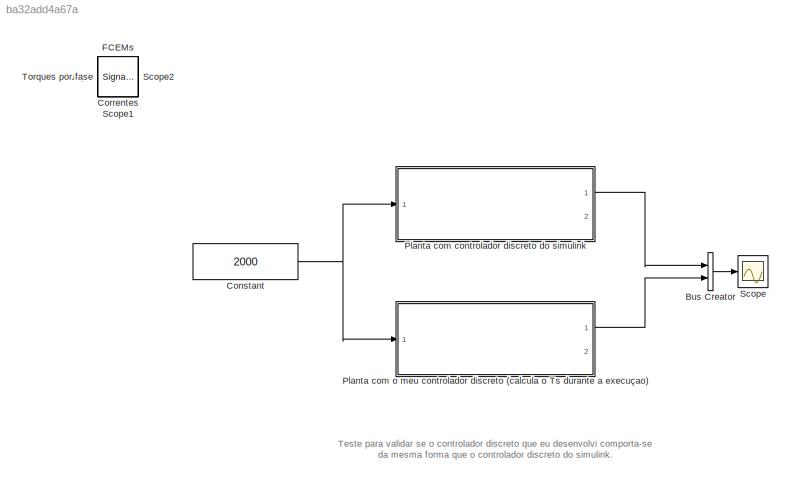
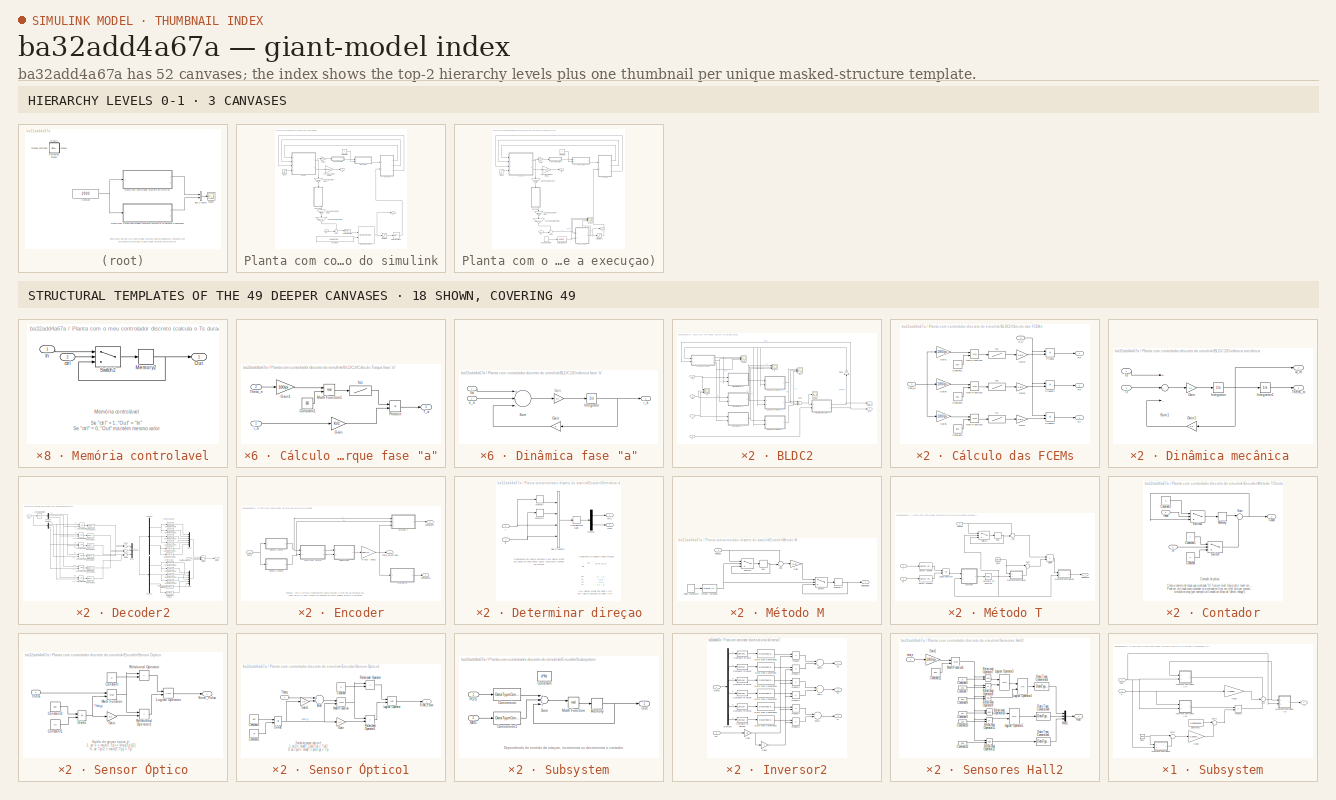
[diagram: thumbnail index - top-2 hierarchy levels (3 canvases) + 18 structural-template representatives of the remaining 49 canvases]
MODEL slx_ba32add4a67a
KIND model
BLOCK [BusCreator] Bus Creator
  DisplayOption = bar
  Inputs = 2
  Ports = [2, 1]
BLOCK [Constant] Constant
  Value = 2000
BLOCK [SignalViewerScope] Correntes
  IOType = viewer
  LimitDataPoints = off
  MaxDataPoints = 7500
  NumInputPorts = 3
  Ports = []
  RefreshTime = 0.035000
  ShowDataMarkers = off
  ShowLegends = off
  YMax = 5~5~5
  YMin = -5~-5~-5
  ZoomMode = yonly
BLOCK [SignalViewerScope] FCEMs
  IOType = viewer
  LimitDataPoints = off
  MaxDataPoints = 7500
  NumInputPorts = 3
  Ports = []
  RefreshTime = 0.035000
  SaveName = ScopeData2
  ShowDataMarkers = off
  ShowLegends = off
  YMax = 5~5~5
  YMin = -5~-5~-5
BLOCK [SubSystem] Planta com controlador discreto do simulink
  FunctionWithSeparateData = off
  MaskHideContents = off
  MinAlgLoopOccurrences = off
  Opaque = off
  Ports = [1, 2]
  PropExecContextOutsideSubsystem = off
  RTWSystemCode = Auto
  RequestExecContextInheritance = off
BLOCK [Sum] Planta com controlador discreto do simulink/Add2
  IconShape = round
  InputSameDT = off
  Inputs = -+|
  OutDataTypeStr = Inherit: Inherit via internal rule
  Ports = [2, 1]
  SaturateOnIntegerOverflow = off
BLOCK [Constant] Planta com controlador discreto do simulink/Anti-horário2
BLOCK [SubSystem] Planta com controlador discreto do simulink/BLDC2
  FunctionWithSeparateData = off
  MaskHideContents = off
  MinAlgLoopOccurrences = off
  Opaque = off
  Ports = [4, 2]
  PropExecContextOutsideSubsystem = off
  RTWSystemCode = Auto
  RequestExecContextInheritance = off
BLOCK [SubSystem] Planta com controlador discreto do simulink/BLDC2/Cálculo Torque fase "a"
  FunctionWithSeparateData = off
  MaskHideContents = off
  MinAlgLoopOccurrences = off
  Opaque = off
  Ports = [2, 1]
  PropExecContextOutsideSubsystem = off
  RTWSystemCode = Auto
  RequestExecContextInheritance = off
BLOCK [Constant] Planta com controlador discreto do simulink/BLDC2/Cálculo Torque fase "a"/Constant1
  Value = 360
BLOCK [Gain] Planta com controlador discreto do simulink/BLDC2/Cálculo Torque fase "a"/Gain
  Gain = Kt/2
  OutDataTypeStr = Inherit: Inherit via internal rule
  ParamDataTypeStr = Inherit: Inherit via internal rule
  SaturateOnIntegerOverflow = off
BLOCK [Gain] Planta com controlador discreto do simulink/BLDC2/Cálculo Torque fase "a"/Gain1
  Gain = 180/pi
  OutDataTypeStr = Inherit: Inherit via internal rule
  ParamDataTypeStr = Inherit: Inherit via internal rule
  SaturateOnIntegerOverflow = off
BLOCK [Math] Planta com controlador discreto do simulink/BLDC2/Cálculo Torque fase "a"/Math Function1
  Operator = mod
  Ports = [2, 1]
BLOCK [Product] Planta com controlador discreto do simulink/BLDC2/Cálculo Torque fase "a"/Product
  InputSameDT = off
  OutDataTypeStr = Inherit: Inherit via internal rule
  Ports = [2, 1]
  SaturateOnIntegerOverflow = off
BLOCK [Outport] Planta com controlador discreto do simulink/BLDC2/Cálculo Torque fase "a"/T_a
  IconDisplay = Port number
BLOCK [Inport] Planta com controlador discreto do simulink/BLDC2/Cálculo Torque fase "a"/Theta_e
  IconDisplay = Port number
  Port = 2
BLOCK [Lookup] Planta com controlador discreto do simulink/BLDC2/Cálculo Torque fase "a"/fa1
  InputValues = [0 30 60 90 120 150 180 210 240 270 300 330 360]
  SaturateOnIntegerOverflow = off
  Table = [ 1 1 1 0 -1 -1 -1 -1 -1 0 1 1 1]
BLOCK [Inport] Planta com controlador discreto do simulink/BLDC2/Cálculo Torque fase "a"/i_a
  IconDisplay = Port number
BLOCK [SubSystem] Planta com controlador discreto do simulink/BLDC2/Cálculo Torque fase "b"
  FunctionWithSeparateData = off
  MaskHideContents = off
  MinAlgLoopOccurrences = off
  Opaque = off
  Ports = [2, 1]
  PropExecContextOutsideSubsystem = off
  RTWSystemCode = Auto
  RequestExecContextInheritance = off
BLOCK [Constant] Planta com controlador discreto do simulink/BLDC2/Cálculo Torque fase "b"/Constant1
  Value = 360
BLOCK [Gain] Planta com controlador discreto do simulink/BLDC2/Cálculo Torque fase "b"/Gain
  Gain = Kt/2
  OutDataTypeStr = Inherit: Inherit via internal rule
  ParamDataTypeStr = Inherit: Inherit via internal rule
  SaturateOnIntegerOverflow = off
BLOCK [Gain] Planta com controlador discreto do simulink/BLDC2/Cálculo Torque fase "b"/Gain1
  Gain = 180/pi
  OutDataTypeStr = Inherit: Inherit via internal rule
  ParamDataTypeStr = Inherit: Inherit via internal rule
  SaturateOnIntegerOverflow = off
BLOCK [Math] Planta com controlador discreto do simulink/BLDC2/Cálculo Torque fase "b"/Math Function1
  Operator = mod
  Ports = [2, 1]
BLOCK [Product] Planta com controlador discreto do simulink/BLDC2/Cálculo Torque fase "b"/Product
  InputSameDT = off
  OutDataTypeStr = Inherit: Inherit via internal rule
  Ports = [2, 1]
  SaturateOnIntegerOverflow = off
BLOCK [Outport] Planta com controlador discreto do simulink/BLDC2/Cálculo Torque fase "b"/T_b
  IconDisplay = Port number
BLOCK [Inport] Planta com controlador discreto do simulink/BLDC2/Cálculo Torque fase "b"/Theta_e
  IconDisplay = Port number
  Port = 2
BLOCK [Lookup] Planta com controlador discreto do simulink/BLDC2/Cálculo Torque fase "b"/fb2
  InputValues = [0 30 60 90 120 150 180 210 240 270 300 330 360]
  SaturateOnIntegerOverflow = off
  Table = [-1 0 1 1 1 1 1 0 -1 -1 -1 -1 -1]
BLOCK [Inport] Planta com controlador discreto do simulink/BLDC2/Cálculo Torque fase "b"/i_b
  IconDisplay = Port number
BLOCK [SubSystem] Planta com controlador discreto do simulink/BLDC2/Cálculo Torque fase "c"
  FunctionWithSeparateData = off
  MaskHideContents = off
  MinAlgLoopOccurrences = off
  Opaque = off
  Ports = [2, 1]
  PropExecContextOutsideSubsystem = off
  RTWSystemCode = Auto
  RequestExecContextInheritance = off
BLOCK [Constant] Planta com controlador discreto do simulink/BLDC2/Cálculo Torque fase "c"/Constant1
  Value = 360
BLOCK [Gain] Planta com controlador discreto do simulink/BLDC2/Cálculo Torque fase "c"/Gain
  Gain = Kt/2
  OutDataTypeStr = Inherit: Inherit via internal rule
  ParamDataTypeStr = Inherit: Inherit via internal rule
  SaturateOnIntegerOverflow = off
BLOCK [Gain] Planta com controlador discreto do simulink/BLDC2/Cálculo Torque fase "c"/Gain1
  Gain = 180/pi
  OutDataTypeStr = Inherit: Inherit via internal rule
  ParamDataTypeStr = Inherit: Inherit via internal rule
  SaturateOnIntegerOverflow = off
BLOCK [Math] Planta com controlador discreto do simulink/BLDC2/Cálculo Torque fase "c"/Math Function1
  Operator = mod
  Ports = [2, 1]
BLOCK [Product] Planta com controlador discreto do simulink/BLDC2/Cálculo Torque fase "c"/Product
  InputSameDT = off
  OutDataTypeStr = Inherit: Inherit via internal rule
  Ports = [2, 1]
  SaturateOnIntegerOverflow = off
BLOCK [Outport] Planta com controlador discreto do simulink/BLDC2/Cálculo Torque fase "c"/T_c
  IconDisplay = Port number
BLOCK [Inport] Planta com controlador discreto do simulink/BLDC2/Cálculo Torque fase "c"/Theta_e
  IconDisplay = Port number
  Port = 2
BLOCK [Lookup] Planta com controlador discreto do simulink/BLDC2/Cálculo Torque fase "c"/fc1
  InputValues = [0 30 60 90 120 150 180 210 240 270 300 330 360]
  SaturateOnIntegerOverflow = off
  Table = [-1 -1 -1 -1 -1 0 1 1 1 1 1 0 -1]
BLOCK [Inport] Planta com controlador discreto do simulink/BLDC2/Cálculo Torque fase "c"/i_c
  IconDisplay = Port number
BLOCK [SubSystem] Planta com controlador discreto do simulink/BLDC2/Cálculo das FCEMs
  FunctionWithSeparateData = off
  MaskHideContents = off
  MinAlgLoopOccurrences = off
  Opaque = off
  Ports = [2, 3]
  PropExecContextOutsideSubsystem = off
  RTWSystemCode = Auto
  RequestExecContextInheritance = off
BLOCK [Constant] Planta com controlador discreto do simulink/BLDC2/Cálculo das FCEMs/Constant1
  Value = 360
BLOCK [Constant] Planta com controlador discreto do simulink/BLDC2/Cálculo das FCEMs/Constant2
  Value = 360
BLOCK [Constant] Planta com controlador discreto do simulink/BLDC2/Cálculo das FCEMs/Constant3
  Value = 360
BLOCK [Gain] Planta com controlador discreto do simulink/BLDC2/Cálculo das FCEMs/Gain1
  Gain = 180/pi
  OutDataTypeStr = Inherit: Inherit via internal rule
  ParamDataTypeStr = Inherit: Inherit via internal rule
  SaturateOnIntegerOverflow = off
BLOCK [Gain] Planta com controlador discreto do simulink/BLDC2/Cálculo das FCEMs/Gain2
  Gain = Ke/2
  OutDataTypeStr = Inherit: Inherit via internal rule
  ParamDataTypeStr = Inherit: Inherit via internal rule
  SaturateOnIntegerOverflow = off
BLOCK [Gain] Planta com controlador discreto do simulink/BLDC2/Cálculo das FCEMs/Gain3
  Gain = Ke/2
  OutDataTypeStr = Inherit: Inherit via internal rule
  ParamDataTypeStr = Inherit: Inherit via internal rule
  SaturateOnIntegerOverflow = off
BLOCK [Gain] Planta com controlador discreto do simulink/BLDC2/Cálculo das FCEMs/Gain4
  Gain = Ke/2
  OutDataTypeStr = Inherit: Inherit via internal rule
  ParamDataTypeStr = Inherit: Inherit via internal rule
  SaturateOnIntegerOverflow = off
BLOCK [Gain] Planta com controlador discreto do simulink/BLDC2/Cálculo das FCEMs/Gain5
  Gain = 180/pi
  OutDataTypeStr = Inherit: Inherit via internal rule
  ParamDataTypeStr = Inherit: Inherit via internal rule
  SaturateOnIntegerOverflow = off
BLOCK [Gain] Planta com controlador discreto do simulink/BLDC2/Cálculo das FCEMs/Gain6
  Gain = 180/pi
  OutDataTypeStr = Inherit: Inherit via internal rule
  ParamDataTypeStr = Inherit: Inherit via internal rule
  SaturateOnIntegerOverflow = off
BLOCK [Math] Planta com controlador discreto do simulink/BLDC2/Cálculo das FCEMs/Math Function1
  Operator = mod
  Ports = [2, 1]
BLOCK [Math] Planta com controlador discreto do simulink/BLDC2/Cálculo das FCEMs/Math Function2
  Operator = mod
  Ports = [2, 1]
BLOCK [Math] Planta com controlador discreto do simulink/BLDC2/Cálculo das FCEMs/Math Function3
  Operator = mod
  Ports = [2, 1]
BLOCK [Product] Planta com controlador discreto do simulink/BLDC2/Cálculo das FCEMs/Product
  InputSameDT = off
  OutDataTypeStr = Inherit: Inherit via internal rule
  Ports = [2, 1]
  SaturateOnIntegerOverflow = off
BLOCK [Product] Planta com controlador discreto do simulink/BLDC2/Cálculo das FCEMs/Product1
  InputSameDT = off
  OutDataTypeStr = Inherit: Inherit via internal rule
  Ports = [2, 1]
  SaturateOnIntegerOverflow = off
BLOCK [Product] Planta com controlador discreto do simulink/BLDC2/Cálculo das FCEMs/Product2
  InputSameDT = off
  OutDataTypeStr = Inherit: Inherit via internal rule
  Ports = [2, 1]
  SaturateOnIntegerOverflow = off
BLOCK [Inport] Planta com controlador discreto do simulink/BLDC2/Cálculo das FCEMs/Theta_e
  IconDisplay = Port number
BLOCK [Outport] Planta com controlador discreto do simulink/BLDC2/Cálculo das FCEMs/e_a
  IconDisplay = Port number
BLOCK [Outport] Planta com controlador discreto do simulink/BLDC2/Cálculo das FCEMs/e_b
  IconDisplay = Port number
  Port = 2
BLOCK [Outport] Planta com controlador discreto do simulink/BLDC2/Cálculo das FCEMs/e_c
  IconDisplay = Port number
  Port = 3
BLOCK [Lookup] Planta com controlador discreto do simulink/BLDC2/Cálculo das FCEMs/fa1
  InputValues = [0 30 60 90 120 150 180 210 240 270 300 330 360]
  SaturateOnIntegerOverflow = off
  Table = [ 1 1 1 0 -1 -1 -1 -1 -1 0 1 1 1]
BLOCK [Lookup] Planta com controlador discreto do simulink/BLDC2/Cálculo das FCEMs/fb2
  InputValues = [0 30 60 90 120 150 180 210 240 270 300 330 360]
  SaturateOnIntegerOverflow = off
  Table = [-1 0 1 1 1 1 1 0 -1 -1 -1 -1 -1]
BLOCK [Lookup] Planta com controlador discreto do simulink/BLDC2/Cálculo das FCEMs/fc1
  InputValues = [0 30 60 90 120 150 180 210 240 270 300 330 360]
  SaturateOnIntegerOverflow = off
  Table = [-1 -1 -1 -1 -1 0 1 1 1 1 1 0 -1]
BLOCK [Inport] Planta com controlador discreto do simulink/BLDC2/Cálculo das FCEMs/w_m
  IconDisplay = Port number
  Port = 2
BLOCK [SubSystem] Planta com controlador discreto do simulink/BLDC2/Dinâmica fase "a"
  FunctionWithSeparateData = off
  MaskHideContents = off
  MinAlgLoopOccurrences = off
  Opaque = off
  Ports = [2, 1]
  PropExecContextOutsideSubsystem = off
  RTWSystemCode = Auto
  RequestExecContextInheritance = off
BLOCK [Gain] Planta com controlador discreto do simulink/BLDC2/Dinâmica fase "a"/ 
  Gain = 1/L
  OutDataTypeStr = Inherit: Inherit via internal rule
  ParamDataTypeStr = Inherit: Inherit via internal rule
  SaturateOnIntegerOverflow = off
BLOCK [Gain] Planta com controlador discreto do simulink/BLDC2/Dinâmica fase "a"/Gain
  Gain = R
  OutDataTypeStr = Inherit: Inherit via internal rule
  ParamDataTypeStr = Inherit: Inherit via internal rule
  SaturateOnIntegerOverflow = off
BLOCK [Integrator] Planta com controlador discreto do simulink/BLDC2/Dinâmica fase "a"/Integrator
  Ports = [1, 1]
BLOCK [Sum] Planta com controlador discreto do simulink/BLDC2/Dinâmica fase "a"/Sum
  InputSameDT = off
  Inputs = +--
  OutDataTypeStr = Inherit: Inherit via internal rule
  Ports = [3, 1]
  SaturateOnIntegerOverflow = off
BLOCK [Inport] Planta com controlador discreto do simulink/BLDC2/Dinâmica fase "a"/Va
  IconDisplay = Port number
BLOCK [Inport] Planta com controlador discreto do simulink/BLDC2/Dinâmica fase "a"/e_a
  IconDisplay = Port number
  Port = 2
BLOCK [Outport] Planta com controlador discreto do simulink/BLDC2/Dinâmica fase "a"/i_a
  IconDisplay = Port number
BLOCK [SubSystem] Planta com controlador discreto do simulink/BLDC2/Dinâmica fase "b"
  FunctionWithSeparateData = off
  MaskHideContents = off
  MinAlgLoopOccurrences = off
  Opaque = off
  Ports = [2, 1]
  PropExecContextOutsideSubsystem = off
  RTWSystemCode = Auto
  RequestExecContextInheritance = off
BLOCK [Gain] Planta com controlador discreto do simulink/BLDC2/Dinâmica fase "b"/ 
  Gain = 1/L
  OutDataTypeStr = Inherit: Inherit via internal rule
  ParamDataTypeStr = Inherit: Inherit via internal rule
  SaturateOnIntegerOverflow = off
BLOCK [Gain] Planta com controlador discreto do simulink/BLDC2/Dinâmica fase "b"/Gain
  Gain = R
  OutDataTypeStr = Inherit: Inherit via internal rule
  ParamDataTypeStr = Inherit: Inherit via internal rule
  SaturateOnIntegerOverflow = off
BLOCK [Integrator] Planta com controlador discreto do simulink/BLDC2/Dinâmica fase "b"/Integrator
  Ports = [1, 1]
BLOCK [Sum] Planta com controlador discreto do simulink/BLDC2/Dinâmica fase "b"/Sum
  InputSameDT = off
  Inputs = +--
  OutDataTypeStr = Inherit: Inherit via internal rule
  Ports = [3, 1]
  SaturateOnIntegerOverflow = off
BLOCK [Inport] Planta com controlador discreto do simulink/BLDC2/Dinâmica fase "b"/Vb
  IconDisplay = Port number
BLOCK [Inport] Planta com controlador discreto do simulink/BLDC2/Dinâmica fase "b"/e_b
  IconDisplay = Port number
  Port = 2
BLOCK [Outport] Planta com controlador discreto do simulink/BLDC2/Dinâmica fase "b"/i_b
  IconDisplay = Port number
BLOCK [SubSystem] Planta com controlador discreto do simulink/BLDC2/Dinâmica fase "c"
  FunctionWithSeparateData = off
  MaskHideContents = off
  MinAlgLoopOccurrences = off
  Opaque = off
  Ports = [2, 1]
  PropExecContextOutsideSubsystem = off
  RTWSystemCode = Auto
  RequestExecContextInheritance = off
BLOCK [Gain] Planta com controlador discreto do simulink/BLDC2/Dinâmica fase "c"/ 
  Gain = 1/L
  OutDataTypeStr = Inherit: Inherit via internal rule
  ParamDataTypeStr = Inherit: Inherit via internal rule
  SaturateOnIntegerOverflow = off
BLOCK [Gain] Planta com controlador discreto do simulink/BLDC2/Dinâmica fase "c"/Gain
  Gain = R
  OutDataTypeStr = Inherit: Inherit via internal rule
  ParamDataTypeStr = Inherit: Inherit via internal rule
  SaturateOnIntegerOverflow = off
BLOCK [Integrator] Planta com controlador discreto do simulink/BLDC2/Dinâmica fase "c"/Integrator
  Ports = [1, 1]
BLOCK [Sum] Planta com controlador discreto do simulink/BLDC2/Dinâmica fase "c"/Sum
  InputSameDT = off
  Inputs = +--
  OutDataTypeStr = Inherit: Inherit via internal rule
  Ports = [3, 1]
  SaturateOnIntegerOverflow = off
BLOCK [Inport] Planta com controlador discreto do simulink/BLDC2/Dinâmica fase "c"/Vc
  IconDisplay = Port number
BLOCK [Inport] Planta com controlador discreto do simulink/BLDC2/Dinâmica fase "c"/e_c
  IconDisplay = Port number
  Port = 2
BLOCK [Outport] Planta com controlador discreto do simulink/BLDC2/Dinâmica fase "c"/i_c
  IconDisplay = Port number
BLOCK [SubSystem] Planta com controlador discreto do simulink/BLDC2/Dinâmica mecânica 
  FunctionWithSeparateData = off
  MaskHideContents = off
  MinAlgLoopOccurrences = off
  Opaque = off
  Ports = [2, 2]
  PropExecContextOutsideSubsystem = off
  RTWSystemCode = Auto
  RequestExecContextInheritance = off
BLOCK [Gain] Planta com controlador discreto do simulink/BLDC2/Dinâmica mecânica /Gain
  Gain = 1/J
  OutDataTypeStr = Inherit: Inherit via internal rule
  ParamDataTypeStr = Inherit: Inherit via internal rule
  SaturateOnIntegerOverflow = off
BLOCK [Gain] Planta com controlador discreto do simulink/BLDC2/Dinâmica mecânica /Gain1
  Gain = Kd
  OutDataTypeStr = Inherit: Inherit via internal rule
  ParamDataTypeStr = Inherit: Inherit via internal rule
  SaturateOnIntegerOverflow = off
BLOCK [Integrator] Planta com controlador discreto do simulink/BLDC2/Dinâmica mecânica /Integrator
  Ports = [1, 1]
BLOCK [Integrator] Planta com controlador discreto do simulink/BLDC2/Dinâmica mecânica /Integrator1
  Ports = [1, 1]
BLOCK [Sum] Planta com controlador discreto do simulink/BLDC2/Dinâmica mecânica /Sum1
  InputSameDT = off
  Inputs = +--
  OutDataTypeStr = Inherit: Inherit via internal rule
  Ports = [3, 1]
  SaturateOnIntegerOverflow = off
BLOCK [Inport] Planta com controlador discreto do simulink/BLDC2/Dinâmica mecânica /Te
  IconDisplay = Port number
BLOCK [Outport] Planta com controlador discreto do simulink/BLDC2/Dinâmica mecânica /Theta_m
  IconDisplay = Port number
BLOCK [Inport] Planta com controlador discreto do simulink/BLDC2/Dinâmica mecânica /Tl
  IconDisplay = Port number
  Port = 2
BLOCK [Outport] Planta com controlador discreto do simulink/BLDC2/Dinâmica mecânica /w_m
  IconDisplay = Port number
  Port = 2
BLOCK [Scope] Planta com controlador discreto do simulink/BLDC2/FCEMs
  DataFormat = StructureWithTime
  Floating = off
  LimitDataPoints = off
  NumInputPorts = 3
  Ports = [3]
  SampleTime = 0
  SaveName = ScopeData5
  ShowLegends = off
  TimeRange = 1
  YMax = 510~5~5
  YMin = 420~-5~-5
  ZoomMode = yonly
BLOCK [Gain] Planta com controlador discreto do simulink/BLDC2/Gain2
  Gain = P/2
  OutDataTypeStr = Inherit: Inherit via internal rule
  ParamDataTypeStr = Inherit: Inherit via internal rule
  SaturateOnIntegerOverflow = off
BLOCK [Scope] Planta com controlador discreto do simulink/BLDC2/Scope
  DataFormat = StructureWithTime
  Floating = off
  LimitDataPoints = off
  NumInputPorts = 1
  Ports = [1]
  SampleTime = 0
  SaveName = ScopeData4
  ShowLegends = off
  TimeRange = 1
  YMax = 510
  YMin = 420
BLOCK [Sum] Planta com controlador discreto do simulink/BLDC2/Sum
  InputSameDT = off
  Inputs = +++
  OutDataTypeStr = Inherit: Inherit via internal rule
  Ports = [3, 1]
  SaturateOnIntegerOverflow = off
BLOCK [Outport] Planta com controlador discreto do simulink/BLDC2/Theta_m
  IconDisplay = Port number
BLOCK [Inport] Planta com controlador discreto do simulink/BLDC2/Tl
  IconDisplay = Port number
  Port = 4
BLOCK [Inport] Planta com controlador discreto do simulink/BLDC2/Va
  IconDisplay = Port number
BLOCK [Inport] Planta com controlador discreto do simulink/BLDC2/Vb
  IconDisplay = Port number
  Port = 2
BLOCK [Inport] Planta com controlador discreto do simulink/BLDC2/Vc
  IconDisplay = Port number
  Port = 3
BLOCK [Scope] Planta com controlador discreto do simulink/BLDC2/Vs
  DataFormat = StructureWithTime
  Floating = off
  LimitDataPoints = off
  NumInputPorts = 3
  Ports = [3]
  SampleTime = 0
  SaveName = ScopeData2
  ShowLegends = off
  TimeRange = 1
  YMax = 510~5~5
  YMin = 420~-5~-5
  ZoomMode = xonly
BLOCK [Scope] Planta com controlador discreto do simulink/BLDC2/is
  DataFormat = StructureWithTime
  Floating = off
  LimitDataPoints = off
  NumInputPorts = 3
  Ports = [3]
  SampleTime = 0
  SaveName = ScopeData3
  ShowLegends = off
  TimeRange = 1
  YMax = 510~5~5
  YMin = 420~-5~-5
  ZoomMode = xonly
BLOCK [Scope] Planta com controlador discreto do simulink/BLDC2/is1
  DataFormat = StructureWithTime
  Floating = off
  LimitDataPoints = off
  NumInputPorts = 3
  Ports = [3]
  SampleTime = 0
  SaveName = ScopeData6
  ShowLegends = off
  TimeRange = 1
  YMax = 510~5~5
  YMin = 420~-5~-5
  ZoomMode = xonly
BLOCK [Outport] Planta com controlador discreto do simulink/BLDC2/w_m
  IconDisplay = Port number
  Port = 2
BLOCK [Constant] Planta com controlador discreto do simulink/Constant1
  Value = [-0.000518155 0.000518155-0.0431726*Ts]
BLOCK [Gain] Planta com controlador discreto do simulink/Conversao deg//s -> rad//s1
  Gain = pi/180
  OutDataTypeStr = Inherit: Inherit via internal rule
  ParamDataTypeStr = Inherit: Inherit via internal rule
  SaturateOnIntegerOverflow = off
BLOCK [Gain] Planta com controlador discreto do simulink/Conversao rad-> deg1
  Gain = 180/pi
  OutDataTypeStr = Inherit: Inherit via internal rule
  ParamDataTypeStr = Inherit: Inherit via internal rule
  SaturateOnIntegerOverflow = off
BLOCK [Gain] Planta com controlador discreto do simulink/Conversao rad//s -> RPM2
  Gain = 60/(2*pi)
  OutDataTypeStr = Inherit: Inherit via internal rule
  ParamDataTypeStr = Inherit: Inherit via internal rule
  SaturateOnIntegerOverflow = off
BLOCK [Gain] Planta com controlador discreto do simulink/Conversao rad//s -> rpm1
  Gain = 60/(2*pi)
  OutDataTypeStr = Inherit: Inherit via internal rule
  ParamDataTypeStr = Inherit: Inherit via internal rule
  SaturateOnIntegerOverflow = off
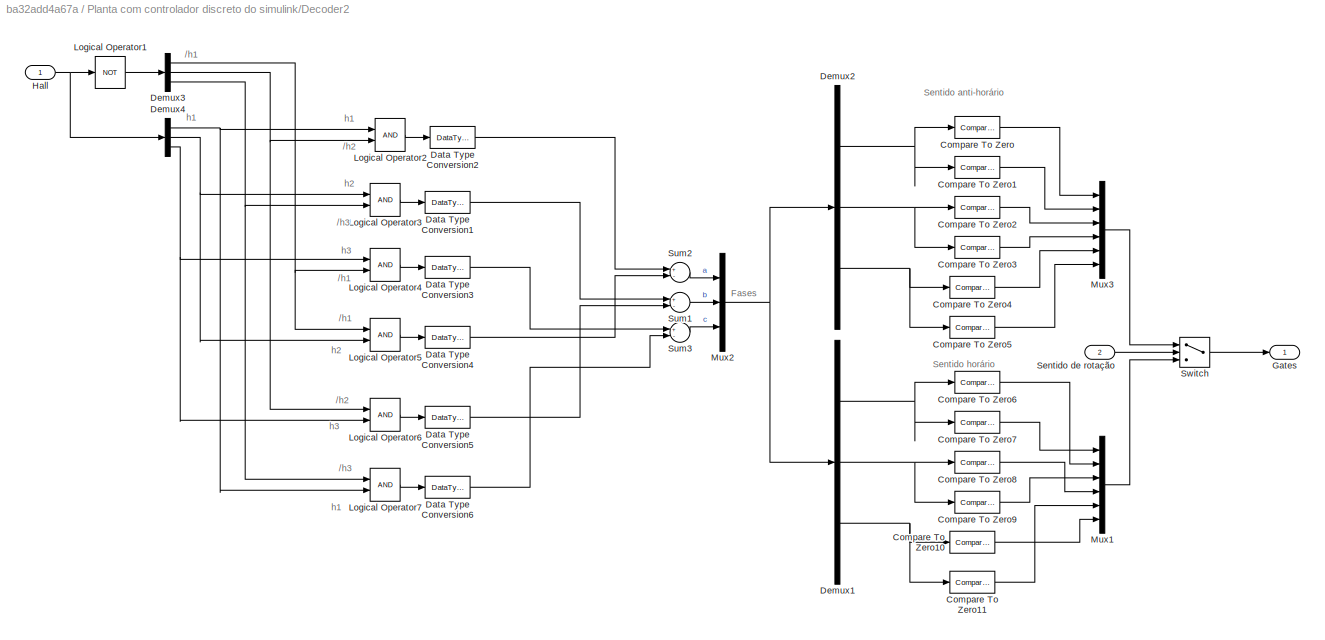
BLOCK [SubSystem] Planta com controlador discreto do simulink/Decoder2
  FunctionWithSeparateData = off
  MaskHideContents = off
  MinAlgLoopOccurrences = off
  Opaque = off
  Ports = [2, 1]
  PropExecContextOutsideSubsystem = off
  RTWSystemCode = Auto
  RequestExecContextInheritance = off
BLOCK [Reference] Planta com controlador discreto do simulink/Decoder2/Compare To Zero  REF=simulink/Logic and Bit
Operations/Compare
To Zero
  OutDataTypeStr = boolean
  Ports = [1, 1]
  SourceBlock = simulink/Logic and Bit\nOperations/Compare\nTo Zero
  SourceType = Compare To Zero
  ZeroCross = off
  relop = >
BLOCK [Reference] Planta com controlador discreto do simulink/Decoder2/Compare To Zero1  REF=simulink/Logic and Bit
Operations/Compare
To Zero
  OutDataTypeStr = boolean
  Ports = [1, 1]
  SourceBlock = simulink/Logic and Bit\nOperations/Compare\nTo Zero
  SourceType = Compare To Zero
  ZeroCross = off
  relop = <
BLOCK [Reference] Planta com controlador discreto do simulink/Decoder2/Compare To Zero10  REF=simulink/Logic and Bit
Operations/Compare
To Zero
  OutDataTypeStr = boolean
  Ports = [1, 1]
  SourceBlock = simulink/Logic and Bit\nOperations/Compare\nTo Zero
  SourceType = Compare To Zero
  ZeroCross = off
  relop = >
BLOCK [Reference] Planta com controlador discreto do simulink/Decoder2/Compare To Zero11  REF=simulink/Logic and Bit
Operations/Compare
To Zero
  OutDataTypeStr = boolean
  Ports = [1, 1]
  SourceBlock = simulink/Logic and Bit\nOperations/Compare\nTo Zero
  SourceType = Compare To Zero
  ZeroCross = off
  relop = <
BLOCK [Reference] Planta com controlador discreto do simulink/Decoder2/Compare To Zero2  REF=simulink/Logic and Bit
Operations/Compare
To Zero
  OutDataTypeStr = boolean
  Ports = [1, 1]
  SourceBlock = simulink/Logic and Bit\nOperations/Compare\nTo Zero
  SourceType = Compare To Zero
  ZeroCross = off
  relop = >
BLOCK [Reference] Planta com controlador discreto do simulink/Decoder2/Compare To Zero3  REF=simulink/Logic and Bit
Operations/Compare
To Zero
  OutDataTypeStr = boolean
  Ports = [1, 1]
  SourceBlock = simulink/Logic and Bit\nOperations/Compare\nTo Zero
  SourceType = Compare To Zero
  ZeroCross = off
  relop = <
BLOCK [Reference] Planta com controlador discreto do simulink/Decoder2/Compare To Zero4  REF=simulink/Logic and Bit
Operations/Compare
To Zero
  OutDataTypeStr = boolean
  Ports = [1, 1]
  SourceBlock = simulink/Logic and Bit\nOperations/Compare\nTo Zero
  SourceType = Compare To Zero
  ZeroCross = off
  relop = >
BLOCK [Reference] Planta com controlador discreto do simulink/Decoder2/Compare To Zero5  REF=simulink/Logic and Bit
Operations/Compare
To Zero
  OutDataTypeStr = boolean
  Ports = [1, 1]
  SourceBlock = simulink/Logic and Bit\nOperations/Compare\nTo Zero
  SourceType = Compare To Zero
  ZeroCross = off
  relop = <
BLOCK [Reference] Planta com controlador discreto do simulink/Decoder2/Compare To Zero6  REF=simulink/Logic and Bit
Operations/Compare
To Zero
  OutDataTypeStr = boolean
  Ports = [1, 1]
  SourceBlock = simulink/Logic and Bit\nOperations/Compare\nTo Zero
  SourceType = Compare To Zero
  ZeroCross = off
  relop = >
BLOCK [Reference] Planta com controlador discreto do simulink/Decoder2/Compare To Zero7  REF=simulink/Logic and Bit
Operations/Compare
To Zero
  OutDataTypeStr = boolean
  Ports = [1, 1]
  SourceBlock = simulink/Logic and Bit\nOperations/Compare\nTo Zero
  SourceType = Compare To Zero
  ZeroCross = off
  relop = <
BLOCK [Reference] Planta com controlador discreto do simulink/Decoder2/Compare To Zero8  REF=simulink/Logic and Bit
Operations/Compare
To Zero
  OutDataTypeStr = boolean
  Ports = [1, 1]
  SourceBlock = simulink/Logic and Bit\nOperations/Compare\nTo Zero
  SourceType = Compare To Zero
  ZeroCross = off
  relop = >
BLOCK [Reference] Planta com controlador discreto do simulink/Decoder2/Compare To Zero9  REF=simulink/Logic and Bit
Operations/Compare
To Zero
  OutDataTypeStr = boolean
  Ports = [1, 1]
  SourceBlock = simulink/Logic and Bit\nOperations/Compare\nTo Zero
  SourceType = Compare To Zero
  ZeroCross = off
  relop = <
BLOCK [DataTypeConversion] Planta com controlador discreto do simulink/Decoder2/Data Type Conversion1
  RndMeth = Floor
  SaturateOnIntegerOverflow = off
BLOCK [DataTypeConversion] Planta com controlador discreto do simulink/Decoder2/Data Type Conversion2
  RndMeth = Floor
  SaturateOnIntegerOverflow = off
BLOCK [DataTypeConversion] Planta com controlador discreto do simulink/Decoder2/Data Type Conversion3
  RndMeth = Floor
  SaturateOnIntegerOverflow = off
BLOCK [DataTypeConversion] Planta com controlador discreto do simulink/Decoder2/Data Type Conversion4
  RndMeth = Floor
  SaturateOnIntegerOverflow = off
BLOCK [DataTypeConversion] Planta com controlador discreto do simulink/Decoder2/Data Type Conversion5
  RndMeth = Floor
  SaturateOnIntegerOverflow = off
BLOCK [DataTypeConversion] Planta com controlador discreto do simulink/Decoder2/Data Type Conversion6
  RndMeth = Floor
  SaturateOnIntegerOverflow = off
BLOCK [Demux] Planta com controlador discreto do simulink/Decoder2/Demux1
  DisplayOption = bar
  Outputs = 3
  Ports = [1, 3]
BLOCK [Demux] Planta com controlador discreto do simulink/Decoder2/Demux2
  DisplayOption = bar
  Outputs = 3
  Ports = [1, 3]
BLOCK [Demux] Planta com controlador discreto do simulink/Decoder2/Demux3
  DisplayOption = bar
  Outputs = 3
  Ports = [1, 3]
BLOCK [Demux] Planta com controlador discreto do simulink/Decoder2/Demux4
  DisplayOption = bar
  Outputs = 3
  Ports = [1, 3]
BLOCK [Outport] Planta com controlador discreto do simulink/Decoder2/Gates
  IconDisplay = Port number
BLOCK [Inport] Planta com controlador discreto do simulink/Decoder2/Hall 
  IconDisplay = Port number
BLOCK [Logic] Planta com controlador discreto do simulink/Decoder2/Logical Operator1
  AllPortsSameDT = off
  Operator = NOT
  OutDataTypeStr = boolean
  Ports = [1, 1]
BLOCK [Logic] Planta com controlador discreto do simulink/Decoder2/Logical Operator2
  AllPortsSameDT = off
  OutDataTypeStr = boolean
  Ports = [2, 1]
BLOCK [Logic] Planta com controlador discreto do simulink/Decoder2/Logical Operator3
  AllPortsSameDT = off
  OutDataTypeStr = boolean
  Ports = [2, 1]
BLOCK [Logic] Planta com controlador discreto do simulink/Decoder2/Logical Operator4
  AllPortsSameDT = off
  OutDataTypeStr = boolean
  Ports = [2, 1]
BLOCK [Logic] Planta com controlador discreto do simulink/Decoder2/Logical Operator5
  AllPortsSameDT = off
  OutDataTypeStr = boolean
  Ports = [2, 1]
BLOCK [Logic] Planta com controlador discreto do simulink/Decoder2/Logical Operator6
  AllPortsSameDT = off
  OutDataTypeStr = boolean
  Ports = [2, 1]
BLOCK [Logic] Planta com controlador discreto do simulink/Decoder2/Logical Operator7
  AllPortsSameDT = off
  OutDataTypeStr = boolean
  Ports = [2, 1]
BLOCK [Mux] Planta com controlador discreto do simulink/Decoder2/Mux1
  DisplayOption = bar
  Inputs = 6
  Ports = [6, 1]
BLOCK [Mux] Planta com controlador discreto do simulink/Decoder2/Mux2
  DisplayOption = bar
  Inputs = 3
  Ports = [3, 1]
BLOCK [Mux] Planta com controlador discreto do simulink/Decoder2/Mux3
  DisplayOption = bar
  Inputs = 6
  Ports = [6, 1]
BLOCK [Inport] Planta com controlador discreto do simulink/Decoder2/Sentido de rotação
  IconDisplay = Port number
  Port = 2
BLOCK [Sum] Planta com controlador discreto do simulink/Decoder2/Sum1
  InputSameDT = off
  Inputs = +-
  OutDataTypeStr = double
  Ports = [2, 1]
  SaturateOnIntegerOverflow = off
BLOCK [Sum] Planta com controlador discreto do simulink/Decoder2/Sum2
  InputSameDT = off
  Inputs = +-
  OutDataTypeStr = double
  Ports = [2, 1]
  SaturateOnIntegerOverflow = off
BLOCK [Sum] Planta com controlador discreto do simulink/Decoder2/Sum3
  InputSameDT = off
  Inputs = +-
  OutDataTypeStr = double
  Ports = [2, 1]
  SaturateOnIntegerOverflow = off
BLOCK [Switch] Planta com controlador discreto do simulink/Decoder2/Switch
  Criteria = u2 > Threshold
  InputSameDT = off
  SaturateOnIntegerOverflow = off
BLOCK [DiscreteTransferFcn] Planta com controlador discreto do simulink/Discrete Transfer Fcn
  Denominator = [-1 1]
  InputPortMap = u0,p1
  Numerator = [-0.000518155 0.0000864288]
  NumeratorSource = Input port
  Ports = [2, 1]
  SampleTime = Ts
BLOCK [SubSystem] Planta com controlador discreto do simulink/Encoder
  FunctionWithSeparateData = off
  MaskHideContents = off
  MinAlgLoopOccurrences = off
  Opaque = off
  Ports = [1, 3]
  PropExecContextOutsideSubsystem = off
  RTWSystemCode = Auto
  RequestExecContextInheritance = off
BLOCK [SubSystem] Planta com controlador discreto do simulink/Encoder/Determinar direçao
  FunctionWithSeparateData = off
  MaskHideContents = off
  MinAlgLoopOccurrences = off
  Opaque = off
  Ports = [2, 2]
  PropExecContextOutsideSubsystem = off
  RTWSystemCode = Auto
  RequestExecContextInheritance = off
BLOCK [Inport] Planta com controlador discreto do simulink/Encoder/Determinar direçao/A
  IconDisplay = Port number
BLOCK [Inport] Planta com controlador discreto do simulink/Encoder/Determinar direçao/B
  IconDisplay = Port number
  Port = 2
BLOCK [BusCreator] Planta com controlador discreto do simulink/Encoder/Determinar direçao/Bus Creator1
  DisplayOption = bar
  Ports = [4, 1]
BLOCK [CombinatorialLogic] Planta com controlador discreto do simulink/Encoder/Determinar direçao/Combinatorial  Logic
  TruthTable = [ 0 0 ; 0 1 ; 1 0 ; 0 0 ; 1 0 ; 0 0 ; 0 0 ; 0 1 ; 0 1 ; 0 0 ; 0 0 ; 1 0 ; 0 0 ; 1 0 ; 0 1 ; 0 0]
BLOCK [Demux] Planta com controlador discreto do simulink/Encoder/Determinar direçao/Demux
  DisplayOption = bar
  Outputs = 2
  Ports = [1, 2]
BLOCK [Memory] Planta com controlador discreto do simulink/Encoder/Determinar direçao/Memory
BLOCK [Memory] Planta com controlador discreto do simulink/Encoder/Determinar direçao/Memory1
BLOCK [Outport] Planta com controlador discreto do simulink/Encoder/Determinar direçao/NEG
  IconDisplay = Port number
  Port = 2
BLOCK [Outport] Planta com controlador discreto do simulink/Encoder/Determinar direçao/POS
  IconDisplay = Port number
BLOCK [Gain] Planta com controlador discreto do simulink/Encoder/Graus // pulso1
  Gain = 360/(4*Nr)
  OutDataTypeStr = double
  ParamDataTypeStr = Inherit: Inherit via internal rule
  SaturateOnIntegerOverflow = off
BLOCK [SubSystem] Planta com controlador discreto do simulink/Encoder/Método M
  FunctionWithSeparateData = off
  MaskHideContents = off
  MinAlgLoopOccurrences = off
  Opaque = off
  Ports = [1, 1]
  PropExecContextOutsideSubsystem = off
  RTWSystemCode = Auto
  RequestExecContextInheritance = off
BLOCK [Sum] Planta com controlador discreto do simulink/Encoder/Método M/Add
  IconShape = round
  InputSameDT = off
  Inputs = +-|
  OutDataTypeStr = Inherit: Inherit via internal rule
  Ports = [2, 1]
  SaturateOnIntegerOverflow = off
BLOCK [Reference] Planta com controlador discreto do simulink/Encoder/Método M/Detect Increase  REF=simulink/Logic and Bit
Operations/Detect
Increase
  InputProcessing = Inherited
  OutDataTypeStr = boolean
  Ports = [1, 1]
  SourceBlock = simulink/Logic and Bit\nOperations/Detect\nIncrease
  SourceType = Detect Increase
  vinit = 0.0
BLOCK [Gain] Planta com controlador discreto do simulink/Encoder/Método M/Gain
  Gain = 1/Ts
  OutDataTypeStr = Inherit: Inherit via internal rule
  ParamDataTypeStr = Inherit: Inherit via internal rule
  SaturateOnIntegerOverflow = off
BLOCK [Memory] Planta com controlador discreto do simulink/Encoder/Método M/Memory1
BLOCK [Inport] Planta com controlador discreto do simulink/Encoder/Método M/Posição
  IconDisplay = Port number
BLOCK [DiscretePulseGenerator] Planta com controlador discreto do simulink/Encoder/Método M/Pulse Generator
  Period = Ts
  Ports = [0, 1]
  PulseType = Time based
  PulseWidth = 50
BLOCK [Switch] Planta com controlador discreto do simulink/Encoder/Método M/Switch
  InputSameDT = off
  SaturateOnIntegerOverflow = off
BLOCK [Switch] Planta com controlador discreto do simulink/Encoder/Método M/Switch1
  InputSameDT = off
  SaturateOnIntegerOverflow = off
BLOCK [Outport] Planta com controlador discreto do simulink/Encoder/Método M/Velocidade
  IconDisplay = Port number
BLOCK [Memory] Planta com controlador discreto do simulink/Encoder/Método M/pos'
BLOCK [SubSystem] Planta com controlador discreto do simulink/Encoder/Método T
  FunctionWithSeparateData = off
  MaskHideContents = off
  MinAlgLoopOccurrences = off
  Opaque = off
  Ports = [3, 1]
  PropExecContextOutsideSubsystem = off
  RTWSystemCode = Auto
  RequestExecContextInheritance = off
BLOCK [Inport] Planta com controlador discreto do simulink/Encoder/Método T/A
  IconDisplay = Port number
BLOCK [Sum] Planta com controlador discreto do simulink/Encoder/Método T/Add
  IconShape = round
  InputSameDT = off
  Inputs = +-|
  OutDataTypeStr = Inherit: Inherit via internal rule
  Ports = [2, 1]
  SaturateOnIntegerOverflow = off
BLOCK [Inport] Planta com controlador discreto do simulink/Encoder/Método T/B
  IconDisplay = Port number
  Port = 2
BLOCK [Clock] Planta com controlador discreto do simulink/Encoder/Método T/Clock
BLOCK [Reference] Planta com controlador discreto do simulink/Encoder/Método T/Compare To Constant  REF=simulink/Logic and Bit
Operations/Compare
To Constant
  OutDataTypeStr = boolean
  Ports = [1, 1]
  SourceBlock = simulink/Logic and Bit\nOperations/Compare\nTo Constant
  SourceType = Compare To Constant
  ZeroCross = on
  const = m
  relop = ==
BLOCK [SubSystem] Planta com controlador discreto do simulink/Encoder/Método T/Contador
  FunctionWithSeparateData = off
  MaskHideContents = off
  MinAlgLoopOccurrences = off
  Opaque = off
  Ports = [2, 1]
  PropExecContextOutsideSubsystem = off
  RTWSystemCode = Auto
  RequestExecContextInheritance = off
BLOCK [Constant] Planta com controlador discreto do simulink/Encoder/Método T/Contador/Constant
  Value = 0
BLOCK [Constant] Planta com controlador discreto do simulink/Encoder/Método T/Contador/Constant1
BLOCK [Constant] Planta com controlador discreto do simulink/Encoder/Método T/Contador/Constant2
  Value = 0
BLOCK [Outport] Planta com controlador discreto do simulink/Encoder/Método T/Contador/Count
  IconDisplay = Port number
BLOCK [Inport] Planta com controlador discreto do simulink/Encoder/Método T/Contador/In
  IconDisplay = Port number
BLOCK [Memory] Planta com controlador discreto do simulink/Encoder/Método T/Contador/Memory
BLOCK [Sum] Planta com controlador discreto do simulink/Encoder/Método T/Contador/Sum
  IconShape = round
  InputSameDT = off
  Inputs = |++
  OutDataTypeStr = Inherit: Inherit via internal rule
  Ports = [2, 1]
  SaturateOnIntegerOverflow = off
BLOCK [Switch] Planta com controlador discreto do simulink/Encoder/Método T/Contador/Switch
  InputSameDT = off
  SaturateOnIntegerOverflow = off
BLOCK [Switch] Planta com controlador discreto do simulink/Encoder/Método T/Contador/Switch1
  InputSameDT = off
  SaturateOnIntegerOverflow = off
BLOCK [Inport] Planta com controlador discreto do simulink/Encoder/Método T/Contador/reset
  IconDisplay = Port number
  Port = 2
BLOCK [Reference] Planta com controlador discreto do simulink/Encoder/Método T/Detect Change  REF=simulink/Logic and Bit
Operations/Detect
Change
  InputProcessing = Inherited
  OutDataTypeStr = boolean
  Ports = [1, 1]
  SourceBlock = simulink/Logic and Bit\nOperations/Detect\nChange
  SourceType = Detect Change
  vinit = 0
BLOCK [Reference] Planta com controlador discreto do simulink/Encoder/Método T/Detect Change1  REF=simulink/Logic and Bit
Operations/Detect
Change
  InputProcessing = Inherited
  OutDataTypeStr = boolean
  Ports = [1, 1]
  SourceBlock = simulink/Logic and Bit\nOperations/Detect\nChange
  SourceType = Detect Change
  vinit = 0
BLOCK [Product] Planta com controlador discreto do simulink/Encoder/Método T/Divide
  InputSameDT = off
  Inputs = */
  OutDataTypeStr = Inherit: Inherit via internal rule
  Ports = [2, 1]
  RndMeth = Floor
  SaturateOnIntegerOverflow = off
BLOCK [Logic] Planta com controlador discreto do simulink/Encoder/Método T/Logical Operator
  AllPortsSameDT = off
  Operator = OR
  OutDataTypeStr = boolean
  Ports = [2, 1]
BLOCK [SubSystem] Planta com controlador discreto do simulink/Encoder/Método T/Memória controlavel
  FunctionWithSeparateData = off
  MaskHideContents = off
  MinAlgLoopOccurrences = off
  Opaque = off
  Ports = [2, 1]
  PropExecContextOutsideSubsystem = off
  RTWSystemCode = Auto
  RequestExecContextInheritance = off
BLOCK [Inport] Planta com controlador discreto do simulink/Encoder/Método T/Memória controlavel/In
  IconDisplay = Port number
BLOCK [Memory] Planta com controlador discreto do simulink/Encoder/Método T/Memória controlavel/Memory2
BLOCK [Outport] Planta com controlador discreto do simulink/Encoder/Método T/Memória controlavel/Out
  IconDisplay = Port number
BLOCK [Switch] Planta com controlador discreto do simulink/Encoder/Método T/Memória controlavel/Switch2
  InputSameDT = off
  SaturateOnIntegerOverflow = off
BLOCK [Inport] Planta com controlador discreto do simulink/Encoder/Método T/Memória controlavel/ctrl
  IconDisplay = Port number
  Port = 2
BLOCK [SubSystem] Planta com controlador discreto do simulink/Encoder/Método T/Memória controlavel1
  FunctionWithSeparateData = off
  MaskHideContents = off
  MinAlgLoopOccurrences = off
  Opaque = off
  Ports = [2, 1]
  PropExecContextOutsideSubsystem = off
  RTWSystemCode = Auto
  RequestExecContextInheritance = off
BLOCK [Inport] Planta com controlador discreto do simulink/Encoder/Método T/Memória controlavel1/In
  IconDisplay = Port number
BLOCK [Memory] Planta com controlador discreto do simulink/Encoder/Método T/Memória controlavel1/Memory2
BLOCK [Outport] Planta com controlador discreto do simulink/Encoder/Método T/Memória controlavel1/Out
  IconDisplay = Port number
BLOCK [Switch] Planta com controlador discreto do simulink/Encoder/Método T/Memória controlavel1/Switch2
  InputSameDT = off
  SaturateOnIntegerOverflow = off
BLOCK [Inport] Planta com controlador discreto do simulink/Encoder/Método T/Memória controlavel1/ctrl
  IconDisplay = Port number
  Port = 2
BLOCK [Inport] Planta com controlador discreto do simulink/Encoder/Método T/Posição
  IconDisplay = Port number
  Port = 3
BLOCK [Sum] Planta com controlador discreto do simulink/Encoder/Método T/Sum
  IconShape = round
  InputSameDT = off
  Inputs = |+-
  OutDataTypeStr = Inherit: Inherit via internal rule
  Ports = [2, 1]
  SaturateOnIntegerOverflow = off
BLOCK [Switch] Planta com controlador discreto do simulink/Encoder/Método T/Switch1
  InputSameDT = off
  SaturateOnIntegerOverflow = off
BLOCK [Outport] Planta com controlador discreto do simulink/Encoder/Método T/Velocidade
  IconDisplay = Port number
BLOCK [Memory] Planta com controlador discreto do simulink/Encoder/Método T/pos'
BLOCK [SubSystem] Planta com controlador discreto do simulink/Encoder/Sensor Óptico
  FunctionWithSeparateData = off
  MaskHideContents = off
  MinAlgLoopOccurrences = off
  Opaque = off
  Ports = [1, 1]
  PropExecContextOutsideSubsystem = off
  RTWSystemCode = Auto
  RequestExecContextInheritance = off
BLOCK [Constant] Planta com controlador discreto do simulink/Encoder/Sensor Óptico/Constant
  Value = 0
BLOCK [Constant] Planta com controlador discreto do simulink/Encoder/Sensor Óptico/Constant1
  Value = Nr
BLOCK [Constant] Planta com controlador discreto do simulink/Encoder/Sensor Óptico/Constant2
  Value = 360
BLOCK [Product] Planta com controlador discreto do simulink/Encoder/Sensor Óptico/Divide
  InputSameDT = off
  Inputs = */
  OutDataTypeStr = Inherit: Inherit via internal rule
  Ports = [2, 1]
  RndMeth = Floor
  SaturateOnIntegerOverflow = off
BLOCK [Gain] Planta com controlador discreto do simulink/Encoder/Sensor Óptico/Gain
  Gain = 1/2
  OutDataTypeStr = Inherit: Inherit via internal rule
  ParamDataTypeStr = Inherit: Inherit via internal rule
  SaturateOnIntegerOverflow = off
BLOCK [Logic] Planta com controlador discreto do simulink/Encoder/Sensor Óptico/Logical Operator
  AllPortsSameDT = off
  OutDataTypeStr = boolean
  Ports = [2, 1]
BLOCK [Math] Planta com controlador discreto do simulink/Encoder/Sensor Óptico/Math Function
  Operator = mod
  Ports = [2, 1]
BLOCK [RelationalOperator] Planta com controlador discreto do simulink/Encoder/Sensor Óptico/Relational Operator
  InputSameDT = off
  Operator = >
  OutDataTypeStr = boolean
  Ports = [2, 1]
BLOCK [RelationalOperator] Planta com controlador discreto do simulink/Encoder/Sensor Óptico/Relational Operator1
  InputSameDT = off
  Operator = <
  OutDataTypeStr = boolean
  Ports = [2, 1]
BLOCK [Outport] Planta com controlador discreto do simulink/Encoder/Sensor Óptico/Sinal_Pulso
  IconDisplay = Port number
BLOCK [Inport] Planta com controlador discreto do simulink/Encoder/Sensor Óptico/Theta
  IconDisplay = Port number
BLOCK [SubSystem] Planta com controlador discreto do simulink/Encoder/Sensor Óptico1
  FunctionWithSeparateData = off
  MaskHideContents = off
  MinAlgLoopOccurrences = off
  Opaque = off
  Ports = [1, 1]
  PropExecContextOutsideSubsystem = off
  RTWSystemCode = Auto
  RequestExecContextInheritance = off
BLOCK [Sum] Planta com controlador discreto do simulink/Encoder/Sensor Óptico1/Add
  InputSameDT = off
  Inputs = +-
  OutDataTypeStr = Inherit: Inherit via internal rule
  Ports = [2, 1]
  SaturateOnIntegerOverflow = off
BLOCK [Constant] Planta com controlador discreto do simulink/Encoder/Sensor Óptico1/Constant
  Value = 0
BLOCK [Constant] Planta com controlador discreto do simulink/Encoder/Sensor Óptico1/Constant1
  Value = Nr
BLOCK [Constant] Planta com controlador discreto do simulink/Encoder/Sensor Óptico1/Constant2
  Value = 360
BLOCK [Product] Planta com controlador discreto do simulink/Encoder/Sensor Óptico1/Divide
  InputSameDT = off
  Inputs = */
  OutDataTypeStr = Inherit: Inherit via internal rule
  Ports = [2, 1]
  RndMeth = Floor
  SaturateOnIntegerOverflow = off
BLOCK [Gain] Planta com controlador discreto do simulink/Encoder/Sensor Óptico1/Gain
  Gain = 1/2
  OutDataTypeStr = Inherit: Inherit via internal rule
  ParamDataTypeStr = Inherit: Inherit via internal rule
  SaturateOnIntegerOverflow = off
BLOCK [Gain] Planta com controlador discreto do simulink/Encoder/Sensor Óptico1/Gain1
  Gain = 1/4
  OutDataTypeStr = Inherit: Inherit via internal rule
  ParamDataTypeStr = Inherit: Inherit via internal rule
  SaturateOnIntegerOverflow = off
BLOCK [Logic] Planta com controlador discreto do simulink/Encoder/Sensor Óptico1/Logical Operator
  AllPortsSameDT = off
  OutDataTypeStr = boolean
  Ports = [2, 1]
BLOCK [Math] Planta com controlador discreto do simulink/Encoder/Sensor Óptico1/Math Function
  Operator = mod
  Ports = [2, 1]
BLOCK [RelationalOperator] Planta com controlador discreto do simulink/Encoder/Sensor Óptico1/Relational Operator
  InputSameDT = off
  Operator = >
  OutDataTypeStr = boolean
  Ports = [2, 1]
BLOCK [RelationalOperator] Planta com controlador discreto do simulink/Encoder/Sensor Óptico1/Relational Operator1
  InputSameDT = off
  Operator = <
  OutDataTypeStr = boolean
  Ports = [2, 1]
BLOCK [Outport] Planta com controlador discreto do simulink/Encoder/Sensor Óptico1/Sinal_Pulso
  IconDisplay = Port number
BLOCK [Inport] Planta com controlador discreto do simulink/Encoder/Sensor Óptico1/Theta
  IconDisplay = Port number
BLOCK [SubSystem] Planta com controlador discreto do simulink/Encoder/Subsystem
  FunctionWithSeparateData = off
  MaskHideContents = off
  MinAlgLoopOccurrences = off
  Opaque = off
  Ports = [2, 1]
  PropExecContextOutsideSubsystem = off
  RTWSystemCode = Auto
  RequestExecContextInheritance = off
BLOCK [Constant] Planta com controlador discreto do simulink/Encoder/Subsystem/Constant
  Value = 4*Nr
BLOCK [DataTypeConversion] Planta com controlador discreto do simulink/Encoder/Subsystem/Conversion
  OutDataTypeStr = int32
  RndMeth = Floor
  SaturateOnIntegerOverflow = off
BLOCK [DataTypeConversion] Planta com controlador discreto do simulink/Encoder/Subsystem/Conversion1
  OutDataTypeStr = int32
  RndMeth = Floor
  SaturateOnIntegerOverflow = off
BLOCK [Math] Planta com controlador discreto do simulink/Encoder/Subsystem/Math Function
  Operator = mod
  Ports = [2, 1]
BLOCK [Memory] Planta com controlador discreto do simulink/Encoder/Subsystem/Memory
BLOCK [Inport] Planta com controlador discreto do simulink/Encoder/Subsystem/NEG
  IconDisplay = Port number
  Port = 2
BLOCK [Outport] Planta com controlador discreto do simulink/Encoder/Subsystem/Out
  IconDisplay = Port number
BLOCK [Inport] Planta com controlador discreto do simulink/Encoder/Subsystem/POS
  IconDisplay = Port number
BLOCK [Sum] Planta com controlador discreto do simulink/Encoder/Subsystem/Sum
  InputSameDT = off
  Inputs = +-+
  OutDataTypeStr = Inherit: Inherit via internal rule
  Ports = [3, 1]
  SaturateOnIntegerOverflow = off
BLOCK [Inport] Planta com controlador discreto do simulink/Encoder/Theta
  IconDisplay = Port number
BLOCK [Outport] Planta com controlador discreto do simulink/Encoder/Theta_amostrado
  IconDisplay = Port number
BLOCK [Outport] Planta com controlador discreto do simulink/Encoder/VelocidadeM
  IconDisplay = Port number
  Port = 3
BLOCK [Outport] Planta com controlador discreto do simulink/Encoder/VelocidadeT
  IconDisplay = Port number
  Port = 2
BLOCK [Gain] Planta com controlador discreto do simulink/Gain2
  Gain = P/2
  OutDataTypeStr = Inherit: Inherit via internal rule
  ParamDataTypeStr = Inherit: Inherit via internal rule
  SaturateOnIntegerOverflow = off
BLOCK [SubSystem] Planta com controlador discreto do simulink/Inversor2
  FunctionWithSeparateData = off
  MaskHideContents = off
  MinAlgLoopOccurrences = off
  Opaque = off
  Ports = [2, 3]
  PropExecContextOutsideSubsystem = off
  RTWSystemCode = Auto
  RequestExecContextInheritance = off
BLOCK [Reference] Planta com controlador discreto do simulink/Inversor2/Compare To Zero  REF=simulink/Logic and Bit
Operations/Compare
To Zero
  OutDataTypeStr = uint8
  Ports = [1, 1]
  SourceBlock = simulink/Logic and Bit\nOperations/Compare\nTo Zero
  SourceType = Compare To Zero
  ZeroCross = off
  relop = >
BLOCK [Reference] Planta com controlador discreto do simulink/Inversor2/Compare To Zero10  REF=simulink/Logic and Bit
Operations/Compare
To Zero
  OutDataTypeStr = boolean
  Ports = [1, 1]
  SourceBlock = simulink/Logic and Bit\nOperations/Compare\nTo Zero
  SourceType = Compare To Zero
  ZeroCross = off
  relop = >
BLOCK [Reference] Planta com controlador discreto do simulink/Inversor2/Compare To Zero2  REF=simulink/Logic and Bit
Operations/Compare
To Zero
  OutDataTypeStr = boolean
  Ports = [1, 1]
  SourceBlock = simulink/Logic and Bit\nOperations/Compare\nTo Zero
  SourceType = Compare To Zero
  ZeroCross = off
  relop = >
BLOCK [Reference] Planta com controlador discreto do simulink/Inversor2/Compare To Zero4  REF=simulink/Logic and Bit
Operations/Compare
To Zero
  OutDataTypeStr = uint8
  Ports = [1, 1]
  SourceBlock = simulink/Logic and Bit\nOperations/Compare\nTo Zero
  SourceType = Compare To Zero
  ZeroCross = off
  relop = >
BLOCK [Reference] Planta com controlador discreto do simulink/Inversor2/Compare To Zero6  REF=simulink/Logic and Bit
Operations/Compare
To Zero
  OutDataTypeStr = boolean
  Ports = [1, 1]
  SourceBlock = simulink/Logic and Bit\nOperations/Compare\nTo Zero
  SourceType = Compare To Zero
  ZeroCross = off
  relop = >
BLOCK [Reference] Planta com controlador discreto do simulink/Inversor2/Compare To Zero8  REF=simulink/Logic and Bit
Operations/Compare
To Zero
  OutDataTypeStr = boolean
  Ports = [1, 1]
  SourceBlock = simulink/Logic and Bit\nOperations/Compare\nTo Zero
  SourceType = Compare To Zero
  ZeroCross = off
  relop = >
BLOCK [DataTypeConversion] Planta com controlador discreto do simulink/Inversor2/Data Type Conversion
  OutDataTypeStr = double
  RndMeth = Floor
  SaturateOnIntegerOverflow = off
BLOCK [DataTypeConversion] Planta com controlador discreto do simulink/Inversor2/Data Type Conversion1
  OutDataTypeStr = double
  RndMeth = Floor
  SaturateOnIntegerOverflow = off
BLOCK [DataTypeConversion] Planta com controlador discreto do simulink/Inversor2/Data Type Conversion2
  OutDataTypeStr = double
  RndMeth = Floor
  SaturateOnIntegerOverflow = off
BLOCK [DataTypeConversion] Planta com controlador discreto do simulink/Inversor2/Data Type Conversion3
  OutDataTypeStr = double
  RndMeth = Floor
  SaturateOnIntegerOverflow = off
BLOCK [DataTypeConversion] Planta com controlador discreto do simulink/Inversor2/Data Type Conversion4
  OutDataTypeStr = double
  RndMeth = Floor
  SaturateOnIntegerOverflow = off
BLOCK [DataTypeConversion] Planta com controlador discreto do simulink/Inversor2/Data Type Conversion5
  OutDataTypeStr = double
  RndMeth = Floor
  SaturateOnIntegerOverflow = off
BLOCK [Demux] Planta com controlador discreto do simulink/Inversor2/Demux2
  DisplayOption = bar
  Outputs = 6
  Ports = [1, 6]
BLOCK [Gain] Planta com controlador discreto do simulink/Inversor2/Gain
  Gain = 1/2
  OutDataTypeStr = Inherit: Inherit via internal rule
  ParamDataTypeStr = Inherit: Inherit via internal rule
  SaturateOnIntegerOverflow = off
BLOCK [Gain] Planta com controlador discreto do simulink/Inversor2/Gain1
  Gain = -1
  OutDataTypeStr = Inherit: Inherit via internal rule
  ParamDataTypeStr = Inherit: Inherit via internal rule
  SaturateOnIntegerOverflow = off
BLOCK [Inport] Planta com controlador discreto do simulink/Inversor2/Gates
  IconDisplay = Port number
BLOCK [Product] Planta com controlador discreto do simulink/Inversor2/Product
  InputSameDT = off
  OutDataTypeStr = Inherit: Inherit via internal rule
  Ports = [2, 1]
  SaturateOnIntegerOverflow = off
BLOCK [Product] Planta com controlador discreto do simulink/Inversor2/Product1
  InputSameDT = off
  OutDataTypeStr = Inherit: Inherit via internal rule
  Ports = [2, 1]
  SaturateOnIntegerOverflow = off
BLOCK [Product] Planta com controlador discreto do simulink/Inversor2/Product2
  InputSameDT = off
  OutDataTypeStr = Inherit: Inherit via internal rule
  Ports = [2, 1]
  SaturateOnIntegerOverflow = off
BLOCK [Product] Planta com controlador discreto do simulink/Inversor2/Product3
  InputSameDT = off
  OutDataTypeStr = Inherit: Inherit via internal rule
  Ports = [2, 1]
  SaturateOnIntegerOverflow = off
BLOCK [Product] Planta com controlador discreto do simulink/Inversor2/Product4
  InputSameDT = off
  OutDataTypeStr = Inherit: Inherit via internal rule
  Ports = [2, 1]
  SaturateOnIntegerOverflow = off
BLOCK [Product] Planta com controlador discreto do simulink/Inversor2/Product5
  InputSameDT = off
  OutDataTypeStr = Inherit: Inherit via internal rule
  Ports = [2, 1]
  SaturateOnIntegerOverflow = off
BLOCK [Sum] Planta com controlador discreto do simulink/Inversor2/Sum1
  InputSameDT = off
  OutDataTypeStr = Inherit: Inherit via internal rule
  Ports = [2, 1]
BLOCK [Sum] Planta com controlador discreto do simulink/Inversor2/Sum2
  InputSameDT = off
  OutDataTypeStr = Inherit: Inherit via internal rule
  Ports = [2, 1]
BLOCK [Sum] Planta com controlador discreto do simulink/Inversor2/Sum3
  InputSameDT = off
  OutDataTypeStr = Inherit: Inherit via internal rule
  Ports = [2, 1]
BLOCK [Outport] Planta com controlador discreto do simulink/Inversor2/Va
  IconDisplay = Port number
BLOCK [Outport] Planta com controlador discreto do simulink/Inversor2/Vb
  IconDisplay = Port number
  Port = 2
BLOCK [Outport] Planta com controlador discreto do simulink/Inversor2/Vc
  IconDisplay = Port number
  Port = 3
BLOCK [Inport] Planta com controlador discreto do simulink/Inversor2/Vcc
  IconDisplay = Port number
  Port = 2
BLOCK [RateTransition] Planta com controlador discreto do simulink/Rate Transition
  Deterministic = off
  OutPortSampleTimeOpt = Inherit
BLOCK [RateTransition] Planta com controlador discreto do simulink/Rate Transition1
  Deterministic = off
  OutPortSampleTimeOpt = Inherit
BLOCK [Saturate] Planta com controlador discreto do simulink/Saturation
  InputPortMap = u0
  LowerLimit = -12
  Ports = [1, 1]
  UpperLimit = 12
BLOCK [SubSystem] Planta com controlador discreto do simulink/Sensores Hall2
  AncestorBlock = spsPMSynchronousMachineModel/Discrete Trapezoidal/Hall effect sensor
  FunctionWithSeparateData = off
  MaskHideContents = off
  MinAlgLoopOccurrences = off
  Opaque = off
  Ports = [1, 1]
  PropExecContextOutsideSubsystem = off
  RTWSystemCode = Auto
  RequestExecContextInheritance = off
BLOCK [Constant] Planta com controlador discreto do simulink/Sensores Hall2/Constant10
  Value = 240
BLOCK [Constant] Planta com controlador discreto do simulink/Sensores Hall2/Constant11
  Value = 360
BLOCK [Constant] Planta com controlador discreto do simulink/Sensores Hall2/Constant12
  Value = 180
BLOCK [Constant] Planta com controlador discreto do simulink/Sensores Hall2/Constant6
  Value = 0
BLOCK [Constant] Planta com controlador discreto do simulink/Sensores Hall2/Constant7
  Value = 120
BLOCK [Constant] Planta com controlador discreto do simulink/Sensores Hall2/Constant8
  Value = 300
BLOCK [Constant] Planta com controlador discreto do simulink/Sensores Hall2/Constant9
  Value = 60
BLOCK [DataTypeConversion] Planta com controlador discreto do simulink/Sensores Hall2/Data Type Conversion3
BLOCK [DataTypeConversion] Planta com controlador discreto do simulink/Sensores Hall2/Data Type Conversion4
BLOCK [DataTypeConversion] Planta com controlador discreto do simulink/Sensores Hall2/Data Type Conversion5
BLOCK [Gain] Planta com controlador discreto do simulink/Sensores Hall2/Gain1
  Gain = 180/pi
  OutDataTypeStr = Inherit: Inherit via internal rule
  ParamDataTypeStr = Inherit: Inherit via internal rule
  SaturateOnIntegerOverflow = off
BLOCK [Outport] Planta com controlador discreto do simulink/Sensores Hall2/Hall
  IconDisplay = Port number
BLOCK [Logic] Planta com controlador discreto do simulink/Sensores Hall2/Logical Operator3
  AllPortsSameDT = off
  OutDataTypeStr = boolean
  Ports = [2, 1]
BLOCK [Logic] Planta com controlador discreto do simulink/Sensores Hall2/Logical Operator4
  AllPortsSameDT = off
  Operator = OR
  OutDataTypeStr = boolean
  Ports = [2, 1]
BLOCK [Logic] Planta com controlador discreto do simulink/Sensores Hall2/Logical Operator5
  AllPortsSameDT = off
  OutDataTypeStr = boolean
  Ports = [2, 1]
BLOCK [Math] Planta com controlador discreto do simulink/Sensores Hall2/Math Function1
  Operator = mod
  Ports = [2, 1]
BLOCK [Mux] Planta com controlador discreto do simulink/Sensores Hall2/Mux1
  DisplayOption = bar
  Inputs = 3
  Ports = [3, 1]
BLOCK [RelationalOperator] Planta com controlador discreto do simulink/Sensores Hall2/Relational Operator10
  Ports = [2, 1]
BLOCK [RelationalOperator] Planta com controlador discreto do simulink/Sensores Hall2/Relational Operator11
  Operator = <=
  Ports = [2, 1]
BLOCK [RelationalOperator] Planta com controlador discreto do simulink/Sensores Hall2/Relational Operator12
  Ports = [2, 1]
BLOCK [RelationalOperator] Planta com controlador discreto do simulink/Sensores Hall2/Relational Operator7
  Ports = [2, 1]
BLOCK [RelationalOperator] Planta com controlador discreto do simulink/Sensores Hall2/Relational Operator8
  Operator = <=
  Ports = [2, 1]
BLOCK [RelationalOperator] Planta com controlador discreto do simulink/Sensores Hall2/Relational Operator9
  Ports = [2, 1]
BLOCK [Inport] Planta com controlador discreto do simulink/Sensores Hall2/teta_e
  IconDisplay = Port number
BLOCK [Step] Planta com controlador discreto do simulink/Step2
  After = 0*2e-3
  SampleTime = 0
  Time = 0.2
BLOCK [Inport] Planta com controlador discreto do simulink/ref
  IconDisplay = Port number
BLOCK [Outport] Planta com controlador discreto do simulink/u
  IconDisplay = Port number
  Port = 2
BLOCK [Outport] Planta com controlador discreto do simulink/w
  IconDisplay = Port number
BLOCK [SubSystem] Planta com o meu controlador discreto (calcula o Ts durante a execuçao)
  FunctionWithSeparateData = off
  MaskHideContents = off
  MinAlgLoopOccurrences = off
  Opaque = off
  Ports = [1, 2]
  PropExecContextOutsideSubsystem = off
  RTWSystemCode = Auto
  RequestExecContextInheritance = off
BLOCK [Sum] Planta com o meu controlador discreto (calcula o Ts durante a execuçao)/Add1
  IconShape = round
  InputSameDT = off
  Inputs = -+|
  OutDataTypeStr = Inherit: Inherit via internal rule
  Ports = [2, 1]
  SaturateOnIntegerOverflow = off
BLOCK [Constant] Planta com o meu controlador discreto (calcula o Ts durante a execuçao)/Anti-horário1
BLOCK [SubSystem] Planta com o meu controlador discreto (calcula o Ts durante a execuçao)/BLDC1
  FunctionWithSeparateData = off
  MaskHideContents = off
  MinAlgLoopOccurrences = off
  Opaque = off
  Ports = [4, 2]
  PropExecContextOutsideSubsystem = off
  RTWSystemCode = Auto
  RequestExecContextInheritance = off
BLOCK [SubSystem] Planta com o meu controlador discreto (calcula o Ts durante a execuçao)/BLDC1/Cálculo Torque fase "a"
  FunctionWithSeparateData = off
  MaskHideContents = off
  MinAlgLoopOccurrences = off
  Opaque = off
  Ports = [2, 1]
  PropExecContextOutsideSubsystem = off
  RTWSystemCode = Auto
  RequestExecContextInheritance = off
BLOCK [Constant] Planta com o meu controlador discreto (calcula o Ts durante a execuçao)/BLDC1/Cálculo Torque fase "a"/Constant1
  Value = 360
BLOCK [Gain] Planta com o meu controlador discreto (calcula o Ts durante a execuçao)/BLDC1/Cálculo Torque fase "a"/Gain
  Gain = Kt/2
  OutDataTypeStr = Inherit: Inherit via internal rule
  ParamDataTypeStr = Inherit: Inherit via internal rule
  SaturateOnIntegerOverflow = off
BLOCK [Gain] Planta com o meu controlador discreto (calcula o Ts durante a execuçao)/BLDC1/Cálculo Torque fase "a"/Gain1
  Gain = 180/pi
  OutDataTypeStr = Inherit: Inherit via internal rule
  ParamDataTypeStr = Inherit: Inherit via internal rule
  SaturateOnIntegerOverflow = off
BLOCK [Math] Planta com o meu controlador discreto (calcula o Ts durante a execuçao)/BLDC1/Cálculo Torque fase "a"/Math Function1
  Operator = mod
  Ports = [2, 1]
BLOCK [Product] Planta com o meu controlador discreto (calcula o Ts durante a execuçao)/BLDC1/Cálculo Torque fase "a"/Product
  InputSameDT = off
  OutDataTypeStr = Inherit: Inherit via internal rule
  Ports = [2, 1]
  SaturateOnIntegerOverflow = off
BLOCK [Outport] Planta com o meu controlador discreto (calcula o Ts durante a execuçao)/BLDC1/Cálculo Torque fase "a"/T_a
  IconDisplay = Port number
BLOCK [Inport] Planta com o meu controlador discreto (calcula o Ts durante a execuçao)/BLDC1/Cálculo Torque fase "a"/Theta_e
  IconDisplay = Port number
  Port = 2
BLOCK [Lookup] Planta com o meu controlador discreto (calcula o Ts durante a execuçao)/BLDC1/Cálculo Torque fase "a"/fa1
  InputValues = [0 30 60 90 120 150 180 210 240 270 300 330 360]
  SaturateOnIntegerOverflow = off
  Table = [ 1 1 1 0 -1 -1 -1 -1 -1 0 1 1 1]
BLOCK [Inport] Planta com o meu controlador discreto (calcula o Ts durante a execuçao)/BLDC1/Cálculo Torque fase "a"/i_a
  IconDisplay = Port number
BLOCK [SubSystem] Planta com o meu controlador discreto (calcula o Ts durante a execuçao)/BLDC1/Cálculo Torque fase "b"
  FunctionWithSeparateData = off
  MaskHideContents = off
  MinAlgLoopOccurrences = off
  Opaque = off
  Ports = [2, 1]
  PropExecContextOutsideSubsystem = off
  RTWSystemCode = Auto
  RequestExecContextInheritance = off
BLOCK [Constant] Planta com o meu controlador discreto (calcula o Ts durante a execuçao)/BLDC1/Cálculo Torque fase "b"/Constant1
  Value = 360
BLOCK [Gain] Planta com o meu controlador discreto (calcula o Ts durante a execuçao)/BLDC1/Cálculo Torque fase "b"/Gain
  Gain = Kt/2
  OutDataTypeStr = Inherit: Inherit via internal rule
  ParamDataTypeStr = Inherit: Inherit via internal rule
  SaturateOnIntegerOverflow = off
BLOCK [Gain] Planta com o meu controlador discreto (calcula o Ts durante a execuçao)/BLDC1/Cálculo Torque fase "b"/Gain1
  Gain = 180/pi
  OutDataTypeStr = Inherit: Inherit via internal rule
  ParamDataTypeStr = Inherit: Inherit via internal rule
  SaturateOnIntegerOverflow = off
BLOCK [Math] Planta com o meu controlador discreto (calcula o Ts durante a execuçao)/BLDC1/Cálculo Torque fase "b"/Math Function1
  Operator = mod
  Ports = [2, 1]
BLOCK [Product] Planta com o meu controlador discreto (calcula o Ts durante a execuçao)/BLDC1/Cálculo Torque fase "b"/Product
  InputSameDT = off
  OutDataTypeStr = Inherit: Inherit via internal rule
  Ports = [2, 1]
  SaturateOnIntegerOverflow = off
BLOCK [Outport] Planta com o meu controlador discreto (calcula o Ts durante a execuçao)/BLDC1/Cálculo Torque fase "b"/T_b
  IconDisplay = Port number
BLOCK [Inport] Planta com o meu controlador discreto (calcula o Ts durante a execuçao)/BLDC1/Cálculo Torque fase "b"/Theta_e
  IconDisplay = Port number
  Port = 2
BLOCK [Lookup] Planta com o meu controlador discreto (calcula o Ts durante a execuçao)/BLDC1/Cálculo Torque fase "b"/fb2
  InputValues = [0 30 60 90 120 150 180 210 240 270 300 330 360]
  SaturateOnIntegerOverflow = off
  Table = [-1 0 1 1 1 1 1 0 -1 -1 -1 -1 -1]
BLOCK [Inport] Planta com o meu controlador discreto (calcula o Ts durante a execuçao)/BLDC1/Cálculo Torque fase "b"/i_b
  IconDisplay = Port number
BLOCK [SubSystem] Planta com o meu controlador discreto (calcula o Ts durante a execuçao)/BLDC1/Cálculo Torque fase "c"
  FunctionWithSeparateData = off
  MaskHideContents = off
  MinAlgLoopOccurrences = off
  Opaque = off
  Ports = [2, 1]
  PropExecContextOutsideSubsystem = off
  RTWSystemCode = Auto
  RequestExecContextInheritance = off
BLOCK [Constant] Planta com o meu controlador discreto (calcula o Ts durante a execuçao)/BLDC1/Cálculo Torque fase "c"/Constant1
  Value = 360
BLOCK [Gain] Planta com o meu controlador discreto (calcula o Ts durante a execuçao)/BLDC1/Cálculo Torque fase "c"/Gain
  Gain = Kt/2
  OutDataTypeStr = Inherit: Inherit via internal rule
  ParamDataTypeStr = Inherit: Inherit via internal rule
  SaturateOnIntegerOverflow = off
BLOCK [Gain] Planta com o meu controlador discreto (calcula o Ts durante a execuçao)/BLDC1/Cálculo Torque fase "c"/Gain1
  Gain = 180/pi
  OutDataTypeStr = Inherit: Inherit via internal rule
  ParamDataTypeStr = Inherit: Inherit via internal rule
  SaturateOnIntegerOverflow = off
BLOCK [Math] Planta com o meu controlador discreto (calcula o Ts durante a execuçao)/BLDC1/Cálculo Torque fase "c"/Math Function1
  Operator = mod
  Ports = [2, 1]
BLOCK [Product] Planta com o meu controlador discreto (calcula o Ts durante a execuçao)/BLDC1/Cálculo Torque fase "c"/Product
  InputSameDT = off
  OutDataTypeStr = Inherit: Inherit via internal rule
  Ports = [2, 1]
  SaturateOnIntegerOverflow = off
BLOCK [Outport] Planta com o meu controlador discreto (calcula o Ts durante a execuçao)/BLDC1/Cálculo Torque fase "c"/T_c
  IconDisplay = Port number
BLOCK [Inport] Planta com o meu controlador discreto (calcula o Ts durante a execuçao)/BLDC1/Cálculo Torque fase "c"/Theta_e
  IconDisplay = Port number
  Port = 2
BLOCK [Lookup] Planta com o meu controlador discreto (calcula o Ts durante a execuçao)/BLDC1/Cálculo Torque fase "c"/fc1
  InputValues = [0 30 60 90 120 150 180 210 240 270 300 330 360]
  SaturateOnIntegerOverflow = off
  Table = [-1 -1 -1 -1 -1 0 1 1 1 1 1 0 -1]
BLOCK [Inport] Planta com o meu controlador discreto (calcula o Ts durante a execuçao)/BLDC1/Cálculo Torque fase "c"/i_c
  IconDisplay = Port number
BLOCK [SubSystem] Planta com o meu controlador discreto (calcula o Ts durante a execuçao)/BLDC1/Cálculo das FCEMs
  FunctionWithSeparateData = off
  MaskHideContents = off
  MinAlgLoopOccurrences = off
  Opaque = off
  Ports = [2, 3]
  PropExecContextOutsideSubsystem = off
  RTWSystemCode = Auto
  RequestExecContextInheritance = off
BLOCK [Constant] Planta com o meu controlador discreto (calcula o Ts durante a execuçao)/BLDC1/Cálculo das FCEMs/Constant1
  Value = 360
BLOCK [Constant] Planta com o meu controlador discreto (calcula o Ts durante a execuçao)/BLDC1/Cálculo das FCEMs/Constant2
  Value = 360
BLOCK [Constant] Planta com o meu controlador discreto (calcula o Ts durante a execuçao)/BLDC1/Cálculo das FCEMs/Constant3
  Value = 360
BLOCK [Gain] Planta com o meu controlador discreto (calcula o Ts durante a execuçao)/BLDC1/Cálculo das FCEMs/Gain1
  Gain = 180/pi
  OutDataTypeStr = Inherit: Inherit via internal rule
  ParamDataTypeStr = Inherit: Inherit via internal rule
  SaturateOnIntegerOverflow = off
BLOCK [Gain] Planta com o meu controlador discreto (calcula o Ts durante a execuçao)/BLDC1/Cálculo das FCEMs/Gain2
  Gain = Ke/2
  OutDataTypeStr = Inherit: Inherit via internal rule
  ParamDataTypeStr = Inherit: Inherit via internal rule
  SaturateOnIntegerOverflow = off
BLOCK [Gain] Planta com o meu controlador discreto (calcula o Ts durante a execuçao)/BLDC1/Cálculo das FCEMs/Gain3
  Gain = Ke/2
  OutDataTypeStr = Inherit: Inherit via internal rule
  ParamDataTypeStr = Inherit: Inherit via internal rule
  SaturateOnIntegerOverflow = off
BLOCK [Gain] Planta com o meu controlador discreto (calcula o Ts durante a execuçao)/BLDC1/Cálculo das FCEMs/Gain4
  Gain = Ke/2
  OutDataTypeStr = Inherit: Inherit via internal rule
  ParamDataTypeStr = Inherit: Inherit via internal rule
  SaturateOnIntegerOverflow = off
BLOCK [Gain] Planta com o meu controlador discreto (calcula o Ts durante a execuçao)/BLDC1/Cálculo das FCEMs/Gain5
  Gain = 180/pi
  OutDataTypeStr = Inherit: Inherit via internal rule
  ParamDataTypeStr = Inherit: Inherit via internal rule
  SaturateOnIntegerOverflow = off
BLOCK [Gain] Planta com o meu controlador discreto (calcula o Ts durante a execuçao)/BLDC1/Cálculo das FCEMs/Gain6
  Gain = 180/pi
  OutDataTypeStr = Inherit: Inherit via internal rule
  ParamDataTypeStr = Inherit: Inherit via internal rule
  SaturateOnIntegerOverflow = off
BLOCK [Math] Planta com o meu controlador discreto (calcula o Ts durante a execuçao)/BLDC1/Cálculo das FCEMs/Math Function1
  Operator = mod
  Ports = [2, 1]
BLOCK [Math] Planta com o meu controlador discreto (calcula o Ts durante a execuçao)/BLDC1/Cálculo das FCEMs/Math Function2
  Operator = mod
  Ports = [2, 1]
BLOCK [Math] Planta com o meu controlador discreto (calcula o Ts durante a execuçao)/BLDC1/Cálculo das FCEMs/Math Function3
  Operator = mod
  Ports = [2, 1]
BLOCK [Product] Planta com o meu controlador discreto (calcula o Ts durante a execuçao)/BLDC1/Cálculo das FCEMs/Product
  InputSameDT = off
  OutDataTypeStr = Inherit: Inherit via internal rule
  Ports = [2, 1]
  SaturateOnIntegerOverflow = off
BLOCK [Product] Planta com o meu controlador discreto (calcula o Ts durante a execuçao)/BLDC1/Cálculo das FCEMs/Product1
  InputSameDT = off
  OutDataTypeStr = Inherit: Inherit via internal rule
  Ports = [2, 1]
  SaturateOnIntegerOverflow = off
BLOCK [Product] Planta com o meu controlador discreto (calcula o Ts durante a execuçao)/BLDC1/Cálculo das FCEMs/Product2
  InputSameDT = off
  OutDataTypeStr = Inherit: Inherit via internal rule
  Ports = [2, 1]
  SaturateOnIntegerOverflow = off
BLOCK [Inport] Planta com o meu controlador discreto (calcula o Ts durante a execuçao)/BLDC1/Cálculo das FCEMs/Theta_e
  IconDisplay = Port number
BLOCK [Outport] Planta com o meu controlador discreto (calcula o Ts durante a execuçao)/BLDC1/Cálculo das FCEMs/e_a
  IconDisplay = Port number
BLOCK [Outport] Planta com o meu controlador discreto (calcula o Ts durante a execuçao)/BLDC1/Cálculo das FCEMs/e_b
  IconDisplay = Port number
  Port = 2
BLOCK [Outport] Planta com o meu controlador discreto (calcula o Ts durante a execuçao)/BLDC1/Cálculo das FCEMs/e_c
  IconDisplay = Port number
  Port = 3
BLOCK [Lookup] Planta com o meu controlador discreto (calcula o Ts durante a execuçao)/BLDC1/Cálculo das FCEMs/fa1
  InputValues = [0 30 60 90 120 150 180 210 240 270 300 330 360]
  SaturateOnIntegerOverflow = off
  Table = [ 1 1 1 0 -1 -1 -1 -1 -1 0 1 1 1]
BLOCK [Lookup] Planta com o meu controlador discreto (calcula o Ts durante a execuçao)/BLDC1/Cálculo das FCEMs/fb2
  InputValues = [0 30 60 90 120 150 180 210 240 270 300 330 360]
  SaturateOnIntegerOverflow = off
  Table = [-1 0 1 1 1 1 1 0 -1 -1 -1 -1 -1]
BLOCK [Lookup] Planta com o meu controlador discreto (calcula o Ts durante a execuçao)/BLDC1/Cálculo das FCEMs/fc1
  InputValues = [0 30 60 90 120 150 180 210 240 270 300 330 360]
  SaturateOnIntegerOverflow = off
  Table = [-1 -1 -1 -1 -1 0 1 1 1 1 1 0 -1]
BLOCK [Inport] Planta com o meu controlador discreto (calcula o Ts durante a execuçao)/BLDC1/Cálculo das FCEMs/w_m
  IconDisplay = Port number
  Port = 2
BLOCK [SubSystem] Planta com o meu controlador discreto (calcula o Ts durante a execuçao)/BLDC1/Dinâmica fase "a"
  FunctionWithSeparateData = off
  MaskHideContents = off
  MinAlgLoopOccurrences = off
  Opaque = off
  Ports = [2, 1]
  PropExecContextOutsideSubsystem = off
  RTWSystemCode = Auto
  RequestExecContextInheritance = off
BLOCK [Gain] Planta com o meu controlador discreto (calcula o Ts durante a execuçao)/BLDC1/Dinâmica fase "a"/ 
  Gain = 1/L
  OutDataTypeStr = Inherit: Inherit via internal rule
  ParamDataTypeStr = Inherit: Inherit via internal rule
  SaturateOnIntegerOverflow = off
BLOCK [Gain] Planta com o meu controlador discreto (calcula o Ts durante a execuçao)/BLDC1/Dinâmica fase "a"/Gain
  Gain = R
  OutDataTypeStr = Inherit: Inherit via internal rule
  ParamDataTypeStr = Inherit: Inherit via internal rule
  SaturateOnIntegerOverflow = off
BLOCK [Integrator] Planta com o meu controlador discreto (calcula o Ts durante a execuçao)/BLDC1/Dinâmica fase "a"/Integrator
  Ports = [1, 1]
BLOCK [Sum] Planta com o meu controlador discreto (calcula o Ts durante a execuçao)/BLDC1/Dinâmica fase "a"/Sum
  InputSameDT = off
  Inputs = +--
  OutDataTypeStr = Inherit: Inherit via internal rule
  Ports = [3, 1]
  SaturateOnIntegerOverflow = off
BLOCK [Inport] Planta com o meu controlador discreto (calcula o Ts durante a execuçao)/BLDC1/Dinâmica fase "a"/Va
  IconDisplay = Port number
BLOCK [Inport] Planta com o meu controlador discreto (calcula o Ts durante a execuçao)/BLDC1/Dinâmica fase "a"/e_a
  IconDisplay = Port number
  Port = 2
BLOCK [Outport] Planta com o meu controlador discreto (calcula o Ts durante a execuçao)/BLDC1/Dinâmica fase "a"/i_a
  IconDisplay = Port number
BLOCK [SubSystem] Planta com o meu controlador discreto (calcula o Ts durante a execuçao)/BLDC1/Dinâmica fase "b"
  FunctionWithSeparateData = off
  MaskHideContents = off
  MinAlgLoopOccurrences = off
  Opaque = off
  Ports = [2, 1]
  PropExecContextOutsideSubsystem = off
  RTWSystemCode = Auto
  RequestExecContextInheritance = off
BLOCK [Gain] Planta com o meu controlador discreto (calcula o Ts durante a execuçao)/BLDC1/Dinâmica fase "b"/ 
  Gain = 1/L
  OutDataTypeStr = Inherit: Inherit via internal rule
  ParamDataTypeStr = Inherit: Inherit via internal rule
  SaturateOnIntegerOverflow = off
BLOCK [Gain] Planta com o meu controlador discreto (calcula o Ts durante a execuçao)/BLDC1/Dinâmica fase "b"/Gain
  Gain = R
  OutDataTypeStr = Inherit: Inherit via internal rule
  ParamDataTypeStr = Inherit: Inherit via internal rule
  SaturateOnIntegerOverflow = off
BLOCK [Integrator] Planta com o meu controlador discreto (calcula o Ts durante a execuçao)/BLDC1/Dinâmica fase "b"/Integrator
  Ports = [1, 1]
BLOCK [Sum] Planta com o meu controlador discreto (calcula o Ts durante a execuçao)/BLDC1/Dinâmica fase "b"/Sum
  InputSameDT = off
  Inputs = +--
  OutDataTypeStr = Inherit: Inherit via internal rule
  Ports = [3, 1]
  SaturateOnIntegerOverflow = off
BLOCK [Inport] Planta com o meu controlador discreto (calcula o Ts durante a execuçao)/BLDC1/Dinâmica fase "b"/Vb
  IconDisplay = Port number
BLOCK [Inport] Planta com o meu controlador discreto (calcula o Ts durante a execuçao)/BLDC1/Dinâmica fase "b"/e_b
  IconDisplay = Port number
  Port = 2
BLOCK [Outport] Planta com o meu controlador discreto (calcula o Ts durante a execuçao)/BLDC1/Dinâmica fase "b"/i_b
  IconDisplay = Port number
BLOCK [SubSystem] Planta com o meu controlador discreto (calcula o Ts durante a execuçao)/BLDC1/Dinâmica fase "c"
  FunctionWithSeparateData = off
  MaskHideContents = off
  MinAlgLoopOccurrences = off
  Opaque = off
  Ports = [2, 1]
  PropExecContextOutsideSubsystem = off
  RTWSystemCode = Auto
  RequestExecContextInheritance = off
BLOCK [Gain] Planta com o meu controlador discreto (calcula o Ts durante a execuçao)/BLDC1/Dinâmica fase "c"/ 
  Gain = 1/L
  OutDataTypeStr = Inherit: Inherit via internal rule
  ParamDataTypeStr = Inherit: Inherit via internal rule
  SaturateOnIntegerOverflow = off
BLOCK [Gain] Planta com o meu controlador discreto (calcula o Ts durante a execuçao)/BLDC1/Dinâmica fase "c"/Gain
  Gain = R
  OutDataTypeStr = Inherit: Inherit via internal rule
  ParamDataTypeStr = Inherit: Inherit via internal rule
  SaturateOnIntegerOverflow = off
BLOCK [Integrator] Planta com o meu controlador discreto (calcula o Ts durante a execuçao)/BLDC1/Dinâmica fase "c"/Integrator
  Ports = [1, 1]
BLOCK [Sum] Planta com o meu controlador discreto (calcula o Ts durante a execuçao)/BLDC1/Dinâmica fase "c"/Sum
  InputSameDT = off
  Inputs = +--
  OutDataTypeStr = Inherit: Inherit via internal rule
  Ports = [3, 1]
  SaturateOnIntegerOverflow = off
BLOCK [Inport] Planta com o meu controlador discreto (calcula o Ts durante a execuçao)/BLDC1/Dinâmica fase "c"/Vc
  IconDisplay = Port number
BLOCK [Inport] Planta com o meu controlador discreto (calcula o Ts durante a execuçao)/BLDC1/Dinâmica fase "c"/e_c
  IconDisplay = Port number
  Port = 2
BLOCK [Outport] Planta com o meu controlador discreto (calcula o Ts durante a execuçao)/BLDC1/Dinâmica fase "c"/i_c
  IconDisplay = Port number
BLOCK [SubSystem] Planta com o meu controlador discreto (calcula o Ts durante a execuçao)/BLDC1/Dinâmica mecânica 
  FunctionWithSeparateData = off
  MaskHideContents = off
  MinAlgLoopOccurrences = off
  Opaque = off
  Ports = [2, 2]
  PropExecContextOutsideSubsystem = off
  RTWSystemCode = Auto
  RequestExecContextInheritance = off
BLOCK [Gain] Planta com o meu controlador discreto (calcula o Ts durante a execuçao)/BLDC1/Dinâmica mecânica /Gain
  Gain = 1/J
  OutDataTypeStr = Inherit: Inherit via internal rule
  ParamDataTypeStr = Inherit: Inherit via internal rule
  SaturateOnIntegerOverflow = off
BLOCK [Gain] Planta com o meu controlador discreto (calcula o Ts durante a execuçao)/BLDC1/Dinâmica mecânica /Gain1
  Gain = Kd
  OutDataTypeStr = Inherit: Inherit via internal rule
  ParamDataTypeStr = Inherit: Inherit via internal rule
  SaturateOnIntegerOverflow = off
BLOCK [Integrator] Planta com o meu controlador discreto (calcula o Ts durante a execuçao)/BLDC1/Dinâmica mecânica /Integrator
  Ports = [1, 1]
BLOCK [Integrator] Planta com o meu controlador discreto (calcula o Ts durante a execuçao)/BLDC1/Dinâmica mecânica /Integrator1
  Ports = [1, 1]
BLOCK [Sum] Planta com o meu controlador discreto (calcula o Ts durante a execuçao)/BLDC1/Dinâmica mecânica /Sum1
  InputSameDT = off
  Inputs = +--
  OutDataTypeStr = Inherit: Inherit via internal rule
  Ports = [3, 1]
  SaturateOnIntegerOverflow = off
BLOCK [Inport] Planta com o meu controlador discreto (calcula o Ts durante a execuçao)/BLDC1/Dinâmica mecânica /Te
  IconDisplay = Port number
BLOCK [Outport] Planta com o meu controlador discreto (calcula o Ts durante a execuçao)/BLDC1/Dinâmica mecânica /Theta_m
  IconDisplay = Port number
BLOCK [Inport] Planta com o meu controlador discreto (calcula o Ts durante a execuçao)/BLDC1/Dinâmica mecânica /Tl
  IconDisplay = Port number
  Port = 2
BLOCK [Outport] Planta com o meu controlador discreto (calcula o Ts durante a execuçao)/BLDC1/Dinâmica mecânica /w_m
  IconDisplay = Port number
  Port = 2
BLOCK [Scope] Planta com o meu controlador discreto (calcula o Ts durante a execuçao)/BLDC1/FCEMs
  DataFormat = StructureWithTime
  Floating = off
  LimitDataPoints = off
  NumInputPorts = 3
  Ports = [3]
  SampleTime = 0
  SaveName = ScopeData5
  ShowLegends = off
  TimeRange = 1
  YMax = 510~5~5
  YMin = 420~-5~-5
  ZoomMode = yonly
BLOCK [Gain] Planta com o meu controlador discreto (calcula o Ts durante a execuçao)/BLDC1/Gain2
  Gain = P/2
  OutDataTypeStr = Inherit: Inherit via internal rule
  ParamDataTypeStr = Inherit: Inherit via internal rule
  SaturateOnIntegerOverflow = off
BLOCK [Scope] Planta com o meu controlador discreto (calcula o Ts durante a execuçao)/BLDC1/Scope
  DataFormat = StructureWithTime
  Floating = off
  LimitDataPoints = off
  NumInputPorts = 1
  Ports = [1]
  SampleTime = 0
  SaveName = ScopeData4
  ShowLegends = off
  TimeRange = 1
  YMax = 510
  YMin = 420
BLOCK [Sum] Planta com o meu controlador discreto (calcula o Ts durante a execuçao)/BLDC1/Sum
  InputSameDT = off
  Inputs = +++
  OutDataTypeStr = Inherit: Inherit via internal rule
  Ports = [3, 1]
  SaturateOnIntegerOverflow = off
BLOCK [Outport] Planta com o meu controlador discreto (calcula o Ts durante a execuçao)/BLDC1/Theta_m
  IconDisplay = Port number
BLOCK [Inport] Planta com o meu controlador discreto (calcula o Ts durante a execuçao)/BLDC1/Tl
  IconDisplay = Port number
  Port = 4
BLOCK [Inport] Planta com o meu controlador discreto (calcula o Ts durante a execuçao)/BLDC1/Va
  IconDisplay = Port number
BLOCK [Inport] Planta com o meu controlador discreto (calcula o Ts durante a execuçao)/BLDC1/Vb
  IconDisplay = Port number
  Port = 2
BLOCK [Inport] Planta com o meu controlador discreto (calcula o Ts durante a execuçao)/BLDC1/Vc
  IconDisplay = Port number
  Port = 3
BLOCK [Scope] Planta com o meu controlador discreto (calcula o Ts durante a execuçao)/BLDC1/Vs
  DataFormat = StructureWithTime
  Floating = off
  LimitDataPoints = off
  NumInputPorts = 3
  Ports = [3]
  SampleTime = 0
  SaveName = ScopeData2
  ShowLegends = off
  TimeRange = 1
  YMax = 510~5~5
  YMin = 420~-5~-5
  ZoomMode = xonly
BLOCK [Scope] Planta com o meu controlador discreto (calcula o Ts durante a execuçao)/BLDC1/is
  DataFormat = StructureWithTime
  Floating = off
  LimitDataPoints = off
  NumInputPorts = 3
  Ports = [3]
  SampleTime = 0
  SaveName = ScopeData3
  ShowLegends = off
  TimeRange = 1
  YMax = 510~5~5
  YMin = 420~-5~-5
  ZoomMode = xonly
BLOCK [Scope] Planta com o meu controlador discreto (calcula o Ts durante a execuçao)/BLDC1/is1
  DataFormat = StructureWithTime
  Floating = off
  LimitDataPoints = off
  NumInputPorts = 3
  Ports = [3]
  SampleTime = 0
  SaveName = ScopeData6
  ShowLegends = off
  TimeRange = 1
  YMax = 510~5~5
  YMin = 420~-5~-5
  ZoomMode = xonly
BLOCK [Outport] Planta com o meu controlador discreto (calcula o Ts durante a execuçao)/BLDC1/w_m
  IconDisplay = Port number
  Port = 2
BLOCK [Gain] Planta com o meu controlador discreto (calcula o Ts durante a execuçao)/Conversao deg//s -> rad//s
  Gain = pi/180
  OutDataTypeStr = Inherit: Inherit via internal rule
  ParamDataTypeStr = Inherit: Inherit via internal rule
  SaturateOnIntegerOverflow = off
BLOCK [Gain] Planta com o meu controlador discreto (calcula o Ts durante a execuçao)/Conversao rad-> deg
  Gain = 180/pi
  OutDataTypeStr = Inherit: Inherit via internal rule
  ParamDataTypeStr = Inherit: Inherit via internal rule
  SaturateOnIntegerOverflow = off
BLOCK [Gain] Planta com o meu controlador discreto (calcula o Ts durante a execuçao)/Conversao rad//s -> RPM1
  Gain = 60/(2*pi)
  OutDataTypeStr = Inherit: Inherit via internal rule
  ParamDataTypeStr = Inherit: Inherit via internal rule
  SaturateOnIntegerOverflow = off
BLOCK [Gain] Planta com o meu controlador discreto (calcula o Ts durante a execuçao)/Conversao rad//s -> rpm
  Gain = 60/(2*pi)
  OutDataTypeStr = Inherit: Inherit via internal rule
  ParamDataTypeStr = Inherit: Inherit via internal rule
  SaturateOnIntegerOverflow = off
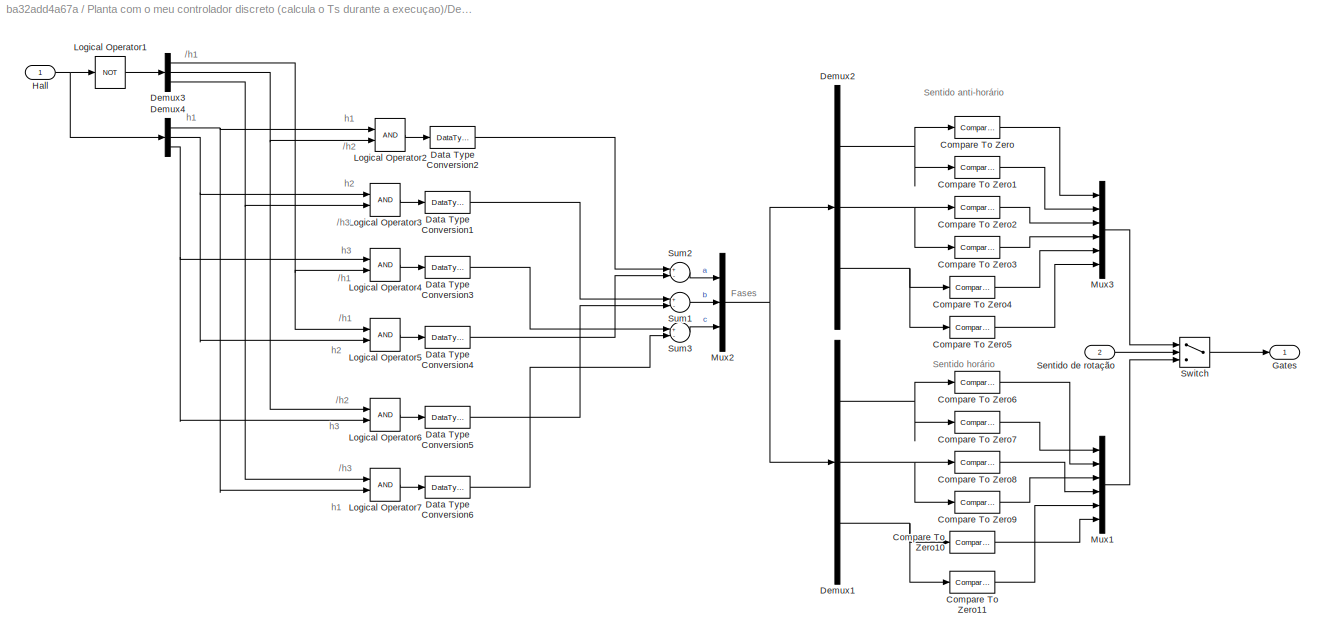
BLOCK [SubSystem] Planta com o meu controlador discreto (calcula o Ts durante a execuçao)/Decoder1
  FunctionWithSeparateData = off
  MaskHideContents = off
  MinAlgLoopOccurrences = off
  Opaque = off
  Ports = [2, 1]
  PropExecContextOutsideSubsystem = off
  RTWSystemCode = Auto
  RequestExecContextInheritance = off
BLOCK [Reference] Planta com o meu controlador discreto (calcula o Ts durante a execuçao)/Decoder1/Compare To Zero  REF=simulink/Logic and Bit
Operations/Compare
To Zero
  OutDataTypeStr = boolean
  Ports = [1, 1]
  SourceBlock = simulink/Logic and Bit\nOperations/Compare\nTo Zero
  SourceType = Compare To Zero
  ZeroCross = off
  relop = >
BLOCK [Reference] Planta com o meu controlador discreto (calcula o Ts durante a execuçao)/Decoder1/Compare To Zero1  REF=simulink/Logic and Bit
Operations/Compare
To Zero
  OutDataTypeStr = boolean
  Ports = [1, 1]
  SourceBlock = simulink/Logic and Bit\nOperations/Compare\nTo Zero
  SourceType = Compare To Zero
  ZeroCross = off
  relop = <
BLOCK [Reference] Planta com o meu controlador discreto (calcula o Ts durante a execuçao)/Decoder1/Compare To Zero10  REF=simulink/Logic and Bit
Operations/Compare
To Zero
  OutDataTypeStr = boolean
  Ports = [1, 1]
  SourceBlock = simulink/Logic and Bit\nOperations/Compare\nTo Zero
  SourceType = Compare To Zero
  ZeroCross = off
  relop = >
BLOCK [Reference] Planta com o meu controlador discreto (calcula o Ts durante a execuçao)/Decoder1/Compare To Zero11  REF=simulink/Logic and Bit
Operations/Compare
To Zero
  OutDataTypeStr = boolean
  Ports = [1, 1]
  SourceBlock = simulink/Logic and Bit\nOperations/Compare\nTo Zero
  SourceType = Compare To Zero
  ZeroCross = off
  relop = <
BLOCK [Reference] Planta com o meu controlador discreto (calcula o Ts durante a execuçao)/Decoder1/Compare To Zero2  REF=simulink/Logic and Bit
Operations/Compare
To Zero
  OutDataTypeStr = boolean
  Ports = [1, 1]
  SourceBlock = simulink/Logic and Bit\nOperations/Compare\nTo Zero
  SourceType = Compare To Zero
  ZeroCross = off
  relop = >
BLOCK [Reference] Planta com o meu controlador discreto (calcula o Ts durante a execuçao)/Decoder1/Compare To Zero3  REF=simulink/Logic and Bit
Operations/Compare
To Zero
  OutDataTypeStr = boolean
  Ports = [1, 1]
  SourceBlock = simulink/Logic and Bit\nOperations/Compare\nTo Zero
  SourceType = Compare To Zero
  ZeroCross = off
  relop = <
BLOCK [Reference] Planta com o meu controlador discreto (calcula o Ts durante a execuçao)/Decoder1/Compare To Zero4  REF=simulink/Logic and Bit
Operations/Compare
To Zero
  OutDataTypeStr = boolean
  Ports = [1, 1]
  SourceBlock = simulink/Logic and Bit\nOperations/Compare\nTo Zero
  SourceType = Compare To Zero
  ZeroCross = off
  relop = >
BLOCK [Reference] Planta com o meu controlador discreto (calcula o Ts durante a execuçao)/Decoder1/Compare To Zero5  REF=simulink/Logic and Bit
Operations/Compare
To Zero
  OutDataTypeStr = boolean
  Ports = [1, 1]
  SourceBlock = simulink/Logic and Bit\nOperations/Compare\nTo Zero
  SourceType = Compare To Zero
  ZeroCross = off
  relop = <
BLOCK [Reference] Planta com o meu controlador discreto (calcula o Ts durante a execuçao)/Decoder1/Compare To Zero6  REF=simulink/Logic and Bit
Operations/Compare
To Zero
  OutDataTypeStr = boolean
  Ports = [1, 1]
  SourceBlock = simulink/Logic and Bit\nOperations/Compare\nTo Zero
  SourceType = Compare To Zero
  ZeroCross = off
  relop = >
BLOCK [Reference] Planta com o meu controlador discreto (calcula o Ts durante a execuçao)/Decoder1/Compare To Zero7  REF=simulink/Logic and Bit
Operations/Compare
To Zero
  OutDataTypeStr = boolean
  Ports = [1, 1]
  SourceBlock = simulink/Logic and Bit\nOperations/Compare\nTo Zero
  SourceType = Compare To Zero
  ZeroCross = off
  relop = <
BLOCK [Reference] Planta com o meu controlador discreto (calcula o Ts durante a execuçao)/Decoder1/Compare To Zero8  REF=simulink/Logic and Bit
Operations/Compare
To Zero
  OutDataTypeStr = boolean
  Ports = [1, 1]
  SourceBlock = simulink/Logic and Bit\nOperations/Compare\nTo Zero
  SourceType = Compare To Zero
  ZeroCross = off
  relop = >
BLOCK [Reference] Planta com o meu controlador discreto (calcula o Ts durante a execuçao)/Decoder1/Compare To Zero9  REF=simulink/Logic and Bit
Operations/Compare
To Zero
  OutDataTypeStr = boolean
  Ports = [1, 1]
  SourceBlock = simulink/Logic and Bit\nOperations/Compare\nTo Zero
  SourceType = Compare To Zero
  ZeroCross = off
  relop = <
BLOCK [DataTypeConversion] Planta com o meu controlador discreto (calcula o Ts durante a execuçao)/Decoder1/Data Type Conversion1
  RndMeth = Floor
  SaturateOnIntegerOverflow = off
BLOCK [DataTypeConversion] Planta com o meu controlador discreto (calcula o Ts durante a execuçao)/Decoder1/Data Type Conversion2
  RndMeth = Floor
  SaturateOnIntegerOverflow = off
BLOCK [DataTypeConversion] Planta com o meu controlador discreto (calcula o Ts durante a execuçao)/Decoder1/Data Type Conversion3
  RndMeth = Floor
  SaturateOnIntegerOverflow = off
BLOCK [DataTypeConversion] Planta com o meu controlador discreto (calcula o Ts durante a execuçao)/Decoder1/Data Type Conversion4
  RndMeth = Floor
  SaturateOnIntegerOverflow = off
BLOCK [DataTypeConversion] Planta com o meu controlador discreto (calcula o Ts durante a execuçao)/Decoder1/Data Type Conversion5
  RndMeth = Floor
  SaturateOnIntegerOverflow = off
BLOCK [DataTypeConversion] Planta com o meu controlador discreto (calcula o Ts durante a execuçao)/Decoder1/Data Type Conversion6
  RndMeth = Floor
  SaturateOnIntegerOverflow = off
BLOCK [Demux] Planta com o meu controlador discreto (calcula o Ts durante a execuçao)/Decoder1/Demux1
  DisplayOption = bar
  Outputs = 3
  Ports = [1, 3]
BLOCK [Demux] Planta com o meu controlador discreto (calcula o Ts durante a execuçao)/Decoder1/Demux2
  DisplayOption = bar
  Outputs = 3
  Ports = [1, 3]
BLOCK [Demux] Planta com o meu controlador discreto (calcula o Ts durante a execuçao)/Decoder1/Demux3
  DisplayOption = bar
  Outputs = 3
  Ports = [1, 3]
BLOCK [Demux] Planta com o meu controlador discreto (calcula o Ts durante a execuçao)/Decoder1/Demux4
  DisplayOption = bar
  Outputs = 3
  Ports = [1, 3]
BLOCK [Outport] Planta com o meu controlador discreto (calcula o Ts durante a execuçao)/Decoder1/Gates
  IconDisplay = Port number
BLOCK [Inport] Planta com o meu controlador discreto (calcula o Ts durante a execuçao)/Decoder1/Hall 
  IconDisplay = Port number
BLOCK [Logic] Planta com o meu controlador discreto (calcula o Ts durante a execuçao)/Decoder1/Logical Operator1
  AllPortsSameDT = off
  Operator = NOT
  OutDataTypeStr = boolean
  Ports = [1, 1]
BLOCK [Logic] Planta com o meu controlador discreto (calcula o Ts durante a execuçao)/Decoder1/Logical Operator2
  AllPortsSameDT = off
  OutDataTypeStr = boolean
  Ports = [2, 1]
BLOCK [Logic] Planta com o meu controlador discreto (calcula o Ts durante a execuçao)/Decoder1/Logical Operator3
  AllPortsSameDT = off
  OutDataTypeStr = boolean
  Ports = [2, 1]
BLOCK [Logic] Planta com o meu controlador discreto (calcula o Ts durante a execuçao)/Decoder1/Logical Operator4
  AllPortsSameDT = off
  OutDataTypeStr = boolean
  Ports = [2, 1]
BLOCK [Logic] Planta com o meu controlador discreto (calcula o Ts durante a execuçao)/Decoder1/Logical Operator5
  AllPortsSameDT = off
  OutDataTypeStr = boolean
  Ports = [2, 1]
BLOCK [Logic] Planta com o meu controlador discreto (calcula o Ts durante a execuçao)/Decoder1/Logical Operator6
  AllPortsSameDT = off
  OutDataTypeStr = boolean
  Ports = [2, 1]
BLOCK [Logic] Planta com o meu controlador discreto (calcula o Ts durante a execuçao)/Decoder1/Logical Operator7
  AllPortsSameDT = off
  OutDataTypeStr = boolean
  Ports = [2, 1]
BLOCK [Mux] Planta com o meu controlador discreto (calcula o Ts durante a execuçao)/Decoder1/Mux1
  DisplayOption = bar
  Inputs = 6
  Ports = [6, 1]
BLOCK [Mux] Planta com o meu controlador discreto (calcula o Ts durante a execuçao)/Decoder1/Mux2
  DisplayOption = bar
  Inputs = 3
  Ports = [3, 1]
BLOCK [Mux] Planta com o meu controlador discreto (calcula o Ts durante a execuçao)/Decoder1/Mux3
  DisplayOption = bar
  Inputs = 6
  Ports = [6, 1]
BLOCK [Inport] Planta com o meu controlador discreto (calcula o Ts durante a execuçao)/Decoder1/Sentido de rotação
  IconDisplay = Port number
  Port = 2
BLOCK [Sum] Planta com o meu controlador discreto (calcula o Ts durante a execuçao)/Decoder1/Sum1
  InputSameDT = off
  Inputs = +-
  OutDataTypeStr = double
  Ports = [2, 1]
  SaturateOnIntegerOverflow = off
BLOCK [Sum] Planta com o meu controlador discreto (calcula o Ts durante a execuçao)/Decoder1/Sum2
  InputSameDT = off
  Inputs = +-
  OutDataTypeStr = double
  Ports = [2, 1]
  SaturateOnIntegerOverflow = off
BLOCK [Sum] Planta com o meu controlador discreto (calcula o Ts durante a execuçao)/Decoder1/Sum3
  InputSameDT = off
  Inputs = +-
  OutDataTypeStr = double
  Ports = [2, 1]
  SaturateOnIntegerOverflow = off
BLOCK [Switch] Planta com o meu controlador discreto (calcula o Ts durante a execuçao)/Decoder1/Switch
  Criteria = u2 > Threshold
  InputSameDT = off
  SaturateOnIntegerOverflow = off
BLOCK [Reference] Planta com o meu controlador discreto (calcula o Ts durante a execuçao)/Detect Increase  REF=simulink/Logic and Bit
Operations/Detect
Increase
  InputProcessing = Inherited
  OutDataTypeStr = boolean
  Ports = [1, 1]
  SourceBlock = simulink/Logic and Bit\nOperations/Detect\nIncrease
  SourceType = Detect Increase
  vinit = 0.0
BLOCK [SubSystem] Planta com o meu controlador discreto (calcula o Ts durante a execuçao)/Encoder
  FunctionWithSeparateData = off
  MaskHideContents = off
  MinAlgLoopOccurrences = off
  Opaque = off
  Ports = [1, 3]
  PropExecContextOutsideSubsystem = off
  RTWSystemCode = Auto
  RequestExecContextInheritance = off
BLOCK [SubSystem] Planta com o meu controlador discreto (calcula o Ts durante a execuçao)/Encoder/Determinar direçao
  FunctionWithSeparateData = off
  MaskHideContents = off
  MinAlgLoopOccurrences = off
  Opaque = off
  Ports = [2, 2]
  PropExecContextOutsideSubsystem = off
  RTWSystemCode = Auto
  RequestExecContextInheritance = off
BLOCK [Inport] Planta com o meu controlador discreto (calcula o Ts durante a execuçao)/Encoder/Determinar direçao/A
  IconDisplay = Port number
BLOCK [Inport] Planta com o meu controlador discreto (calcula o Ts durante a execuçao)/Encoder/Determinar direçao/B
  IconDisplay = Port number
  Port = 2
BLOCK [BusCreator] Planta com o meu controlador discreto (calcula o Ts durante a execuçao)/Encoder/Determinar direçao/Bus Creator1
  DisplayOption = bar
  Ports = [4, 1]
BLOCK [CombinatorialLogic] Planta com o meu controlador discreto (calcula o Ts durante a execuçao)/Encoder/Determinar direçao/Combinatorial  Logic
  TruthTable = [ 0 0 ; 0 1 ; 1 0 ; 0 0 ; 1 0 ; 0 0 ; 0 0 ; 0 1 ; 0 1 ; 0 0 ; 0 0 ; 1 0 ; 0 0 ; 1 0 ; 0 1 ; 0 0]
BLOCK [Demux] Planta com o meu controlador discreto (calcula o Ts durante a execuçao)/Encoder/Determinar direçao/Demux
  DisplayOption = bar
  Outputs = 2
  Ports = [1, 2]
BLOCK [Memory] Planta com o meu controlador discreto (calcula o Ts durante a execuçao)/Encoder/Determinar direçao/Memory
BLOCK [Memory] Planta com o meu controlador discreto (calcula o Ts durante a execuçao)/Encoder/Determinar direçao/Memory1
BLOCK [Outport] Planta com o meu controlador discreto (calcula o Ts durante a execuçao)/Encoder/Determinar direçao/NEG
  IconDisplay = Port number
  Port = 2
BLOCK [Outport] Planta com o meu controlador discreto (calcula o Ts durante a execuçao)/Encoder/Determinar direçao/POS
  IconDisplay = Port number
BLOCK [Gain] Planta com o meu controlador discreto (calcula o Ts durante a execuçao)/Encoder/Graus // pulso1
  Gain = 360/(4*Nr)
  OutDataTypeStr = double
  ParamDataTypeStr = Inherit: Inherit via internal rule
  SaturateOnIntegerOverflow = off
BLOCK [SubSystem] Planta com o meu controlador discreto (calcula o Ts durante a execuçao)/Encoder/Método M
  FunctionWithSeparateData = off
  MaskHideContents = off
  MinAlgLoopOccurrences = off
  Opaque = off
  Ports = [1, 1]
  PropExecContextOutsideSubsystem = off
  RTWSystemCode = Auto
  RequestExecContextInheritance = off
BLOCK [Sum] Planta com o meu controlador discreto (calcula o Ts durante a execuçao)/Encoder/Método M/Add
  IconShape = round
  InputSameDT = off
  Inputs = +-|
  OutDataTypeStr = Inherit: Inherit via internal rule
  Ports = [2, 1]
  SaturateOnIntegerOverflow = off
BLOCK [Reference] Planta com o meu controlador discreto (calcula o Ts durante a execuçao)/Encoder/Método M/Detect Increase  REF=simulink/Logic and Bit
Operations/Detect
Increase
  InputProcessing = Inherited
  OutDataTypeStr = boolean
  Ports = [1, 1]
  SourceBlock = simulink/Logic and Bit\nOperations/Detect\nIncrease
  SourceType = Detect Increase
  vinit = 0.0
BLOCK [Gain] Planta com o meu controlador discreto (calcula o Ts durante a execuçao)/Encoder/Método M/Gain
  Gain = 1/Ts
  OutDataTypeStr = Inherit: Inherit via internal rule
  ParamDataTypeStr = Inherit: Inherit via internal rule
  SaturateOnIntegerOverflow = off
BLOCK [Memory] Planta com o meu controlador discreto (calcula o Ts durante a execuçao)/Encoder/Método M/Memory1
BLOCK [Inport] Planta com o meu controlador discreto (calcula o Ts durante a execuçao)/Encoder/Método M/Posição
  IconDisplay = Port number
BLOCK [DiscretePulseGenerator] Planta com o meu controlador discreto (calcula o Ts durante a execuçao)/Encoder/Método M/Pulse Generator
  Period = Ts
  Ports = [0, 1]
  PulseType = Time based
  PulseWidth = 50
BLOCK [Switch] Planta com o meu controlador discreto (calcula o Ts durante a execuçao)/Encoder/Método M/Switch
  InputSameDT = off
  SaturateOnIntegerOverflow = off
BLOCK [Switch] Planta com o meu controlador discreto (calcula o Ts durante a execuçao)/Encoder/Método M/Switch1
  InputSameDT = off
  SaturateOnIntegerOverflow = off
BLOCK [Outport] Planta com o meu controlador discreto (calcula o Ts durante a execuçao)/Encoder/Método M/Velocidade
  IconDisplay = Port number
BLOCK [Memory] Planta com o meu controlador discreto (calcula o Ts durante a execuçao)/Encoder/Método M/pos'
BLOCK [SubSystem] Planta com o meu controlador discreto (calcula o Ts durante a execuçao)/Encoder/Método T
  FunctionWithSeparateData = off
  MaskHideContents = off
  MinAlgLoopOccurrences = off
  Opaque = off
  Ports = [3, 1]
  PropExecContextOutsideSubsystem = off
  RTWSystemCode = Auto
  RequestExecContextInheritance = off
BLOCK [Inport] Planta com o meu controlador discreto (calcula o Ts durante a execuçao)/Encoder/Método T/A
  IconDisplay = Port number
BLOCK [Sum] Planta com o meu controlador discreto (calcula o Ts durante a execuçao)/Encoder/Método T/Add
  IconShape = round
  InputSameDT = off
  Inputs = +-|
  OutDataTypeStr = Inherit: Inherit via internal rule
  Ports = [2, 1]
  SaturateOnIntegerOverflow = off
BLOCK [Inport] Planta com o meu controlador discreto (calcula o Ts durante a execuçao)/Encoder/Método T/B
  IconDisplay = Port number
  Port = 2
BLOCK [Clock] Planta com o meu controlador discreto (calcula o Ts durante a execuçao)/Encoder/Método T/Clock
BLOCK [Reference] Planta com o meu controlador discreto (calcula o Ts durante a execuçao)/Encoder/Método T/Compare To Constant  REF=simulink/Logic and Bit
Operations/Compare
To Constant
  OutDataTypeStr = boolean
  Ports = [1, 1]
  SourceBlock = simulink/Logic and Bit\nOperations/Compare\nTo Constant
  SourceType = Compare To Constant
  ZeroCross = on
  const = m
  relop = ==
BLOCK [SubSystem] Planta com o meu controlador discreto (calcula o Ts durante a execuçao)/Encoder/Método T/Contador
  FunctionWithSeparateData = off
  MaskHideContents = off
  MinAlgLoopOccurrences = off
  Opaque = off
  Ports = [2, 1]
  PropExecContextOutsideSubsystem = off
  RTWSystemCode = Auto
  RequestExecContextInheritance = off
BLOCK [Constant] Planta com o meu controlador discreto (calcula o Ts durante a execuçao)/Encoder/Método T/Contador/Constant
  Value = 0
BLOCK [Constant] Planta com o meu controlador discreto (calcula o Ts durante a execuçao)/Encoder/Método T/Contador/Constant1
BLOCK [Constant] Planta com o meu controlador discreto (calcula o Ts durante a execuçao)/Encoder/Método T/Contador/Constant2
  Value = 0
BLOCK [Outport] Planta com o meu controlador discreto (calcula o Ts durante a execuçao)/Encoder/Método T/Contador/Count
  IconDisplay = Port number
BLOCK [Inport] Planta com o meu controlador discreto (calcula o Ts durante a execuçao)/Encoder/Método T/Contador/In
  IconDisplay = Port number
BLOCK [Memory] Planta com o meu controlador discreto (calcula o Ts durante a execuçao)/Encoder/Método T/Contador/Memory
BLOCK [Sum] Planta com o meu controlador discreto (calcula o Ts durante a execuçao)/Encoder/Método T/Contador/Sum
  IconShape = round
  InputSameDT = off
  Inputs = |++
  OutDataTypeStr = Inherit: Inherit via internal rule
  Ports = [2, 1]
  SaturateOnIntegerOverflow = off
BLOCK [Switch] Planta com o meu controlador discreto (calcula o Ts durante a execuçao)/Encoder/Método T/Contador/Switch
  InputSameDT = off
  SaturateOnIntegerOverflow = off
BLOCK [Switch] Planta com o meu controlador discreto (calcula o Ts durante a execuçao)/Encoder/Método T/Contador/Switch1
  InputSameDT = off
  SaturateOnIntegerOverflow = off
BLOCK [Inport] Planta com o meu controlador discreto (calcula o Ts durante a execuçao)/Encoder/Método T/Contador/reset
  IconDisplay = Port number
  Port = 2
BLOCK [Reference] Planta com o meu controlador discreto (calcula o Ts durante a execuçao)/Encoder/Método T/Detect Change  REF=simulink/Logic and Bit
Operations/Detect
Change
  InputProcessing = Inherited
  OutDataTypeStr = boolean
  Ports = [1, 1]
  SourceBlock = simulink/Logic and Bit\nOperations/Detect\nChange
  SourceType = Detect Change
  vinit = 0
BLOCK [Reference] Planta com o meu controlador discreto (calcula o Ts durante a execuçao)/Encoder/Método T/Detect Change1  REF=simulink/Logic and Bit
Operations/Detect
Change
  InputProcessing = Inherited
  OutDataTypeStr = boolean
  Ports = [1, 1]
  SourceBlock = simulink/Logic and Bit\nOperations/Detect\nChange
  SourceType = Detect Change
  vinit = 0
BLOCK [Product] Planta com o meu controlador discreto (calcula o Ts durante a execuçao)/Encoder/Método T/Divide
  InputSameDT = off
  Inputs = */
  OutDataTypeStr = Inherit: Inherit via internal rule
  Ports = [2, 1]
  RndMeth = Floor
  SaturateOnIntegerOverflow = off
BLOCK [Logic] Planta com o meu controlador discreto (calcula o Ts durante a execuçao)/Encoder/Método T/Logical Operator
  AllPortsSameDT = off
  Operator = OR
  OutDataTypeStr = boolean
  Ports = [2, 1]
BLOCK [SubSystem] Planta com o meu controlador discreto (calcula o Ts durante a execuçao)/Encoder/Método T/Memória controlavel
  FunctionWithSeparateData = off
  MaskHideContents = off
  MinAlgLoopOccurrences = off
  Opaque = off
  Ports = [2, 1]
  PropExecContextOutsideSubsystem = off
  RTWSystemCode = Auto
  RequestExecContextInheritance = off
BLOCK [Inport] Planta com o meu controlador discreto (calcula o Ts durante a execuçao)/Encoder/Método T/Memória controlavel/In
  IconDisplay = Port number
BLOCK [Memory] Planta com o meu controlador discreto (calcula o Ts durante a execuçao)/Encoder/Método T/Memória controlavel/Memory2
BLOCK [Outport] Planta com o meu controlador discreto (calcula o Ts durante a execuçao)/Encoder/Método T/Memória controlavel/Out
  IconDisplay = Port number
BLOCK [Switch] Planta com o meu controlador discreto (calcula o Ts durante a execuçao)/Encoder/Método T/Memória controlavel/Switch2
  InputSameDT = off
  SaturateOnIntegerOverflow = off
BLOCK [Inport] Planta com o meu controlador discreto (calcula o Ts durante a execuçao)/Encoder/Método T/Memória controlavel/ctrl
  IconDisplay = Port number
  Port = 2
BLOCK [SubSystem] Planta com o meu controlador discreto (calcula o Ts durante a execuçao)/Encoder/Método T/Memória controlavel1
  FunctionWithSeparateData = off
  MaskHideContents = off
  MinAlgLoopOccurrences = off
  Opaque = off
  Ports = [2, 1]
  PropExecContextOutsideSubsystem = off
  RTWSystemCode = Auto
  RequestExecContextInheritance = off
BLOCK [Inport] Planta com o meu controlador discreto (calcula o Ts durante a execuçao)/Encoder/Método T/Memória controlavel1/In
  IconDisplay = Port number
BLOCK [Memory] Planta com o meu controlador discreto (calcula o Ts durante a execuçao)/Encoder/Método T/Memória controlavel1/Memory2
BLOCK [Outport] Planta com o meu controlador discreto (calcula o Ts durante a execuçao)/Encoder/Método T/Memória controlavel1/Out
  IconDisplay = Port number
BLOCK [Switch] Planta com o meu controlador discreto (calcula o Ts durante a execuçao)/Encoder/Método T/Memória controlavel1/Switch2
  InputSameDT = off
  SaturateOnIntegerOverflow = off
BLOCK [Inport] Planta com o meu controlador discreto (calcula o Ts durante a execuçao)/Encoder/Método T/Memória controlavel1/ctrl
  IconDisplay = Port number
  Port = 2
BLOCK [Inport] Planta com o meu controlador discreto (calcula o Ts durante a execuçao)/Encoder/Método T/Posição
  IconDisplay = Port number
  Port = 3
BLOCK [Sum] Planta com o meu controlador discreto (calcula o Ts durante a execuçao)/Encoder/Método T/Sum
  IconShape = round
  InputSameDT = off
  Inputs = |+-
  OutDataTypeStr = Inherit: Inherit via internal rule
  Ports = [2, 1]
  SaturateOnIntegerOverflow = off
BLOCK [Switch] Planta com o meu controlador discreto (calcula o Ts durante a execuçao)/Encoder/Método T/Switch1
  InputSameDT = off
  SaturateOnIntegerOverflow = off
BLOCK [Outport] Planta com o meu controlador discreto (calcula o Ts durante a execuçao)/Encoder/Método T/Velocidade
  IconDisplay = Port number
BLOCK [Memory] Planta com o meu controlador discreto (calcula o Ts durante a execuçao)/Encoder/Método T/pos'
BLOCK [SubSystem] Planta com o meu controlador discreto (calcula o Ts durante a execuçao)/Encoder/Sensor Óptico
  FunctionWithSeparateData = off
  MaskHideContents = off
  MinAlgLoopOccurrences = off
  Opaque = off
  Ports = [1, 1]
  PropExecContextOutsideSubsystem = off
  RTWSystemCode = Auto
  RequestExecContextInheritance = off
BLOCK [Constant] Planta com o meu controlador discreto (calcula o Ts durante a execuçao)/Encoder/Sensor Óptico/Constant
  Value = 0
BLOCK [Constant] Planta com o meu controlador discreto (calcula o Ts durante a execuçao)/Encoder/Sensor Óptico/Constant1
  Value = Nr
BLOCK [Constant] Planta com o meu controlador discreto (calcula o Ts durante a execuçao)/Encoder/Sensor Óptico/Constant2
  Value = 360
BLOCK [Product] Planta com o meu controlador discreto (calcula o Ts durante a execuçao)/Encoder/Sensor Óptico/Divide
  InputSameDT = off
  Inputs = */
  OutDataTypeStr = Inherit: Inherit via internal rule
  Ports = [2, 1]
  RndMeth = Floor
  SaturateOnIntegerOverflow = off
BLOCK [Gain] Planta com o meu controlador discreto (calcula o Ts durante a execuçao)/Encoder/Sensor Óptico/Gain
  Gain = 1/2
  OutDataTypeStr = Inherit: Inherit via internal rule
  ParamDataTypeStr = Inherit: Inherit via internal rule
  SaturateOnIntegerOverflow = off
BLOCK [Logic] Planta com o meu controlador discreto (calcula o Ts durante a execuçao)/Encoder/Sensor Óptico/Logical Operator
  AllPortsSameDT = off
  OutDataTypeStr = boolean
  Ports = [2, 1]
BLOCK [Math] Planta com o meu controlador discreto (calcula o Ts durante a execuçao)/Encoder/Sensor Óptico/Math Function
  Operator = mod
  Ports = [2, 1]
BLOCK [RelationalOperator] Planta com o meu controlador discreto (calcula o Ts durante a execuçao)/Encoder/Sensor Óptico/Relational Operator
  InputSameDT = off
  Operator = >
  OutDataTypeStr = boolean
  Ports = [2, 1]
BLOCK [RelationalOperator] Planta com o meu controlador discreto (calcula o Ts durante a execuçao)/Encoder/Sensor Óptico/Relational Operator1
  InputSameDT = off
  Operator = <
  OutDataTypeStr = boolean
  Ports = [2, 1]
BLOCK [Outport] Planta com o meu controlador discreto (calcula o Ts durante a execuçao)/Encoder/Sensor Óptico/Sinal_Pulso
  IconDisplay = Port number
BLOCK [Inport] Planta com o meu controlador discreto (calcula o Ts durante a execuçao)/Encoder/Sensor Óptico/Theta
  IconDisplay = Port number
BLOCK [SubSystem] Planta com o meu controlador discreto (calcula o Ts durante a execuçao)/Encoder/Sensor Óptico1
  FunctionWithSeparateData = off
  MaskHideContents = off
  MinAlgLoopOccurrences = off
  Opaque = off
  Ports = [1, 1]
  PropExecContextOutsideSubsystem = off
  RTWSystemCode = Auto
  RequestExecContextInheritance = off
BLOCK [Sum] Planta com o meu controlador discreto (calcula o Ts durante a execuçao)/Encoder/Sensor Óptico1/Add
  InputSameDT = off
  Inputs = +-
  OutDataTypeStr = Inherit: Inherit via internal rule
  Ports = [2, 1]
  SaturateOnIntegerOverflow = off
BLOCK [Constant] Planta com o meu controlador discreto (calcula o Ts durante a execuçao)/Encoder/Sensor Óptico1/Constant
  Value = 0
BLOCK [Constant] Planta com o meu controlador discreto (calcula o Ts durante a execuçao)/Encoder/Sensor Óptico1/Constant1
  Value = Nr
BLOCK [Constant] Planta com o meu controlador discreto (calcula o Ts durante a execuçao)/Encoder/Sensor Óptico1/Constant2
  Value = 360
BLOCK [Product] Planta com o meu controlador discreto (calcula o Ts durante a execuçao)/Encoder/Sensor Óptico1/Divide
  InputSameDT = off
  Inputs = */
  OutDataTypeStr = Inherit: Inherit via internal rule
  Ports = [2, 1]
  RndMeth = Floor
  SaturateOnIntegerOverflow = off
BLOCK [Gain] Planta com o meu controlador discreto (calcula o Ts durante a execuçao)/Encoder/Sensor Óptico1/Gain
  Gain = 1/2
  OutDataTypeStr = Inherit: Inherit via internal rule
  ParamDataTypeStr = Inherit: Inherit via internal rule
  SaturateOnIntegerOverflow = off
BLOCK [Gain] Planta com o meu controlador discreto (calcula o Ts durante a execuçao)/Encoder/Sensor Óptico1/Gain1
  Gain = 1/4
  OutDataTypeStr = Inherit: Inherit via internal rule
  ParamDataTypeStr = Inherit: Inherit via internal rule
  SaturateOnIntegerOverflow = off
BLOCK [Logic] Planta com o meu controlador discreto (calcula o Ts durante a execuçao)/Encoder/Sensor Óptico1/Logical Operator
  AllPortsSameDT = off
  OutDataTypeStr = boolean
  Ports = [2, 1]
BLOCK [Math] Planta com o meu controlador discreto (calcula o Ts durante a execuçao)/Encoder/Sensor Óptico1/Math Function
  Operator = mod
  Ports = [2, 1]
BLOCK [RelationalOperator] Planta com o meu controlador discreto (calcula o Ts durante a execuçao)/Encoder/Sensor Óptico1/Relational Operator
  InputSameDT = off
  Operator = >
  OutDataTypeStr = boolean
  Ports = [2, 1]
BLOCK [RelationalOperator] Planta com o meu controlador discreto (calcula o Ts durante a execuçao)/Encoder/Sensor Óptico1/Relational Operator1
  InputSameDT = off
  Operator = <
  OutDataTypeStr = boolean
  Ports = [2, 1]
BLOCK [Outport] Planta com o meu controlador discreto (calcula o Ts durante a execuçao)/Encoder/Sensor Óptico1/Sinal_Pulso
  IconDisplay = Port number
BLOCK [Inport] Planta com o meu controlador discreto (calcula o Ts durante a execuçao)/Encoder/Sensor Óptico1/Theta
  IconDisplay = Port number
BLOCK [SubSystem] Planta com o meu controlador discreto (calcula o Ts durante a execuçao)/Encoder/Subsystem
  FunctionWithSeparateData = off
  MaskHideContents = off
  MinAlgLoopOccurrences = off
  Opaque = off
  Ports = [2, 1]
  PropExecContextOutsideSubsystem = off
  RTWSystemCode = Auto
  RequestExecContextInheritance = off
BLOCK [Constant] Planta com o meu controlador discreto (calcula o Ts durante a execuçao)/Encoder/Subsystem/Constant
  Value = 4*Nr
BLOCK [DataTypeConversion] Planta com o meu controlador discreto (calcula o Ts durante a execuçao)/Encoder/Subsystem/Conversion
  OutDataTypeStr = int32
  RndMeth = Floor
  SaturateOnIntegerOverflow = off
BLOCK [DataTypeConversion] Planta com o meu controlador discreto (calcula o Ts durante a execuçao)/Encoder/Subsystem/Conversion1
  OutDataTypeStr = int32
  RndMeth = Floor
  SaturateOnIntegerOverflow = off
BLOCK [Math] Planta com o meu controlador discreto (calcula o Ts durante a execuçao)/Encoder/Subsystem/Math Function
  Operator = mod
  Ports = [2, 1]
BLOCK [Memory] Planta com o meu controlador discreto (calcula o Ts durante a execuçao)/Encoder/Subsystem/Memory
BLOCK [Inport] Planta com o meu controlador discreto (calcula o Ts durante a execuçao)/Encoder/Subsystem/NEG
  IconDisplay = Port number
  Port = 2
BLOCK [Outport] Planta com o meu controlador discreto (calcula o Ts durante a execuçao)/Encoder/Subsystem/Out
  IconDisplay = Port number
BLOCK [Inport] Planta com o meu controlador discreto (calcula o Ts durante a execuçao)/Encoder/Subsystem/POS
  IconDisplay = Port number
BLOCK [Sum] Planta com o meu controlador discreto (calcula o Ts durante a execuçao)/Encoder/Subsystem/Sum
  InputSameDT = off
  Inputs = +-+
  OutDataTypeStr = Inherit: Inherit via internal rule
  Ports = [3, 1]
  SaturateOnIntegerOverflow = off
BLOCK [Inport] Planta com o meu controlador discreto (calcula o Ts durante a execuçao)/Encoder/Theta
  IconDisplay = Port number
BLOCK [Outport] Planta com o meu controlador discreto (calcula o Ts durante a execuçao)/Encoder/Theta_amostrado
  IconDisplay = Port number
BLOCK [Outport] Planta com o meu controlador discreto (calcula o Ts durante a execuçao)/Encoder/VelocidadeM
  IconDisplay = Port number
  Port = 3
BLOCK [Outport] Planta com o meu controlador discreto (calcula o Ts durante a execuçao)/Encoder/VelocidadeT
  IconDisplay = Port number
  Port = 2
BLOCK [Gain] Planta com o meu controlador discreto (calcula o Ts durante a execuçao)/Gain1
  Gain = P/2
  OutDataTypeStr = Inherit: Inherit via internal rule
  ParamDataTypeStr = Inherit: Inherit via internal rule
  SaturateOnIntegerOverflow = off
BLOCK [Inport] Planta com o meu controlador discreto (calcula o Ts durante a execuçao)/In1
  IconDisplay = Port number
BLOCK [SubSystem] Planta com o meu controlador discreto (calcula o Ts durante a execuçao)/Inversor1
  FunctionWithSeparateData = off
  MaskHideContents = off
  MinAlgLoopOccurrences = off
  Opaque = off
  Ports = [2, 3]
  PropExecContextOutsideSubsystem = off
  RTWSystemCode = Auto
  RequestExecContextInheritance = off
BLOCK [Reference] Planta com o meu controlador discreto (calcula o Ts durante a execuçao)/Inversor1/Compare To Zero  REF=simulink/Logic and Bit
Operations/Compare
To Zero
  OutDataTypeStr = uint8
  Ports = [1, 1]
  SourceBlock = simulink/Logic and Bit\nOperations/Compare\nTo Zero
  SourceType = Compare To Zero
  ZeroCross = off
  relop = >
BLOCK [Reference] Planta com o meu controlador discreto (calcula o Ts durante a execuçao)/Inversor1/Compare To Zero10  REF=simulink/Logic and Bit
Operations/Compare
To Zero
  OutDataTypeStr = boolean
  Ports = [1, 1]
  SourceBlock = simulink/Logic and Bit\nOperations/Compare\nTo Zero
  SourceType = Compare To Zero
  ZeroCross = off
  relop = >
BLOCK [Reference] Planta com o meu controlador discreto (calcula o Ts durante a execuçao)/Inversor1/Compare To Zero2  REF=simulink/Logic and Bit
Operations/Compare
To Zero
  OutDataTypeStr = boolean
  Ports = [1, 1]
  SourceBlock = simulink/Logic and Bit\nOperations/Compare\nTo Zero
  SourceType = Compare To Zero
  ZeroCross = off
  relop = >
BLOCK [Reference] Planta com o meu controlador discreto (calcula o Ts durante a execuçao)/Inversor1/Compare To Zero4  REF=simulink/Logic and Bit
Operations/Compare
To Zero
  OutDataTypeStr = uint8
  Ports = [1, 1]
  SourceBlock = simulink/Logic and Bit\nOperations/Compare\nTo Zero
  SourceType = Compare To Zero
  ZeroCross = off
  relop = >
BLOCK [Reference] Planta com o meu controlador discreto (calcula o Ts durante a execuçao)/Inversor1/Compare To Zero6  REF=simulink/Logic and Bit
Operations/Compare
To Zero
  OutDataTypeStr = boolean
  Ports = [1, 1]
  SourceBlock = simulink/Logic and Bit\nOperations/Compare\nTo Zero
  SourceType = Compare To Zero
  ZeroCross = off
  relop = >
BLOCK [Reference] Planta com o meu controlador discreto (calcula o Ts durante a execuçao)/Inversor1/Compare To Zero8  REF=simulink/Logic and Bit
Operations/Compare
To Zero
  OutDataTypeStr = boolean
  Ports = [1, 1]
  SourceBlock = simulink/Logic and Bit\nOperations/Compare\nTo Zero
  SourceType = Compare To Zero
  ZeroCross = off
  relop = >
BLOCK [DataTypeConversion] Planta com o meu controlador discreto (calcula o Ts durante a execuçao)/Inversor1/Data Type Conversion
  OutDataTypeStr = double
  RndMeth = Floor
  SaturateOnIntegerOverflow = off
BLOCK [DataTypeConversion] Planta com o meu controlador discreto (calcula o Ts durante a execuçao)/Inversor1/Data Type Conversion1
  OutDataTypeStr = double
  RndMeth = Floor
  SaturateOnIntegerOverflow = off
BLOCK [DataTypeConversion] Planta com o meu controlador discreto (calcula o Ts durante a execuçao)/Inversor1/Data Type Conversion2
  OutDataTypeStr = double
  RndMeth = Floor
  SaturateOnIntegerOverflow = off
BLOCK [DataTypeConversion] Planta com o meu controlador discreto (calcula o Ts durante a execuçao)/Inversor1/Data Type Conversion3
  OutDataTypeStr = double
  RndMeth = Floor
  SaturateOnIntegerOverflow = off
BLOCK [DataTypeConversion] Planta com o meu controlador discreto (calcula o Ts durante a execuçao)/Inversor1/Data Type Conversion4
  OutDataTypeStr = double
  RndMeth = Floor
  SaturateOnIntegerOverflow = off
BLOCK [DataTypeConversion] Planta com o meu controlador discreto (calcula o Ts durante a execuçao)/Inversor1/Data Type Conversion5
  OutDataTypeStr = double
  RndMeth = Floor
  SaturateOnIntegerOverflow = off
BLOCK [Demux] Planta com o meu controlador discreto (calcula o Ts durante a execuçao)/Inversor1/Demux2
  DisplayOption = bar
  Outputs = 6
  Ports = [1, 6]
BLOCK [Gain] Planta com o meu controlador discreto (calcula o Ts durante a execuçao)/Inversor1/Gain
  Gain = 1/2
  OutDataTypeStr = Inherit: Inherit via internal rule
  ParamDataTypeStr = Inherit: Inherit via internal rule
  SaturateOnIntegerOverflow = off
BLOCK [Gain] Planta com o meu controlador discreto (calcula o Ts durante a execuçao)/Inversor1/Gain1
  Gain = -1
  OutDataTypeStr = Inherit: Inherit via internal rule
  ParamDataTypeStr = Inherit: Inherit via internal rule
  SaturateOnIntegerOverflow = off
BLOCK [Inport] Planta com o meu controlador discreto (calcula o Ts durante a execuçao)/Inversor1/Gates
  IconDisplay = Port number
BLOCK [Product] Planta com o meu controlador discreto (calcula o Ts durante a execuçao)/Inversor1/Product
  InputSameDT = off
  OutDataTypeStr = Inherit: Inherit via internal rule
  Ports = [2, 1]
  SaturateOnIntegerOverflow = off
BLOCK [Product] Planta com o meu controlador discreto (calcula o Ts durante a execuçao)/Inversor1/Product1
  InputSameDT = off
  OutDataTypeStr = Inherit: Inherit via internal rule
  Ports = [2, 1]
  SaturateOnIntegerOverflow = off
BLOCK [Product] Planta com o meu controlador discreto (calcula o Ts durante a execuçao)/Inversor1/Product2
  InputSameDT = off
  OutDataTypeStr = Inherit: Inherit via internal rule
  Ports = [2, 1]
  SaturateOnIntegerOverflow = off
BLOCK [Product] Planta com o meu controlador discreto (calcula o Ts durante a execuçao)/Inversor1/Product3
  InputSameDT = off
  OutDataTypeStr = Inherit: Inherit via internal rule
  Ports = [2, 1]
  SaturateOnIntegerOverflow = off
BLOCK [Product] Planta com o meu controlador discreto (calcula o Ts durante a execuçao)/Inversor1/Product4
  InputSameDT = off
  OutDataTypeStr = Inherit: Inherit via internal rule
  Ports = [2, 1]
  SaturateOnIntegerOverflow = off
BLOCK [Product] Planta com o meu controlador discreto (calcula o Ts durante a execuçao)/Inversor1/Product5
  InputSameDT = off
  OutDataTypeStr = Inherit: Inherit via internal rule
  Ports = [2, 1]
  SaturateOnIntegerOverflow = off
BLOCK [Sum] Planta com o meu controlador discreto (calcula o Ts durante a execuçao)/Inversor1/Sum1
  InputSameDT = off
  OutDataTypeStr = Inherit: Inherit via internal rule
  Ports = [2, 1]
BLOCK [Sum] Planta com o meu controlador discreto (calcula o Ts durante a execuçao)/Inversor1/Sum2
  InputSameDT = off
  OutDataTypeStr = Inherit: Inherit via internal rule
  Ports = [2, 1]
BLOCK [Sum] Planta com o meu controlador discreto (calcula o Ts durante a execuçao)/Inversor1/Sum3
  InputSameDT = off
  OutDataTypeStr = Inherit: Inherit via internal rule
  Ports = [2, 1]
BLOCK [Outport] Planta com o meu controlador discreto (calcula o Ts durante a execuçao)/Inversor1/Va
  IconDisplay = Port number
BLOCK [Outport] Planta com o meu controlador discreto (calcula o Ts durante a execuçao)/Inversor1/Vb
  IconDisplay = Port number
  Port = 2
BLOCK [Outport] Planta com o meu controlador discreto (calcula o Ts durante a execuçao)/Inversor1/Vc
  IconDisplay = Port number
  Port = 3
BLOCK [Inport] Planta com o meu controlador discreto (calcula o Ts durante a execuçao)/Inversor1/Vcc
  IconDisplay = Port number
  Port = 2
BLOCK [DiscretePulseGenerator] Planta com o meu controlador discreto (calcula o Ts durante a execuçao)/Pulse Generator
  Period = Ts
  Ports = [0, 1]
  PulseType = Time based
  PulseWidth = 50
BLOCK [Saturate] Planta com o meu controlador discreto (calcula o Ts durante a execuçao)/Saturation1
  InputPortMap = u0
  LowerLimit = -12
  Ports = [1, 1]
  UpperLimit = 12
BLOCK [Scope] Planta com o meu controlador discreto (calcula o Ts durante a execuçao)/Scope
  DataFormat = StructureWithTime
  Floating = off
  LegendLocations = 0.86976     0.92946     0.10714    0.025577\n0.90814     0.61504    0.081633    0.025577\n0.89189     0.30184    0.081633    0.025577
  LimitDataPoints = off
  NumInputPorts = 3
  Ports = [3]
  SampleTime = 0
  SaveName = ScopeData1
  ShowLegends = on
  YMax = 2~2100~5
  YMin = -2~-500~-5
BLOCK [SubSystem] Planta com o meu controlador discreto (calcula o Ts durante a execuçao)/Sensores Hall1
  AncestorBlock = spsPMSynchronousMachineModel/Discrete Trapezoidal/Hall effect sensor
  FunctionWithSeparateData = off
  MaskHideContents = off
  MinAlgLoopOccurrences = off
  Opaque = off
  Ports = [1, 1]
  PropExecContextOutsideSubsystem = off
  RTWSystemCode = Auto
  RequestExecContextInheritance = off
BLOCK [Constant] Planta com o meu controlador discreto (calcula o Ts durante a execuçao)/Sensores Hall1/Constant10
  Value = 240
BLOCK [Constant] Planta com o meu controlador discreto (calcula o Ts durante a execuçao)/Sensores Hall1/Constant11
  Value = 360
BLOCK [Constant] Planta com o meu controlador discreto (calcula o Ts durante a execuçao)/Sensores Hall1/Constant12
  Value = 180
BLOCK [Constant] Planta com o meu controlador discreto (calcula o Ts durante a execuçao)/Sensores Hall1/Constant6
  Value = 0
BLOCK [Constant] Planta com o meu controlador discreto (calcula o Ts durante a execuçao)/Sensores Hall1/Constant7
  Value = 120
BLOCK [Constant] Planta com o meu controlador discreto (calcula o Ts durante a execuçao)/Sensores Hall1/Constant8
  Value = 300
BLOCK [Constant] Planta com o meu controlador discreto (calcula o Ts durante a execuçao)/Sensores Hall1/Constant9
  Value = 60
BLOCK [DataTypeConversion] Planta com o meu controlador discreto (calcula o Ts durante a execuçao)/Sensores Hall1/Data Type Conversion3
BLOCK [DataTypeConversion] Planta com o meu controlador discreto (calcula o Ts durante a execuçao)/Sensores Hall1/Data Type Conversion4
BLOCK [DataTypeConversion] Planta com o meu controlador discreto (calcula o Ts durante a execuçao)/Sensores Hall1/Data Type Conversion5
BLOCK [Gain] Planta com o meu controlador discreto (calcula o Ts durante a execuçao)/Sensores Hall1/Gain1
  Gain = 180/pi
  OutDataTypeStr = Inherit: Inherit via internal rule
  ParamDataTypeStr = Inherit: Inherit via internal rule
  SaturateOnIntegerOverflow = off
BLOCK [Outport] Planta com o meu controlador discreto (calcula o Ts durante a execuçao)/Sensores Hall1/Hall
  IconDisplay = Port number
BLOCK [Logic] Planta com o meu controlador discreto (calcula o Ts durante a execuçao)/Sensores Hall1/Logical Operator3
  AllPortsSameDT = off
  OutDataTypeStr = boolean
  Ports = [2, 1]
BLOCK [Logic] Planta com o meu controlador discreto (calcula o Ts durante a execuçao)/Sensores Hall1/Logical Operator4
  AllPortsSameDT = off
  Operator = OR
  OutDataTypeStr = boolean
  Ports = [2, 1]
BLOCK [Logic] Planta com o meu controlador discreto (calcula o Ts durante a execuçao)/Sensores Hall1/Logical Operator5
  AllPortsSameDT = off
  OutDataTypeStr = boolean
  Ports = [2, 1]
BLOCK [Math] Planta com o meu controlador discreto (calcula o Ts durante a execuçao)/Sensores Hall1/Math Function1
  Operator = mod
  Ports = [2, 1]
BLOCK [Mux] Planta com o meu controlador discreto (calcula o Ts durante a execuçao)/Sensores Hall1/Mux1
  DisplayOption = bar
  Inputs = 3
  Ports = [3, 1]
BLOCK [RelationalOperator] Planta com o meu controlador discreto (calcula o Ts durante a execuçao)/Sensores Hall1/Relational Operator10
  Ports = [2, 1]
BLOCK [RelationalOperator] Planta com o meu controlador discreto (calcula o Ts durante a execuçao)/Sensores Hall1/Relational Operator11
  Operator = <=
  Ports = [2, 1]
BLOCK [RelationalOperator] Planta com o meu controlador discreto (calcula o Ts durante a execuçao)/Sensores Hall1/Relational Operator12
  Ports = [2, 1]
BLOCK [RelationalOperator] Planta com o meu controlador discreto (calcula o Ts durante a execuçao)/Sensores Hall1/Relational Operator7
  Ports = [2, 1]
BLOCK [RelationalOperator] Planta com o meu controlador discreto (calcula o Ts durante a execuçao)/Sensores Hall1/Relational Operator8
  Operator = <=
  Ports = [2, 1]
BLOCK [RelationalOperator] Planta com o meu controlador discreto (calcula o Ts durante a execuçao)/Sensores Hall1/Relational Operator9
  Ports = [2, 1]
BLOCK [Inport] Planta com o meu controlador discreto (calcula o Ts durante a execuçao)/Sensores Hall1/teta_e
  IconDisplay = Port number
BLOCK [Step] Planta com o meu controlador discreto (calcula o Ts durante a execuçao)/Step1
  After = 0*2e-3
  SampleTime = 0
  Time = 0.2
BLOCK [SubSystem] Planta com o meu controlador discreto (calcula o Ts durante a execuçao)/Subsystem
  FunctionWithSeparateData = off
  MaskHideContents = off
  MinAlgLoopOccurrences = off
  Opaque = off
  Ports = [2, 1]
  PropExecContextOutsideSubsystem = off
  RTWSystemCode = Auto
  RequestExecContextInheritance = off
BLOCK [Clock] Planta com o meu controlador discreto (calcula o Ts durante a execuçao)/Subsystem/Clock
BLOCK [Constant] Planta com o meu controlador discreto (calcula o Ts durante a execuçao)/Subsystem/Constant1
  Value = 0.000518155
BLOCK [Gain] Planta com o meu controlador discreto (calcula o Ts durante a execuçao)/Subsystem/Gain2
  Gain = 0.0431726
  OutDataTypeStr = Inherit: Inherit via internal rule
  ParamDataTypeStr = Inherit: Inherit via internal rule
  SaturateOnIntegerOverflow = off
BLOCK [Gain] Planta com o meu controlador discreto (calcula o Ts durante a execuçao)/Subsystem/Gain3
  Gain = 0.000518155
  OutDataTypeStr = Inherit: Inherit via internal rule
  ParamDataTypeStr = Inherit: Inherit via internal rule
  SaturateOnIntegerOverflow = off
BLOCK [SubSystem] Planta com o meu controlador discreto (calcula o Ts durante a execuçao)/Subsystem/Memória controlavel
  FunctionWithSeparateData = off
  MaskHideContents = off
  MinAlgLoopOccurrences = off
  Opaque = off
  Ports = [2, 1]
  PropExecContextOutsideSubsystem = off
  RTWSystemCode = Auto
  RequestExecContextInheritance = off
BLOCK [SubSystem] Planta com o meu controlador discreto (calcula o Ts durante a execuçao)/Subsystem/Memória controlavel (Y')
  FunctionWithSeparateData = off
  MaskHideContents = off
  MinAlgLoopOccurrences = off
  Opaque = off
  Ports = [2, 1]
  PropExecContextOutsideSubsystem = off
  RTWSystemCode = Auto
  RequestExecContextInheritance = off
BLOCK [Inport] Planta com o meu controlador discreto (calcula o Ts durante a execuçao)/Subsystem/Memória controlavel (Y')/In
  IconDisplay = Port number
BLOCK [Memory] Planta com o meu controlador discreto (calcula o Ts durante a execuçao)/Subsystem/Memória controlavel (Y')/Memory2
BLOCK [Outport] Planta com o meu controlador discreto (calcula o Ts durante a execuçao)/Subsystem/Memória controlavel (Y')/Out
  IconDisplay = Port number
BLOCK [Switch] Planta com o meu controlador discreto (calcula o Ts durante a execuçao)/Subsystem/Memória controlavel (Y')/Switch2
  InputSameDT = off
  SaturateOnIntegerOverflow = off
BLOCK [Inport] Planta com o meu controlador discreto (calcula o Ts durante a execuçao)/Subsystem/Memória controlavel (Y')/ctrl
  IconDisplay = Port number
  Port = 2
BLOCK [SubSystem] Planta com o meu controlador discreto (calcula o Ts durante a execuçao)/Subsystem/Memória controlavel (e')
  FunctionWithSeparateData = off
  MaskHideContents = off
  MinAlgLoopOccurrences = off
  Opaque = off
  Ports = [2, 1]
  PropExecContextOutsideSubsystem = off
  RTWSystemCode = Auto
  RequestExecContextInheritance = off
BLOCK [Inport] Planta com o meu controlador discreto (calcula o Ts durante a execuçao)/Subsystem/Memória controlavel (e')/In
  IconDisplay = Port number
BLOCK [Memory] Planta com o meu controlador discreto (calcula o Ts durante a execuçao)/Subsystem/Memória controlavel (e')/Memory2
BLOCK [Outport] Planta com o meu controlador discreto (calcula o Ts durante a execuçao)/Subsystem/Memória controlavel (e')/Out
  IconDisplay = Port number
BLOCK [Switch] Planta com o meu controlador discreto (calcula o Ts durante a execuçao)/Subsystem/Memória controlavel (e')/Switch2
  InputSameDT = off
  SaturateOnIntegerOverflow = off
BLOCK [Inport] Planta com o meu controlador discreto (calcula o Ts durante a execuçao)/Subsystem/Memória controlavel (e')/ctrl
  IconDisplay = Port number
  Port = 2
BLOCK [SubSystem] Planta com o meu controlador discreto (calcula o Ts durante a execuçao)/Subsystem/Memória controlavel (u)
  FunctionWithSeparateData = off
  MaskHideContents = off
  MinAlgLoopOccurrences = off
  Opaque = off
  Ports = [2, 1]
  PropExecContextOutsideSubsystem = off
  RTWSystemCode = Auto
  RequestExecContextInheritance = off
BLOCK [Inport] Planta com o meu controlador discreto (calcula o Ts durante a execuçao)/Subsystem/Memória controlavel (u)/In
  IconDisplay = Port number
BLOCK [Memory] Planta com o meu controlador discreto (calcula o Ts durante a execuçao)/Subsystem/Memória controlavel (u)/Memory2
BLOCK [Outport] Planta com o meu controlador discreto (calcula o Ts durante a execuçao)/Subsystem/Memória controlavel (u)/Out
  IconDisplay = Port number
BLOCK [Switch] Planta com o meu controlador discreto (calcula o Ts durante a execuçao)/Subsystem/Memória controlavel (u)/Switch2
  InputSameDT = off
  SaturateOnIntegerOverflow = off
BLOCK [Inport] Planta com o meu controlador discreto (calcula o Ts durante a execuçao)/Subsystem/Memória controlavel (u)/ctrl
  IconDisplay = Port number
  Port = 2
BLOCK [Inport] Planta com o meu controlador discreto (calcula o Ts durante a execuçao)/Subsystem/Memória controlavel/In
  IconDisplay = Port number
BLOCK [Memory] Planta com o meu controlador discreto (calcula o Ts durante a execuçao)/Subsystem/Memória controlavel/Memory2
BLOCK [Outport] Planta com o meu controlador discreto (calcula o Ts durante a execuçao)/Subsystem/Memória controlavel/Out
  IconDisplay = Port number
BLOCK [Switch] Planta com o meu controlador discreto (calcula o Ts durante a execuçao)/Subsystem/Memória controlavel/Switch2
  InputSameDT = off
  SaturateOnIntegerOverflow = off
BLOCK [Inport] Planta com o meu controlador discreto (calcula o Ts durante a execuçao)/Subsystem/Memória controlavel/ctrl
  IconDisplay = Port number
  Port = 2
BLOCK [Product] Planta com o meu controlador discreto (calcula o Ts durante a execuçao)/Subsystem/Product
  InputSameDT = off
  OutDataTypeStr = Inherit: Inherit via internal rule
  Ports = [2, 1]
  SaturateOnIntegerOverflow = off
BLOCK [Sum] Planta com o meu controlador discreto (calcula o Ts durante a execuçao)/Subsystem/Sum
  IconShape = round
  InputSameDT = off
  Inputs = ++-
  OutDataTypeStr = Inherit: Inherit via internal rule
  Ports = [3, 1]
  SaturateOnIntegerOverflow = off
BLOCK [Sum] Planta com o meu controlador discreto (calcula o Ts durante a execuçao)/Subsystem/Sum1
  IconShape = round
  InputSameDT = off
  Inputs = |+-
  OutDataTypeStr = Inherit: Inherit via internal rule
  Ports = [2, 1]
  SaturateOnIntegerOverflow = off
BLOCK [Sum] Planta com o meu controlador discreto (calcula o Ts durante a execuçao)/Subsystem/Sum2
  IconShape = round
  InputSameDT = off
  Inputs = |+-
  OutDataTypeStr = Inherit: Inherit via internal rule
  Ports = [2, 1]
  SaturateOnIntegerOverflow = off
BLOCK [Inport] Planta com o meu controlador discreto (calcula o Ts durante a execuçao)/Subsystem/clock
  IconDisplay = Port number
  Port = 2
BLOCK [Inport] Planta com o meu controlador discreto (calcula o Ts durante a execuçao)/Subsystem/e
  IconDisplay = Port number
BLOCK [Outport] Planta com o meu controlador discreto (calcula o Ts durante a execuçao)/Subsystem/u
  IconDisplay = Port number
BLOCK [Outport] Planta com o meu controlador discreto (calcula o Ts durante a execuçao)/u
  IconDisplay = Port number
  Port = 2
BLOCK [Outport] Planta com o meu controlador discreto (calcula o Ts durante a execuçao)/w
  IconDisplay = Port number
BLOCK [Scope] Scope
  DataFormat = StructureWithTime
  Floating = off
  LegendLocations = 0.90927     0.90978     0.18563     0.04439
  LimitDataPoints = off
  NumInputPorts = 1
  Ports = [1]
  SampleTime = 0
  ShowLegends = on
  YMax = 4500
  YMin = 2300
BLOCK [SignalViewerScope] Scope1
  IOType = viewer
  LimitDataPoints = off
  MaxDataPoints = 7500
  NumInputPorts = 1
  Ports = []
  RefreshTime = 0.035000
  SaveName = ScopeData3
  ShowDataMarkers = off
  ShowLegends = off
BLOCK [SignalViewerScope] Scope2
  IOType = viewer
  LimitDataPoints = off
  MaxDataPoints = 7500
  NumInputPorts = 1
  Ports = []
  RefreshTime = 0.035000
  SaveName = ScopeData4
  ShowDataMarkers = off
  ShowLegends = off
BLOCK [SignalViewerScope] Torque
  IOType = viewer
  LimitDataPoints = off
  MaxDataPoints = 7500
  NumInputPorts = 1
  Ports = []
  RefreshTime = 0.035000
  SaveName = Torque
  SaveToWorkspace = on
  ShowDataMarkers = off
  ShowLegends = off
  ZoomMode = xonly
BLOCK [SignalViewerScope] Torques por fase
  IOType = viewer
  LimitDataPoints = off
  MaxDataPoints = 7500
  NumInputPorts = 3
  Ports = []
  RefreshTime = 0.035000
  SaveName = ScopeData1
  ShowDataMarkers = off
  ShowLegends = off
  YMax = 5~5~5
  YMin = -5~-5~-5
  ZoomMode = xonly
ANNOTATION (root): Teste para validar se o controlador discreto que eu desenvolvi comporta-se da mesma forma que o controlador discreto do simulink.
ANNOTATION Planta com controlador discreto do simulink/BLDC2/Dinâmica fase "a": Gain
ANNOTATION Planta com controlador discreto do simulink/BLDC2/Dinâmica fase "b": Gain
ANNOTATION Planta com controlador discreto do simulink/BLDC2/Dinâmica fase "c": Gain
ANNOTATION Planta com controlador discreto do simulink/Decoder2: /h1
ANNOTATION Planta com controlador discreto do simulink/Decoder2: /h2
ANNOTATION Planta com controlador discreto do simulink/Decoder2: /h3
ANNOTATION Planta com controlador discreto do simulink/Decoder2: Fases
ANNOTATION Planta com controlador discreto do simulink/Decoder2: Sentido anti-horário
ANNOTATION Planta com controlador discreto do simulink/Decoder2: Sentido horário
ANNOTATION Planta com controlador discreto do simulink/Decoder2: h1
ANNOTATION Planta com controlador discreto do simulink/Decoder2: h2
ANNOTATION Planta com controlador discreto do simulink/Decoder2: h3
ANNOTATION Planta com controlador discreto do simulink/Encoder: ATENÇÃO: Para o correto funcionamento desse encoder o step size da simulação deve ser menor do que 360/(4*Nr*Vmax), onde Vmax é o valor máximo da derivada do Theta atigindo durante a simulação
ANNOTATION Planta com controlador discreto do simulink/Encoder/Determinar direçao: 0 - + 0 + 0 0 - - 0 0 + 0 + - 0
ANNOTATION Planta com controlador discreto do simulink/Encoder/Determinar direçao: 00 01 10 11
ANNOTATION Planta com controlador discreto do simulink/Encoder/Determinar direçao: A'B'
ANNOTATION Planta com controlador discreto do simulink/Encoder/Determinar direçao: A,B = Valores atuais dos sinais A e B A'B' = Valores passados do sinais A e B
ANNOTATION Planta com controlador discreto do simulink/Encoder/Determinar direçao: AB
ANNOTATION Planta com controlador discreto do simulink/Encoder/Determinar direçao: Dependendo dos valores passados e dos valores atuais dos pulsos de cada sensor óptico, determina o sentido de rotaçao.
ANNOTATION Planta com controlador discreto do simulink/Encoder/Determinar direçao: Implementa a seguinte tabela verdade:
ANNOTATION Planta com controlador discreto do simulink/Encoder/Método T/Contador: Contador de pulsos Conta o número de steps que a entrada "In" fica em nível lógico alto; reset em 1 zera. Pode ser utilizado como contador se a entrada so ficar em nível alto por somente um simulation step (por exemplo utilizando um bloco de "detect change").
ANNOTATION Planta com controlador discreto do simulink/Encoder/Método T/Memória controlavel: Memória controlável Se "ctrl" = 1, "Out" = "In" Se "ctrl" = 0, "Out" mantém mesmo valor
ANNOTATION Planta com controlador discreto do simulink/Encoder/Método T/Memória controlavel1: Memória controlável Se "ctrl" = 1, "Out" = "In" Se "ctrl" = 0, "Out" mantém mesmo valor
ANNOTATION Planta com controlador discreto do simulink/Encoder/Sensor Óptico: Saída do sensor óptico é: 1, se 0 < mod(T,Tp) < \frac{Tp}{2} 0, se Tp/2 < mod(T,Tp) < Tp
ANNOTATION Planta com controlador discreto do simulink/Encoder/Sensor Óptico1: Saída do sensor óptico é: 1, se 0 < mod(T-Tp/4,Tp) < Tp/2 0, se Tp/2 < mod(T-Tp/4,Tp) < Tp
ANNOTATION Planta com controlador discreto do simulink/Encoder/Subsystem: Dependendo do sentido da rotaçao, incrementa ou decrementa o contador
ANNOTATION Planta com o meu controlador discreto (calcula o Ts durante a execuçao)/BLDC1/Dinâmica fase "a": Gain
ANNOTATION Planta com o meu controlador discreto (calcula o Ts durante a execuçao)/BLDC1/Dinâmica fase "b": Gain
ANNOTATION Planta com o meu controlador discreto (calcula o Ts durante a execuçao)/BLDC1/Dinâmica fase "c": Gain
ANNOTATION Planta com o meu controlador discreto (calcula o Ts durante a execuçao)/Decoder1: /h1
ANNOTATION Planta com o meu controlador discreto (calcula o Ts durante a execuçao)/Decoder1: /h2
ANNOTATION Planta com o meu controlador discreto (calcula o Ts durante a execuçao)/Decoder1: /h3
ANNOTATION Planta com o meu controlador discreto (calcula o Ts durante a execuçao)/Decoder1: Fases
ANNOTATION Planta com o meu controlador discreto (calcula o Ts durante a execuçao)/Decoder1: Sentido anti-horário
ANNOTATION Planta com o meu controlador discreto (calcula o Ts durante a execuçao)/Decoder1: Sentido horário
ANNOTATION Planta com o meu controlador discreto (calcula o Ts durante a execuçao)/Decoder1: h1
ANNOTATION Planta com o meu controlador discreto (calcula o Ts durante a execuçao)/Decoder1: h2
ANNOTATION Planta com o meu controlador discreto (calcula o Ts durante a execuçao)/Decoder1: h3
ANNOTATION Planta com o meu controlador discreto (calcula o Ts durante a execuçao)/Encoder: ATENÇÃO: Para o correto funcionamento desse encoder o step size da simulação deve ser menor do que 360/(4*Nr*Vmax), onde Vmax é o valor máximo da derivada do Theta atigindo durante a simulação
ANNOTATION Planta com o meu controlador discreto (calcula o Ts durante a execuçao)/Encoder/Determinar direçao: 0 - + 0 + 0 0 - - 0 0 + 0 + - 0
ANNOTATION Planta com o meu controlador discreto (calcula o Ts durante a execuçao)/Encoder/Determinar direçao: 00 01 10 11
ANNOTATION Planta com o meu controlador discreto (calcula o Ts durante a execuçao)/Encoder/Determinar direçao: A'B'
ANNOTATION Planta com o meu controlador discreto (calcula o Ts durante a execuçao)/Encoder/Determinar direçao: A,B = Valores atuais dos sinais A e B A'B' = Valores passados do sinais A e B
ANNOTATION Planta com o meu controlador discreto (calcula o Ts durante a execuçao)/Encoder/Determinar direçao: AB
ANNOTATION Planta com o meu controlador discreto (calcula o Ts durante a execuçao)/Encoder/Determinar direçao: Dependendo dos valores passados e dos valores atuais dos pulsos de cada sensor óptico, determina o sentido de rotaçao.
ANNOTATION Planta com o meu controlador discreto (calcula o Ts durante a execuçao)/Encoder/Determinar direçao: Implementa a seguinte tabela verdade:
ANNOTATION Planta com o meu controlador discreto (calcula o Ts durante a execuçao)/Encoder/Método T/Contador: Contador de pulsos Conta o número de steps que a entrada "In" fica em nível lógico alto; reset em 1 zera. Pode ser utilizado como contador se a entrada so ficar em nível alto por somente um simulation step (por exemplo utilizando um bloco de "detect change").
ANNOTATION Planta com o meu controlador discreto (calcula o Ts durante a execuçao)/Encoder/Método T/Memória controlavel: Memória controlável Se "ctrl" = 1, "Out" = "In" Se "ctrl" = 0, "Out" mantém mesmo valor
ANNOTATION Planta com o meu controlador discreto (calcula o Ts durante a execuçao)/Encoder/Método T/Memória controlavel1: Memória controlável Se "ctrl" = 1, "Out" = "In" Se "ctrl" = 0, "Out" mantém mesmo valor
ANNOTATION Planta com o meu controlador discreto (calcula o Ts durante a execuçao)/Encoder/Sensor Óptico: Saída do sensor óptico é: 1, se 0 < mod(T,Tp) < \frac{Tp}{2} 0, se Tp/2 < mod(T,Tp) < Tp
ANNOTATION Planta com o meu controlador discreto (calcula o Ts durante a execuçao)/Encoder/Sensor Óptico1: Saída do sensor óptico é: 1, se 0 < mod(T-Tp/4,Tp) < Tp/2 0, se Tp/2 < mod(T-Tp/4,Tp) < Tp
ANNOTATION Planta com o meu controlador discreto (calcula o Ts durante a execuçao)/Encoder/Subsystem: Dependendo do sentido da rotaçao, incrementa ou decrementa o contador
ANNOTATION Planta com o meu controlador discreto (calcula o Ts durante a execuçao)/Subsystem/Memória controlavel: Memória controlável Se "ctrl" = 1, "Out" = "In" Se "ctrl" = 0, "Out" mantém mesmo valor
ANNOTATION Planta com o meu controlador discreto (calcula o Ts durante a execuçao)/Subsystem/Memória controlavel (Y'): Memória controlável Se "ctrl" = 1, "Out" = "In" Se "ctrl" = 0, "Out" mantém mesmo valor
ANNOTATION Planta com o meu controlador discreto (calcula o Ts durante a execuçao)/Subsystem/Memória controlavel (e'): Memória controlável Se "ctrl" = 1, "Out" = "In" Se "ctrl" = 0, "Out" mantém mesmo valor
ANNOTATION Planta com o meu controlador discreto (calcula o Ts durante a execuçao)/Subsystem/Memória controlavel (u): Memória controlável Se "ctrl" = 1, "Out" = "In" Se "ctrl" = 0, "Out" mantém mesmo valor
LINE Bus Creator:1 -> Scope:1
NET Constant:1 -> Planta com controlador discreto do simulink:1, Planta com o meu controlador discreto (calcula o Ts durante a execuçao):1
LINE Planta com controlador discreto do simulink/Add2:1 -> Planta com controlador discreto do simulink/Rate Transition:1
LINE Planta com controlador discreto do simulink/Anti-horário2:1 -> Planta com controlador discreto do simulink/Decoder2:2
LINE Planta com controlador discreto do simulink/BLDC2/Cálculo Torque fase "a"/Constant1:1 -> Planta com controlador discreto do simulink/BLDC2/Cálculo Torque fase "a"/Math Function1:2
LINE Planta com controlador discreto do simulink/BLDC2/Cálculo Torque fase "a"/Gain1:1 -> Planta com controlador discreto do simulink/BLDC2/Cálculo Torque fase "a"/Math Function1:1
LINE Planta com controlador discreto do simulink/BLDC2/Cálculo Torque fase "a"/Gain:1 -> Planta com controlador discreto do simulink/BLDC2/Cálculo Torque fase "a"/Product:2
LINE Planta com controlador discreto do simulink/BLDC2/Cálculo Torque fase "a"/Math Function1:1 -> Planta com controlador discreto do simulink/BLDC2/Cálculo Torque fase "a"/fa1:1
LINE Planta com controlador discreto do simulink/BLDC2/Cálculo Torque fase "a"/Product:1 -> Planta com controlador discreto do simulink/BLDC2/Cálculo Torque fase "a"/T_a:1
LINE Planta com controlador discreto do simulink/BLDC2/Cálculo Torque fase "a"/Theta_e:1 -> Planta com controlador discreto do simulink/BLDC2/Cálculo Torque fase "a"/Gain1:1
LINE Planta com controlador discreto do simulink/BLDC2/Cálculo Torque fase "a"/fa1:1 -> Planta com controlador discreto do simulink/BLDC2/Cálculo Torque fase "a"/Product:1
LINE Planta com controlador discreto do simulink/BLDC2/Cálculo Torque fase "a"/i_a:1 -> Planta com controlador discreto do simulink/BLDC2/Cálculo Torque fase "a"/Gain:1
NET Planta com controlador discreto do simulink/BLDC2/Cálculo Torque fase "a":1 -> Planta com controlador discreto do simulink/BLDC2/Sum:1, Planta com controlador discreto do simulink/BLDC2/is1:1
LINE Planta com controlador discreto do simulink/BLDC2/Cálculo Torque fase "b"/Constant1:1 -> Planta com controlador discreto do simulink/BLDC2/Cálculo Torque fase "b"/Math Function1:2
LINE Planta com controlador discreto do simulink/BLDC2/Cálculo Torque fase "b"/Gain1:1 -> Planta com controlador discreto do simulink/BLDC2/Cálculo Torque fase "b"/Math Function1:1
LINE Planta com controlador discreto do simulink/BLDC2/Cálculo Torque fase "b"/Gain:1 -> Planta com controlador discreto do simulink/BLDC2/Cálculo Torque fase "b"/Product:2
LINE Planta com controlador discreto do simulink/BLDC2/Cálculo Torque fase "b"/Math Function1:1 -> Planta com controlador discreto do simulink/BLDC2/Cálculo Torque fase "b"/fb2:1
LINE Planta com controlador discreto do simulink/BLDC2/Cálculo Torque fase "b"/Product:1 -> Planta com controlador discreto do simulink/BLDC2/Cálculo Torque fase "b"/T_b:1
LINE Planta com controlador discreto do simulink/BLDC2/Cálculo Torque fase "b"/Theta_e:1 -> Planta com controlador discreto do simulink/BLDC2/Cálculo Torque fase "b"/Gain1:1
LINE Planta com controlador discreto do simulink/BLDC2/Cálculo Torque fase "b"/fb2:1 -> Planta com controlador discreto do simulink/BLDC2/Cálculo Torque fase "b"/Product:1
LINE Planta com controlador discreto do simulink/BLDC2/Cálculo Torque fase "b"/i_b:1 -> Planta com controlador discreto do simulink/BLDC2/Cálculo Torque fase "b"/Gain:1
NET Planta com controlador discreto do simulink/BLDC2/Cálculo Torque fase "b":1 -> Planta com controlador discreto do simulink/BLDC2/Sum:2, Planta com controlador discreto do simulink/BLDC2/is1:2
LINE Planta com controlador discreto do simulink/BLDC2/Cálculo Torque fase "c"/Constant1:1 -> Planta com controlador discreto do simulink/BLDC2/Cálculo Torque fase "c"/Math Function1:2
LINE Planta com controlador discreto do simulink/BLDC2/Cálculo Torque fase "c"/Gain1:1 -> Planta com controlador discreto do simulink/BLDC2/Cálculo Torque fase "c"/Math Function1:1
LINE Planta com controlador discreto do simulink/BLDC2/Cálculo Torque fase "c"/Gain:1 -> Planta com controlador discreto do simulink/BLDC2/Cálculo Torque fase "c"/Product:2
LINE Planta com controlador discreto do simulink/BLDC2/Cálculo Torque fase "c"/Math Function1:1 -> Planta com controlador discreto do simulink/BLDC2/Cálculo Torque fase "c"/fc1:1
LINE Planta com controlador discreto do simulink/BLDC2/Cálculo Torque fase "c"/Product:1 -> Planta com controlador discreto do simulink/BLDC2/Cálculo Torque fase "c"/T_c:1
LINE Planta com controlador discreto do simulink/BLDC2/Cálculo Torque fase "c"/Theta_e:1 -> Planta com controlador discreto do simulink/BLDC2/Cálculo Torque fase "c"/Gain1:1
LINE Planta com controlador discreto do simulink/BLDC2/Cálculo Torque fase "c"/fc1:1 -> Planta com controlador discreto do simulink/BLDC2/Cálculo Torque fase "c"/Product:1
LINE Planta com controlador discreto do simulink/BLDC2/Cálculo Torque fase "c"/i_c:1 -> Planta com controlador discreto do simulink/BLDC2/Cálculo Torque fase "c"/Gain:1
NET Planta com controlador discreto do simulink/BLDC2/Cálculo Torque fase "c":1 -> Planta com controlador discreto do simulink/BLDC2/Sum:3, Planta com controlador discreto do simulink/BLDC2/is1:3
LINE Planta com controlador discreto do simulink/BLDC2/Cálculo das FCEMs/Constant1:1 -> Planta com controlador discreto do simulink/BLDC2/Cálculo das FCEMs/Math Function1:2
LINE Planta com controlador discreto do simulink/BLDC2/Cálculo das FCEMs/Constant2:1 -> Planta com controlador discreto do simulink/BLDC2/Cálculo das FCEMs/Math Function2:2
LINE Planta com controlador discreto do simulink/BLDC2/Cálculo das FCEMs/Constant3:1 -> Planta com controlador discreto do simulink/BLDC2/Cálculo das FCEMs/Math Function3:2
LINE Planta com controlador discreto do simulink/BLDC2/Cálculo das FCEMs/Gain1:1 -> Planta com controlador discreto do simulink/BLDC2/Cálculo das FCEMs/Math Function1:1
LINE Planta com controlador discreto do simulink/BLDC2/Cálculo das FCEMs/Gain2:1 -> Planta com controlador discreto do simulink/BLDC2/Cálculo das FCEMs/Product:2
LINE Planta com controlador discreto do simulink/BLDC2/Cálculo das FCEMs/Gain3:1 -> Planta com controlador discreto do simulink/BLDC2/Cálculo das FCEMs/Product1:2
LINE Planta com controlador discreto do simulink/BLDC2/Cálculo das FCEMs/Gain4:1 -> Planta com controlador discreto do simulink/BLDC2/Cálculo das FCEMs/Product2:2
LINE Planta com controlador discreto do simulink/BLDC2/Cálculo das FCEMs/Gain5:1 -> Planta com controlador discreto do simulink/BLDC2/Cálculo das FCEMs/Math Function2:1
LINE Planta com controlador discreto do simulink/BLDC2/Cálculo das FCEMs/Gain6:1 -> Planta com controlador discreto do simulink/BLDC2/Cálculo das FCEMs/Math Function3:1
LINE Planta com controlador discreto do simulink/BLDC2/Cálculo das FCEMs/Math Function1:1 -> Planta com controlador discreto do simulink/BLDC2/Cálculo das FCEMs/fa1:1
LINE Planta com controlador discreto do simulink/BLDC2/Cálculo das FCEMs/Math Function2:1 -> Planta com controlador discreto do simulink/BLDC2/Cálculo das FCEMs/fb2:1
LINE Planta com controlador discreto do simulink/BLDC2/Cálculo das FCEMs/Math Function3:1 -> Planta com controlador discreto do simulink/BLDC2/Cálculo das FCEMs/fc1:1
LINE Planta com controlador discreto do simulink/BLDC2/Cálculo das FCEMs/Product1:1 -> Planta com controlador discreto do simulink/BLDC2/Cálculo das FCEMs/e_b:1
LINE Planta com controlador discreto do simulink/BLDC2/Cálculo das FCEMs/Product2:1 -> Planta com controlador discreto do simulink/BLDC2/Cálculo das FCEMs/e_c:1
LINE Planta com controlador discreto do simulink/BLDC2/Cálculo das FCEMs/Product:1 -> Planta com controlador discreto do simulink/BLDC2/Cálculo das FCEMs/e_a:1
NET Planta com controlador discreto do simulink/BLDC2/Cálculo das FCEMs/Theta_e:1 -> Planta com controlador discreto do simulink/BLDC2/Cálculo das FCEMs/Gain1:1, Planta com controlador discreto do simulink/BLDC2/Cálculo das FCEMs/Gain5:1, Planta com controlador discreto do simulink/BLDC2/Cálculo das FCEMs/Gain6:1
LINE Planta com controlador discreto do simulink/BLDC2/Cálculo das FCEMs/fa1:1 -> Planta com controlador discreto do simulink/BLDC2/Cálculo das FCEMs/Gain2:1
LINE Planta com controlador discreto do simulink/BLDC2/Cálculo das FCEMs/fb2:1 -> Planta com controlador discreto do simulink/BLDC2/Cálculo das FCEMs/Gain3:1
LINE Planta com controlador discreto do simulink/BLDC2/Cálculo das FCEMs/fc1:1 -> Planta com controlador discreto do simulink/BLDC2/Cálculo das FCEMs/Gain4:1
NET Planta com controlador discreto do simulink/BLDC2/Cálculo das FCEMs/w_m:1 -> Planta com controlador discreto do simulink/BLDC2/Cálculo das FCEMs/Product1:1, Planta com controlador discreto do simulink/BLDC2/Cálculo das FCEMs/Product2:1, Planta com controlador discreto do simulink/BLDC2/Cálculo das FCEMs/Product:1
NET Planta com controlador discreto do simulink/BLDC2/Cálculo das FCEMs:1 -> Planta com controlador discreto do simulink/BLDC2/Dinâmica fase "a":2, Planta com controlador discreto do simulink/BLDC2/FCEMs:1
NET Planta com controlador discreto do simulink/BLDC2/Cálculo das FCEMs:2 -> Planta com controlador discreto do simulink/BLDC2/Dinâmica fase "b":2, Planta com controlador discreto do simulink/BLDC2/FCEMs:2
NET Planta com controlador discreto do simulink/BLDC2/Cálculo das FCEMs:3 -> Planta com controlador discreto do simulink/BLDC2/Dinâmica fase "c":2, Planta com controlador discreto do simulink/BLDC2/FCEMs:3
LINE Planta com controlador discreto do simulink/BLDC2/Dinâmica fase "a"/ :1 -> Planta com controlador discreto do simulink/BLDC2/Dinâmica fase "a"/Integrator:1
LINE Planta com controlador discreto do simulink/BLDC2/Dinâmica fase "a"/Gain:1 -> Planta com controlador discreto do simulink/BLDC2/Dinâmica fase "a"/Sum:3
NET Planta com controlador discreto do simulink/BLDC2/Dinâmica fase "a"/Integrator:1 -> Planta com controlador discreto do simulink/BLDC2/Dinâmica fase "a"/Gain:1, Planta com controlador discreto do simulink/BLDC2/Dinâmica fase "a"/i_a:1
LINE Planta com controlador discreto do simulink/BLDC2/Dinâmica fase "a"/Sum:1 -> Planta com controlador discreto do simulink/BLDC2/Dinâmica fase "a"/ :1
LINE Planta com controlador discreto do simulink/BLDC2/Dinâmica fase "a"/Va:1 -> Planta com controlador discreto do simulink/BLDC2/Dinâmica fase "a"/Sum:1
LINE Planta com controlador discreto do simulink/BLDC2/Dinâmica fase "a"/e_a:1 -> Planta com controlador discreto do simulink/BLDC2/Dinâmica fase "a"/Sum:2
NET Planta com controlador discreto do simulink/BLDC2/Dinâmica fase "a":1 -> Planta com controlador discreto do simulink/BLDC2/Cálculo Torque fase "a":1, Planta com controlador discreto do simulink/BLDC2/is:1
LINE Planta com controlador discreto do simulink/BLDC2/Dinâmica fase "b"/ :1 -> Planta com controlador discreto do simulink/BLDC2/Dinâmica fase "b"/Integrator:1
LINE Planta com controlador discreto do simulink/BLDC2/Dinâmica fase "b"/Gain:1 -> Planta com controlador discreto do simulink/BLDC2/Dinâmica fase "b"/Sum:3
NET Planta com controlador discreto do simulink/BLDC2/Dinâmica fase "b"/Integrator:1 -> Planta com controlador discreto do simulink/BLDC2/Dinâmica fase "b"/Gain:1, Planta com controlador discreto do simulink/BLDC2/Dinâmica fase "b"/i_b:1
LINE Planta com controlador discreto do simulink/BLDC2/Dinâmica fase "b"/Sum:1 -> Planta com controlador discreto do simulink/BLDC2/Dinâmica fase "b"/ :1
LINE Planta com controlador discreto do simulink/BLDC2/Dinâmica fase "b"/Vb:1 -> Planta com controlador discreto do simulink/BLDC2/Dinâmica fase "b"/Sum:1
LINE Planta com controlador discreto do simulink/BLDC2/Dinâmica fase "b"/e_b:1 -> Planta com controlador discreto do simulink/BLDC2/Dinâmica fase "b"/Sum:2
NET Planta com controlador discreto do simulink/BLDC2/Dinâmica fase "b":1 -> Planta com controlador discreto do simulink/BLDC2/Cálculo Torque fase "b":1, Planta com controlador discreto do simulink/BLDC2/is:2
LINE Planta com controlador discreto do simulink/BLDC2/Dinâmica fase "c"/ :1 -> Planta com controlador discreto do simulink/BLDC2/Dinâmica fase "c"/Integrator:1
LINE Planta com controlador discreto do simulink/BLDC2/Dinâmica fase "c"/Gain:1 -> Planta com controlador discreto do simulink/BLDC2/Dinâmica fase "c"/Sum:3
NET Planta com controlador discreto do simulink/BLDC2/Dinâmica fase "c"/Integrator:1 -> Planta com controlador discreto do simulink/BLDC2/Dinâmica fase "c"/Gain:1, Planta com controlador discreto do simulink/BLDC2/Dinâmica fase "c"/i_c:1
LINE Planta com controlador discreto do simulink/BLDC2/Dinâmica fase "c"/Sum:1 -> Planta com controlador discreto do simulink/BLDC2/Dinâmica fase "c"/ :1
LINE Planta com controlador discreto do simulink/BLDC2/Dinâmica fase "c"/Vc:1 -> Planta com controlador discreto do simulink/BLDC2/Dinâmica fase "c"/Sum:1
LINE Planta com controlador discreto do simulink/BLDC2/Dinâmica fase "c"/e_c:1 -> Planta com controlador discreto do simulink/BLDC2/Dinâmica fase "c"/Sum:2
NET Planta com controlador discreto do simulink/BLDC2/Dinâmica fase "c":1 -> Planta com controlador discreto do simulink/BLDC2/Cálculo Torque fase "c":1, Planta com controlador discreto do simulink/BLDC2/is:3
LINE Planta com controlador discreto do simulink/BLDC2/Dinâmica mecânica /Gain1:1 -> Planta com controlador discreto do simulink/BLDC2/Dinâmica mecânica /Sum1:3
LINE Planta com controlador discreto do simulink/BLDC2/Dinâmica mecânica /Gain:1 -> Planta com controlador discreto do simulink/BLDC2/Dinâmica mecânica /Integrator:1
LINE Planta com controlador discreto do simulink/BLDC2/Dinâmica mecânica /Integrator1:1 -> Planta com controlador discreto do simulink/BLDC2/Dinâmica mecânica /Theta_m:1
NET Planta com controlador discreto do simulink/BLDC2/Dinâmica mecânica /Integrator:1 -> Planta com controlador discreto do simulink/BLDC2/Dinâmica mecânica /Gain1:1, Planta com controlador discreto do simulink/BLDC2/Dinâmica mecânica /Integrator1:1, Planta com controlador discreto do simulink/BLDC2/Dinâmica mecânica /w_m:1
LINE Planta com controlador discreto do simulink/BLDC2/Dinâmica mecânica /Sum1:1 -> Planta com controlador discreto do simulink/BLDC2/Dinâmica mecânica /Gain:1
LINE Planta com controlador discreto do simulink/BLDC2/Dinâmica mecânica /Te:1 -> Planta com controlador discreto do simulink/BLDC2/Dinâmica mecânica /Sum1:1
LINE Planta com controlador discreto do simulink/BLDC2/Dinâmica mecânica /Tl:1 -> Planta com controlador discreto do simulink/BLDC2/Dinâmica mecânica /Sum1:2
NET Planta com controlador discreto do simulink/BLDC2/Dinâmica mecânica :1 -> Planta com controlador discreto do simulink/BLDC2/Gain2:1, Planta com controlador discreto do simulink/BLDC2/Theta_m:1
NET Planta com controlador discreto do simulink/BLDC2/Dinâmica mecânica :2 -> Planta com controlador discreto do simulink/BLDC2/Cálculo das FCEMs:2, Planta com controlador discreto do simulink/BLDC2/w_m:1
NET Planta com controlador discreto do simulink/BLDC2/Gain2:1 -> Planta com controlador discreto do simulink/BLDC2/Cálculo Torque fase "a":2, Planta com controlador discreto do simulink/BLDC2/Cálculo Torque fase "b":2, Planta com controlador discreto do simulink/BLDC2/Cálculo Torque fase "c":2, Planta com controlador discreto do simulink/BLDC2/Cálculo das FCEMs:1
NET Planta com controlador discreto do simulink/BLDC2/Sum:1 -> Planta com controlador discreto do simulink/BLDC2/Dinâmica mecânica :1, Planta com controlador discreto do simulink/BLDC2/Scope:1
LINE Planta com controlador discreto do simulink/BLDC2/Tl:1 -> Planta com controlador discreto do simulink/BLDC2/Dinâmica mecânica :2
NET Planta com controlador discreto do simulink/BLDC2/Va:1 -> Planta com controlador discreto do simulink/BLDC2/Dinâmica fase "a":1, Planta com controlador discreto do simulink/BLDC2/Vs:1
NET Planta com controlador discreto do simulink/BLDC2/Vb:1 -> Planta com controlador discreto do simulink/BLDC2/Dinâmica fase "b":1, Planta com controlador discreto do simulink/BLDC2/Vs:2
NET Planta com controlador discreto do simulink/BLDC2/Vc:1 -> Planta com controlador discreto do simulink/BLDC2/Dinâmica fase "c":1, Planta com controlador discreto do simulink/BLDC2/Vs:3
NET Planta com controlador discreto do simulink/BLDC2:1 -> Planta com controlador discreto do simulink/Conversao rad-> deg1:1, Planta com controlador discreto do simulink/Gain2:1
LINE Planta com controlador discreto do simulink/BLDC2:2 -> Planta com controlador discreto do simulink/Conversao rad//s -> RPM2:1
LINE Planta com controlador discreto do simulink/Constant1:1 -> Planta com controlador discreto do simulink/Discrete Transfer Fcn:2
LINE Planta com controlador discreto do simulink/Conversao deg//s -> rad//s1:1 -> Planta com controlador discreto do simulink/Conversao rad//s -> rpm1:1
LINE Planta com controlador discreto do simulink/Conversao rad-> deg1:1 -> Planta com controlador discreto do simulink/Encoder:1
LINE Planta com controlador discreto do simulink/Conversao rad//s -> RPM2:1 -> Planta com controlador discreto do simulink/w:1
LINE Planta com controlador discreto do simulink/Conversao rad//s -> rpm1:1 -> Planta com controlador discreto do simulink/Add2:1
LINE Planta com controlador discreto do simulink/Decoder2/Compare To Zero10:1 -> Planta com controlador discreto do simulink/Decoder2/Mux1:6
LINE Planta com controlador discreto do simulink/Decoder2/Compare To Zero11:1 -> Planta com controlador discreto do simulink/Decoder2/Mux1:5
LINE Planta com controlador discreto do simulink/Decoder2/Compare To Zero1:1 -> Planta com controlador discreto do simulink/Decoder2/Mux3:2
LINE Planta com controlador discreto do simulink/Decoder2/Compare To Zero2:1 -> Planta com controlador discreto do simulink/Decoder2/Mux3:3
LINE Planta com controlador discreto do simulink/Decoder2/Compare To Zero3:1 -> Planta com controlador discreto do simulink/Decoder2/Mux3:4
LINE Planta com controlador discreto do simulink/Decoder2/Compare To Zero4:1 -> Planta com controlador discreto do simulink/Decoder2/Mux3:5
LINE Planta com controlador discreto do simulink/Decoder2/Compare To Zero5:1 -> Planta com controlador discreto do simulink/Decoder2/Mux3:6
LINE Planta com controlador discreto do simulink/Decoder2/Compare To Zero6:1 -> Planta com controlador discreto do simulink/Decoder2/Mux1:2
LINE Planta com controlador discreto do simulink/Decoder2/Compare To Zero7:1 -> Planta com controlador discreto do simulink/Decoder2/Mux1:1
LINE Planta com controlador discreto do simulink/Decoder2/Compare To Zero8:1 -> Planta com controlador discreto do simulink/Decoder2/Mux1:4
LINE Planta com controlador discreto do simulink/Decoder2/Compare To Zero9:1 -> Planta com controlador discreto do simulink/Decoder2/Mux1:3
LINE Planta com controlador discreto do simulink/Decoder2/Compare To Zero:1 -> Planta com controlador discreto do simulink/Decoder2/Mux3:1
LINE Planta com controlador discreto do simulink/Decoder2/Data Type Conversion1:1 -> Planta com controlador discreto do simulink/Decoder2/Sum1:1
LINE Planta com controlador discreto do simulink/Decoder2/Data Type Conversion2:1 -> Planta com controlador discreto do simulink/Decoder2/Sum2:1
LINE Planta com controlador discreto do simulink/Decoder2/Data Type Conversion3:1 -> Planta com controlador discreto do simulink/Decoder2/Sum3:1
LINE Planta com controlador discreto do simulink/Decoder2/Data Type Conversion4:1 -> Planta com controlador discreto do simulink/Decoder2/Sum2:2
LINE Planta com controlador discreto do simulink/Decoder2/Data Type Conversion5:1 -> Planta com controlador discreto do simulink/Decoder2/Sum1:2
LINE Planta com controlador discreto do simulink/Decoder2/Data Type Conversion6:1 -> Planta com controlador discreto do simulink/Decoder2/Sum3:2
NET Planta com controlador discreto do simulink/Decoder2/Demux1:1 -> Planta com controlador discreto do simulink/Decoder2/Compare To Zero6:1, Planta com controlador discreto do simulink/Decoder2/Compare To Zero7:1
NET Planta com controlador discreto do simulink/Decoder2/Demux1:2 -> Planta com controlador discreto do simulink/Decoder2/Compare To Zero8:1, Planta com controlador discreto do simulink/Decoder2/Compare To Zero9:1
NET Planta com controlador discreto do simulink/Decoder2/Demux1:3 -> Planta com controlador discreto do simulink/Decoder2/Compare To Zero10:1, Planta com controlador discreto do simulink/Decoder2/Compare To Zero11:1
NET Planta com controlador discreto do simulink/Decoder2/Demux2:1 -> Planta com controlador discreto do simulink/Decoder2/Compare To Zero1:1, Planta com controlador discreto do simulink/Decoder2/Compare To Zero:1
NET Planta com controlador discreto do simulink/Decoder2/Demux2:2 -> Planta com controlador discreto do simulink/Decoder2/Compare To Zero2:1, Planta com controlador discreto do simulink/Decoder2/Compare To Zero3:1
NET Planta com controlador discreto do simulink/Decoder2/Demux2:3 -> Planta com controlador discreto do simulink/Decoder2/Compare To Zero4:1, Planta com controlador discreto do simulink/Decoder2/Compare To Zero5:1
NET Planta com controlador discreto do simulink/Decoder2/Demux3:1 -> Planta com controlador discreto do simulink/Decoder2/Logical Operator4:2, Planta com controlador discreto do simulink/Decoder2/Logical Operator5:1
NET Planta com controlador discreto do simulink/Decoder2/Demux3:2 -> Planta com controlador discreto do simulink/Decoder2/Logical Operator2:2, Planta com controlador discreto do simulink/Decoder2/Logical Operator6:1
NET Planta com controlador discreto do simulink/Decoder2/Demux3:3 -> Planta com controlador discreto do simulink/Decoder2/Logical Operator3:2, Planta com controlador discreto do simulink/Decoder2/Logical Operator7:1
NET Planta com controlador discreto do simulink/Decoder2/Demux4:1 -> Planta com controlador discreto do simulink/Decoder2/Logical Operator2:1, Planta com controlador discreto do simulink/Decoder2/Logical Operator7:2
NET Planta com controlador discreto do simulink/Decoder2/Demux4:2 -> Planta com controlador discreto do simulink/Decoder2/Logical Operator3:1, Planta com controlador discreto do simulink/Decoder2/Logical Operator5:2
NET Planta com controlador discreto do simulink/Decoder2/Demux4:3 -> Planta com controlador discreto do simulink/Decoder2/Logical Operator4:1, Planta com controlador discreto do simulink/Decoder2/Logical Operator6:2
NET Planta com controlador discreto do simulink/Decoder2/Hall :1 -> Planta com controlador discreto do simulink/Decoder2/Demux4:1, Planta com controlador discreto do simulink/Decoder2/Logical Operator1:1
LINE Planta com controlador discreto do simulink/Decoder2/Logical Operator1:1 -> Planta com controlador discreto do simulink/Decoder2/Demux3:1
LINE Planta com controlador discreto do simulink/Decoder2/Logical Operator2:1 -> Planta com controlador discreto do simulink/Decoder2/Data Type Conversion2:1
LINE Planta com controlador discreto do simulink/Decoder2/Logical Operator3:1 -> Planta com controlador discreto do simulink/Decoder2/Data Type Conversion1:1
LINE Planta com controlador discreto do simulink/Decoder2/Logical Operator4:1 -> Planta com controlador discreto do simulink/Decoder2/Data Type Conversion3:1
LINE Planta com controlador discreto do simulink/Decoder2/Logical Operator5:1 -> Planta com controlador discreto do simulink/Decoder2/Data Type Conversion4:1
LINE Planta com controlador discreto do simulink/Decoder2/Logical Operator6:1 -> Planta com controlador discreto do simulink/Decoder2/Data Type Conversion5:1
LINE Planta com controlador discreto do simulink/Decoder2/Logical Operator7:1 -> Planta com controlador discreto do simulink/Decoder2/Data Type Conversion6:1
LINE Planta com controlador discreto do simulink/Decoder2/Mux1:1 -> Planta com controlador discreto do simulink/Decoder2/Switch:3
NET Planta com controlador discreto do simulink/Decoder2/Mux2:1 -> Planta com controlador discreto do simulink/Decoder2/Demux1:1, Planta com controlador discreto do simulink/Decoder2/Demux2:1
LINE Planta com controlador discreto do simulink/Decoder2/Mux3:1 -> Planta com controlador discreto do simulink/Decoder2/Switch:1
LINE Planta com controlador discreto do simulink/Decoder2/Sentido de rotação:1 -> Planta com controlador discreto do simulink/Decoder2/Switch:2
LINE Planta com controlador discreto do simulink/Decoder2/Sum1:1 -> Planta com controlador discreto do simulink/Decoder2/Mux2:2
LINE Planta com controlador discreto do simulink/Decoder2/Sum2:1 -> Planta com controlador discreto do simulink/Decoder2/Mux2:1
LINE Planta com controlador discreto do simulink/Decoder2/Sum3:1 -> Planta com controlador discreto do simulink/Decoder2/Mux2:3
LINE Planta com controlador discreto do simulink/Decoder2/Switch:1 -> Planta com controlador discreto do simulink/Decoder2/Gates:1
LINE Planta com controlador discreto do simulink/Decoder2:1 -> Planta com controlador discreto do simulink/Inversor2:1
NET Planta com controlador discreto do simulink/Discrete Transfer Fcn:1 -> Planta com controlador discreto do simulink/Saturation:1, Planta com controlador discreto do simulink/u:1
NET Planta com controlador discreto do simulink/Encoder/Determinar direçao/A:1 -> Planta com controlador discreto do simulink/Encoder/Determinar direçao/Bus Creator1:3, Planta com controlador discreto do simulink/Encoder/Determinar direçao/Memory:1
NET Planta com controlador discreto do simulink/Encoder/Determinar direçao/B:1 -> Planta com controlador discreto do simulink/Encoder/Determinar direçao/Bus Creator1:4, Planta com controlador discreto do simulink/Encoder/Determinar direçao/Memory1:1
LINE Planta com controlador discreto do simulink/Encoder/Determinar direçao/Bus Creator1:1 -> Planta com controlador discreto do simulink/Encoder/Determinar direçao/Combinatorial  Logic:1
LINE Planta com controlador discreto do simulink/Encoder/Determinar direçao/Combinatorial  Logic:1 -> Planta com controlador discreto do simulink/Encoder/Determinar direçao/Demux:1
LINE Planta com controlador discreto do simulink/Encoder/Determinar direçao/Demux:1 -> Planta com controlador discreto do simulink/Encoder/Determinar direçao/POS:1
LINE Planta com controlador discreto do simulink/Encoder/Determinar direçao/Demux:2 -> Planta com controlador discreto do simulink/Encoder/Determinar direçao/NEG:1
LINE Planta com controlador discreto do simulink/Encoder/Determinar direçao/Memory1:1 -> Planta com controlador discreto do simulink/Encoder/Determinar direçao/Bus Creator1:2
LINE Planta com controlador discreto do simulink/Encoder/Determinar direçao/Memory:1 -> Planta com controlador discreto do simulink/Encoder/Determinar direçao/Bus Creator1:1
LINE Planta com controlador discreto do simulink/Encoder/Determinar direçao:1 -> Planta com controlador discreto do simulink/Encoder/Subsystem:1
LINE Planta com controlador discreto do simulink/Encoder/Determinar direçao:2 -> Planta com controlador discreto do simulink/Encoder/Subsystem:2
NET Planta com controlador discreto do simulink/Encoder/Graus // pulso1:1 -> Planta com controlador discreto do simulink/Encoder/Método M:1, Planta com controlador discreto do simulink/Encoder/Método T:3, Planta com controlador discreto do simulink/Encoder/Theta_amostrado:1
LINE Planta com controlador discreto do simulink/Encoder/Método M/Add:1 -> Planta com controlador discreto do simulink/Encoder/Método M/Gain:1
NET Planta com controlador discreto do simulink/Encoder/Método M/Detect Increase:1 -> Planta com controlador discreto do simulink/Encoder/Método M/Switch1:2, Planta com controlador discreto do simulink/Encoder/Método M/Switch:2
LINE Planta com controlador discreto do simulink/Encoder/Método M/Gain:1 -> Planta com controlador discreto do simulink/Encoder/Método M/Switch:1
NET Planta com controlador discreto do simulink/Encoder/Método M/Memory1:1 -> Planta com controlador discreto do simulink/Encoder/Método M/Switch:3, Planta com controlador discreto do simulink/Encoder/Método M/Velocidade:1
NET Planta com controlador discreto do simulink/Encoder/Método M/Posição:1 -> Planta com controlador discreto do simulink/Encoder/Método M/Add:1, Planta com controlador discreto do simulink/Encoder/Método M/Switch1:1
LINE Planta com controlador discreto do simulink/Encoder/Método M/Pulse Generator:1 -> Planta com controlador discreto do simulink/Encoder/Método M/Detect Increase:1
LINE Planta com controlador discreto do simulink/Encoder/Método M/Switch1:1 -> Planta com controlador discreto do simulink/Encoder/Método M/pos':1
LINE Planta com controlador discreto do simulink/Encoder/Método M/Switch:1 -> Planta com controlador discreto do simulink/Encoder/Método M/Memory1:1
NET Planta com controlador discreto do simulink/Encoder/Método M/pos':1 -> Planta com controlador discreto do simulink/Encoder/Método M/Add:2, Planta com controlador discreto do simulink/Encoder/Método M/Switch1:3
LINE Planta com controlador discreto do simulink/Encoder/Método M:1 -> Planta com controlador discreto do simulink/Encoder/VelocidadeM:1
LINE Planta com controlador discreto do simulink/Encoder/Método T/A:1 -> Planta com controlador discreto do simulink/Encoder/Método T/Detect Change:1
LINE Planta com controlador discreto do simulink/Encoder/Método T/Add:1 -> Planta com controlador discreto do simulink/Encoder/Método T/Divide:1
LINE Planta com controlador discreto do simulink/Encoder/Método T/B:1 -> Planta com controlador discreto do simulink/Encoder/Método T/Detect Change1:1
NET Planta com controlador discreto do simulink/Encoder/Método T/Clock:1 -> Planta com controlador discreto do simulink/Encoder/Método T/Memória controlavel:1, Planta com controlador discreto do simulink/Encoder/Método T/Sum:1
NET Planta com controlador discreto do simulink/Encoder/Método T/Compare To Constant:1 -> Planta com controlador discreto do simulink/Encoder/Método T/Contador:2, Planta com controlador discreto do simulink/Encoder/Método T/Memória controlavel1:2, Planta com controlador discreto do simulink/Encoder/Método T/Memória controlavel:2, Planta com controlador discreto do simulink/Encoder/Método T/Switch1:2
LINE Planta com controlador discreto do simulink/Encoder/Método T/Contador/Constant1:1 -> Planta com controlador discreto do simulink/Encoder/Método T/Contador/Switch:1
LINE Planta com controlador discreto do simulink/Encoder/Método T/Contador/Constant2:1 -> Planta com controlador discreto do simulink/Encoder/Método T/Contador/Switch1:1
LINE Planta com controlador discreto do simulink/Encoder/Método T/Contador/Constant:1 -> Planta com controlador discreto do simulink/Encoder/Método T/Contador/Switch:3
LINE Planta com controlador discreto do simulink/Encoder/Método T/Contador/In:1 -> Planta com controlador discreto do simulink/Encoder/Método T/Contador/Switch:2
LINE Planta com controlador discreto do simulink/Encoder/Método T/Contador/Memory:1 -> Planta com controlador discreto do simulink/Encoder/Método T/Contador/Sum:1
NET Planta com controlador discreto do simulink/Encoder/Método T/Contador/Sum:1 -> Planta com controlador discreto do simulink/Encoder/Método T/Contador/Count:1, Planta com controlador discreto do simulink/Encoder/Método T/Contador/Switch1:3
LINE Planta com controlador discreto do simulink/Encoder/Método T/Contador/Switch1:1 -> Planta com controlador discreto do simulink/Encoder/Método T/Contador/Memory:1
LINE Planta com controlador discreto do simulink/Encoder/Método T/Contador/Switch:1 -> Planta com controlador discreto do simulink/Encoder/Método T/Contador/Sum:2
LINE Planta com controlador discreto do simulink/Encoder/Método T/Contador/reset:1 -> Planta com controlador discreto do simulink/Encoder/Método T/Contador/Switch1:2
LINE Planta com controlador discreto do simulink/Encoder/Método T/Contador:1 -> Planta com controlador discreto do simulink/Encoder/Método T/Compare To Constant:1
LINE Planta com controlador discreto do simulink/Encoder/Método T/Detect Change1:1 -> Planta com controlador discreto do simulink/Encoder/Método T/Logical Operator:2
LINE Planta com controlador discreto do simulink/Encoder/Método T/Detect Change:1 -> Planta com controlador discreto do simulink/Encoder/Método T/Logical Operator:1
LINE Planta com controlador discreto do simulink/Encoder/Método T/Divide:1 -> Planta com controlador discreto do simulink/Encoder/Método T/Memória controlavel1:1
LINE Planta com controlador discreto do simulink/Encoder/Método T/Logical Operator:1 -> Planta com controlador discreto do simulink/Encoder/Método T/Contador:1
LINE Planta com controlador discreto do simulink/Encoder/Método T/Memória controlavel/In:1 -> Planta com controlador discreto do simulink/Encoder/Método T/Memória controlavel/Switch2:1
NET Planta com controlador discreto do simulink/Encoder/Método T/Memória controlavel/Memory2:1 -> Planta com controlador discreto do simulink/Encoder/Método T/Memória controlavel/Out:1, Planta com controlador discreto do simulink/Encoder/Método T/Memória controlavel/Switch2:3
LINE Planta com controlador discreto do simulink/Encoder/Método T/Memória controlavel/Switch2:1 -> Planta com controlador discreto do simulink/Encoder/Método T/Memória controlavel/Memory2:1
LINE Planta com controlador discreto do simulink/Encoder/Método T/Memória controlavel/ctrl:1 -> Planta com controlador discreto do simulink/Encoder/Método T/Memória controlavel/Switch2:2
LINE Planta com controlador discreto do simulink/Encoder/Método T/Memória controlavel1/In:1 -> Planta com controlador discreto do simulink/Encoder/Método T/Memória controlavel1/Switch2:1
NET Planta com controlador discreto do simulink/Encoder/Método T/Memória controlavel1/Memory2:1 -> Planta com controlador discreto do simulink/Encoder/Método T/Memória controlavel1/Out:1, Planta com controlador discreto do simulink/Encoder/Método T/Memória controlavel1/Switch2:3
LINE Planta com controlador discreto do simulink/Encoder/Método T/Memória controlavel1/Switch2:1 -> Planta com controlador discreto do simulink/Encoder/Método T/Memória controlavel1/Memory2:1
LINE Planta com controlador discreto do simulink/Encoder/Método T/Memória controlavel1/ctrl:1 -> Planta com controlador discreto do simulink/Encoder/Método T/Memória controlavel1/Switch2:2
LINE Planta com controlador discreto do simulink/Encoder/Método T/Memória controlavel1:1 -> Planta com controlador discreto do simulink/Encoder/Método T/Velocidade:1
LINE Planta com controlador discreto do simulink/Encoder/Método T/Memória controlavel:1 -> Planta com controlador discreto do simulink/Encoder/Método T/Sum:2
NET Planta com controlador discreto do simulink/Encoder/Método T/Posição:1 -> Planta com controlador discreto do simulink/Encoder/Método T/Add:1, Planta com controlador discreto do simulink/Encoder/Método T/Switch1:1
LINE Planta com controlador discreto do simulink/Encoder/Método T/Sum:1 -> Planta com controlador discreto do simulink/Encoder/Método T/Divide:2
LINE Planta com controlador discreto do simulink/Encoder/Método T/Switch1:1 -> Planta com controlador discreto do simulink/Encoder/Método T/pos':1
NET Planta com controlador discreto do simulink/Encoder/Método T/pos':1 -> Planta com controlador discreto do simulink/Encoder/Método T/Add:2, Planta com controlador discreto do simulink/Encoder/Método T/Switch1:3
LINE Planta com controlador discreto do simulink/Encoder/Método T:1 -> Planta com controlador discreto do simulink/Encoder/VelocidadeT:1
LINE Planta com controlador discreto do simulink/Encoder/Sensor Óptico/Constant1:1 -> Planta com controlador discreto do simulink/Encoder/Sensor Óptico/Divide:2
LINE Planta com controlador discreto do simulink/Encoder/Sensor Óptico/Constant2:1 -> Planta com controlador discreto do simulink/Encoder/Sensor Óptico/Divide:1
LINE Planta com controlador discreto do simulink/Encoder/Sensor Óptico/Constant:1 -> Planta com controlador discreto do simulink/Encoder/Sensor Óptico/Relational Operator:2
NET Planta com controlador discreto do simulink/Encoder/Sensor Óptico/Divide:1 -> Planta com controlador discreto do simulink/Encoder/Sensor Óptico/Gain:1, Planta com controlador discreto do simulink/Encoder/Sensor Óptico/Math Function:2
LINE Planta com controlador discreto do simulink/Encoder/Sensor Óptico/Gain:1 -> Planta com controlador discreto do simulink/Encoder/Sensor Óptico/Relational Operator1:2
LINE Planta com controlador discreto do simulink/Encoder/Sensor Óptico/Logical Operator:1 -> Planta com controlador discreto do simulink/Encoder/Sensor Óptico/Sinal_Pulso:1
NET Planta com controlador discreto do simulink/Encoder/Sensor Óptico/Math Function:1 -> Planta com controlador discreto do simulink/Encoder/Sensor Óptico/Relational Operator1:1, Planta com controlador discreto do simulink/Encoder/Sensor Óptico/Relational Operator:1
LINE Planta com controlador discreto do simulink/Encoder/Sensor Óptico/Relational Operator1:1 -> Planta com controlador discreto do simulink/Encoder/Sensor Óptico/Logical Operator:2
LINE Planta com controlador discreto do simulink/Encoder/Sensor Óptico/Relational Operator:1 -> Planta com controlador discreto do simulink/Encoder/Sensor Óptico/Logical Operator:1
LINE Planta com controlador discreto do simulink/Encoder/Sensor Óptico/Theta:1 -> Planta com controlador discreto do simulink/Encoder/Sensor Óptico/Math Function:1
LINE Planta com controlador discreto do simulink/Encoder/Sensor Óptico1/Add:1 -> Planta com controlador discreto do simulink/Encoder/Sensor Óptico1/Math Function:1
LINE Planta com controlador discreto do simulink/Encoder/Sensor Óptico1/Constant1:1 -> Planta com controlador discreto do simulink/Encoder/Sensor Óptico1/Divide:2
LINE Planta com controlador discreto do simulink/Encoder/Sensor Óptico1/Constant2:1 -> Planta com controlador discreto do simulink/Encoder/Sensor Óptico1/Divide:1
LINE Planta com controlador discreto do simulink/Encoder/Sensor Óptico1/Constant:1 -> Planta com controlador discreto do simulink/Encoder/Sensor Óptico1/Relational Operator:2
NET Planta com controlador discreto do simulink/Encoder/Sensor Óptico1/Divide:1 -> Planta com controlador discreto do simulink/Encoder/Sensor Óptico1/Gain1:1, Planta com controlador discreto do simulink/Encoder/Sensor Óptico1/Gain:1, Planta com controlador discreto do simulink/Encoder/Sensor Óptico1/Math Function:2
LINE Planta com controlador discreto do simulink/Encoder/Sensor Óptico1/Gain1:1 -> Planta com controlador discreto do simulink/Encoder/Sensor Óptico1/Add:2
LINE Planta com controlador discreto do simulink/Encoder/Sensor Óptico1/Gain:1 -> Planta com controlador discreto do simulink/Encoder/Sensor Óptico1/Relational Operator1:2
LINE Planta com controlador discreto do simulink/Encoder/Sensor Óptico1/Logical Operator:1 -> Planta com controlador discreto do simulink/Encoder/Sensor Óptico1/Sinal_Pulso:1
NET Planta com controlador discreto do simulink/Encoder/Sensor Óptico1/Math Function:1 -> Planta com controlador discreto do simulink/Encoder/Sensor Óptico1/Relational Operator1:1, Planta com controlador discreto do simulink/Encoder/Sensor Óptico1/Relational Operator:1
LINE Planta com controlador discreto do simulink/Encoder/Sensor Óptico1/Relational Operator1:1 -> Planta com controlador discreto do simulink/Encoder/Sensor Óptico1/Logical Operator:2
LINE Planta com controlador discreto do simulink/Encoder/Sensor Óptico1/Relational Operator:1 -> Planta com controlador discreto do simulink/Encoder/Sensor Óptico1/Logical Operator:1
LINE Planta com controlador discreto do simulink/Encoder/Sensor Óptico1/Theta:1 -> Planta com controlador discreto do simulink/Encoder/Sensor Óptico1/Add:1
NET Planta com controlador discreto do simulink/Encoder/Sensor Óptico1:1 -> Planta com controlador discreto do simulink/Encoder/Determinar direçao:2, Planta com controlador discreto do simulink/Encoder/Método T:2
NET Planta com controlador discreto do simulink/Encoder/Sensor Óptico:1 -> Planta com controlador discreto do simulink/Encoder/Determinar direçao:1, Planta com controlador discreto do simulink/Encoder/Método T:1
LINE Planta com controlador discreto do simulink/Encoder/Subsystem/Conversion1:1 -> Planta com controlador discreto do simulink/Encoder/Subsystem/Sum:2
LINE Planta com controlador discreto do simulink/Encoder/Subsystem/Conversion:1 -> Planta com controlador discreto do simulink/Encoder/Subsystem/Sum:1
LINE Planta com controlador discreto do simulink/Encoder/Subsystem/Math Function:1 -> Planta com controlador discreto do simulink/Encoder/Subsystem/Memory:1
NET Planta com controlador discreto do simulink/Encoder/Subsystem/Memory:1 -> Planta com controlador discreto do simulink/Encoder/Subsystem/Out:1, Planta com controlador discreto do simulink/Encoder/Subsystem/Sum:3
LINE Planta com controlador discreto do simulink/Encoder/Subsystem/NEG:1 -> Planta com controlador discreto do simulink/Encoder/Subsystem/Conversion1:1
LINE Planta com controlador discreto do simulink/Encoder/Subsystem/POS:1 -> Planta com controlador discreto do simulink/Encoder/Subsystem/Conversion:1
LINE Planta com controlador discreto do simulink/Encoder/Subsystem/Sum:1 -> Planta com controlador discreto do simulink/Encoder/Subsystem/Math Function:1
LINE Planta com controlador discreto do simulink/Encoder/Subsystem:1 -> Planta com controlador discreto do simulink/Encoder/Graus // pulso1:1
NET Planta com controlador discreto do simulink/Encoder/Theta:1 -> Planta com controlador discreto do simulink/Encoder/Sensor Óptico1:1, Planta com controlador discreto do simulink/Encoder/Sensor Óptico:1
LINE Planta com controlador discreto do simulink/Encoder:3 -> Planta com controlador discreto do simulink/Conversao deg//s -> rad//s1:1
LINE Planta com controlador discreto do simulink/Gain2:1 -> Planta com controlador discreto do simulink/Sensores Hall2:1
LINE Planta com controlador discreto do simulink/Inversor2/Compare To Zero10:1 -> Planta com controlador discreto do simulink/Inversor2/Data Type Conversion2:1
LINE Planta com controlador discreto do simulink/Inversor2/Compare To Zero2:1 -> Planta com controlador discreto do simulink/Inversor2/Data Type Conversion:1
LINE Planta com controlador discreto do simulink/Inversor2/Compare To Zero4:1 -> Planta com controlador discreto do simulink/Inversor2/Data Type Conversion4:1
LINE Planta com controlador discreto do simulink/Inversor2/Compare To Zero6:1 -> Planta com controlador discreto do simulink/Inversor2/Data Type Conversion1:1
LINE Planta com controlador discreto do simulink/Inversor2/Compare To Zero8:1 -> Planta com controlador discreto do simulink/Inversor2/Data Type Conversion3:1
LINE Planta com controlador discreto do simulink/Inversor2/Compare To Zero:1 -> Planta com controlador discreto do simulink/Inversor2/Data Type Conversion5:1
LINE Planta com controlador discreto do simulink/Inversor2/Data Type Conversion1:1 -> Planta com controlador discreto do simulink/Inversor2/Product3:1
LINE Planta com controlador discreto do simulink/Inversor2/Data Type Conversion2:1 -> Planta com controlador discreto do simulink/Inversor2/Product5:1
LINE Planta com controlador discreto do simulink/Inversor2/Data Type Conversion3:1 -> Planta com controlador discreto do simulink/Inversor2/Product4:1
LINE Planta com controlador discreto do simulink/Inversor2/Data Type Conversion4:1 -> Planta com controlador discreto do simulink/Inversor2/Product2:1
LINE Planta com controlador discreto do simulink/Inversor2/Data Type Conversion5:1 -> Planta com controlador discreto do simulink/Inversor2/Product:1
LINE Planta com controlador discreto do simulink/Inversor2/Data Type Conversion:1 -> Planta com controlador discreto do simulink/Inversor2/Product1:1
LINE Planta com controlador discreto do simulink/Inversor2/Demux2:1 -> Planta com controlador discreto do simulink/Inversor2/Compare To Zero:1
LINE Planta com controlador discreto do simulink/Inversor2/Demux2:2 -> Planta com controlador discreto do simulink/Inversor2/Compare To Zero2:1
LINE Planta com controlador discreto do simulink/Inversor2/Demux2:3 -> Planta com controlador discreto do simulink/Inversor2/Compare To Zero4:1
LINE Planta com controlador discreto do simulink/Inversor2/Demux2:4 -> Planta com controlador discreto do simulink/Inversor2/Compare To Zero6:1
LINE Planta com controlador discreto do simulink/Inversor2/Demux2:5 -> Planta com controlador discreto do simulink/Inversor2/Compare To Zero8:1
LINE Planta com controlador discreto do simulink/Inversor2/Demux2:6 -> Planta com controlador discreto do simulink/Inversor2/Compare To Zero10:1
NET Planta com controlador discreto do simulink/Inversor2/Gain1:1 -> Planta com controlador discreto do simulink/Inversor2/Product1:2, Planta com controlador discreto do simulink/Inversor2/Product3:2, Planta com controlador discreto do simulink/Inversor2/Product5:2
NET Planta com controlador discreto do simulink/Inversor2/Gain:1 -> Planta com controlador discreto do simulink/Inversor2/Gain1:1, Planta com controlador discreto do simulink/Inversor2/Product2:2, Planta com controlador discreto do simulink/Inversor2/Product4:2, Planta com controlador discreto do simulink/Inversor2/Product:2
LINE Planta com controlador discreto do simulink/Inversor2/Gates:1 -> Planta com controlador discreto do simulink/Inversor2/Demux2:1
LINE Planta com controlador discreto do simulink/Inversor2/Product1:1 -> Planta com controlador discreto do simulink/Inversor2/Sum2:2
LINE Planta com controlador discreto do simulink/Inversor2/Product2:1 -> Planta com controlador discreto do simulink/Inversor2/Sum1:1
LINE Planta com controlador discreto do simulink/Inversor2/Product3:1 -> Planta com controlador discreto do simulink/Inversor2/Sum1:2
LINE Planta com controlador discreto do simulink/Inversor2/Product4:1 -> Planta com controlador discreto do simulink/Inversor2/Sum3:1
LINE Planta com controlador discreto do simulink/Inversor2/Product5:1 -> Planta com controlador discreto do simulink/Inversor2/Sum3:2
LINE Planta com controlador discreto do simulink/Inversor2/Product:1 -> Planta com controlador discreto do simulink/Inversor2/Sum2:1
LINE Planta com controlador discreto do simulink/Inversor2/Sum1:1 -> Planta com controlador discreto do simulink/Inversor2/Vb:1
LINE Planta com controlador discreto do simulink/Inversor2/Sum2:1 -> Planta com controlador discreto do simulink/Inversor2/Va:1
LINE Planta com controlador discreto do simulink/Inversor2/Sum3:1 -> Planta com controlador discreto do simulink/Inversor2/Vc:1
LINE Planta com controlador discreto do simulink/Inversor2/Vcc:1 -> Planta com controlador discreto do simulink/Inversor2/Gain:1
LINE Planta com controlador discreto do simulink/Inversor2:1 -> Planta com controlador discreto do simulink/BLDC2:1
LINE Planta com controlador discreto do simulink/Inversor2:2 -> Planta com controlador discreto do simulink/BLDC2:2
LINE Planta com controlador discreto do simulink/Inversor2:3 -> Planta com controlador discreto do simulink/BLDC2:3
LINE Planta com controlador discreto do simulink/Rate Transition1:1 -> Planta com controlador discreto do simulink/Inversor2:2
LINE Planta com controlador discreto do simulink/Rate Transition:1 -> Planta com controlador discreto do simulink/Discrete Transfer Fcn:1
LINE Planta com controlador discreto do simulink/Saturation:1 -> Planta com controlador discreto do simulink/Rate Transition1:1
LINE Planta com controlador discreto do simulink/Sensores Hall2:1 -> Planta com controlador discreto do simulink/Decoder2:1
LINE Planta com controlador discreto do simulink/Step2:1 -> Planta com controlador discreto do simulink/BLDC2:4
LINE Planta com controlador discreto do simulink/ref:1 -> Planta com controlador discreto do simulink/Add2:2
LINE Planta com controlador discreto do simulink:1 -> Bus Creator:1
NET Planta com o meu controlador discreto (calcula o Ts durante a execuçao)/Add1:1 -> Planta com o meu controlador discreto (calcula o Ts durante a execuçao)/Scope:2, Planta com o meu controlador discreto (calcula o Ts durante a execuçao)/Subsystem:1
LINE Planta com o meu controlador discreto (calcula o Ts durante a execuçao)/Anti-horário1:1 -> Planta com o meu controlador discreto (calcula o Ts durante a execuçao)/Decoder1:2
LINE Planta com o meu controlador discreto (calcula o Ts durante a execuçao)/BLDC1/Cálculo Torque fase "a"/Constant1:1 -> Planta com o meu controlador discreto (calcula o Ts durante a execuçao)/BLDC1/Cálculo Torque fase "a"/Math Function1:2
LINE Planta com o meu controlador discreto (calcula o Ts durante a execuçao)/BLDC1/Cálculo Torque fase "a"/Gain1:1 -> Planta com o meu controlador discreto (calcula o Ts durante a execuçao)/BLDC1/Cálculo Torque fase "a"/Math Function1:1
LINE Planta com o meu controlador discreto (calcula o Ts durante a execuçao)/BLDC1/Cálculo Torque fase "a"/Gain:1 -> Planta com o meu controlador discreto (calcula o Ts durante a execuçao)/BLDC1/Cálculo Torque fase "a"/Product:2
LINE Planta com o meu controlador discreto (calcula o Ts durante a execuçao)/BLDC1/Cálculo Torque fase "a"/Math Function1:1 -> Planta com o meu controlador discreto (calcula o Ts durante a execuçao)/BLDC1/Cálculo Torque fase "a"/fa1:1
LINE Planta com o meu controlador discreto (calcula o Ts durante a execuçao)/BLDC1/Cálculo Torque fase "a"/Product:1 -> Planta com o meu controlador discreto (calcula o Ts durante a execuçao)/BLDC1/Cálculo Torque fase "a"/T_a:1
LINE Planta com o meu controlador discreto (calcula o Ts durante a execuçao)/BLDC1/Cálculo Torque fase "a"/Theta_e:1 -> Planta com o meu controlador discreto (calcula o Ts durante a execuçao)/BLDC1/Cálculo Torque fase "a"/Gain1:1
LINE Planta com o meu controlador discreto (calcula o Ts durante a execuçao)/BLDC1/Cálculo Torque fase "a"/fa1:1 -> Planta com o meu controlador discreto (calcula o Ts durante a execuçao)/BLDC1/Cálculo Torque fase "a"/Product:1
LINE Planta com o meu controlador discreto (calcula o Ts durante a execuçao)/BLDC1/Cálculo Torque fase "a"/i_a:1 -> Planta com o meu controlador discreto (calcula o Ts durante a execuçao)/BLDC1/Cálculo Torque fase "a"/Gain:1
NET Planta com o meu controlador discreto (calcula o Ts durante a execuçao)/BLDC1/Cálculo Torque fase "a":1 -> Planta com o meu controlador discreto (calcula o Ts durante a execuçao)/BLDC1/Sum:1, Planta com o meu controlador discreto (calcula o Ts durante a execuçao)/BLDC1/is1:1
LINE Planta com o meu controlador discreto (calcula o Ts durante a execuçao)/BLDC1/Cálculo Torque fase "b"/Constant1:1 -> Planta com o meu controlador discreto (calcula o Ts durante a execuçao)/BLDC1/Cálculo Torque fase "b"/Math Function1:2
LINE Planta com o meu controlador discreto (calcula o Ts durante a execuçao)/BLDC1/Cálculo Torque fase "b"/Gain1:1 -> Planta com o meu controlador discreto (calcula o Ts durante a execuçao)/BLDC1/Cálculo Torque fase "b"/Math Function1:1
LINE Planta com o meu controlador discreto (calcula o Ts durante a execuçao)/BLDC1/Cálculo Torque fase "b"/Gain:1 -> Planta com o meu controlador discreto (calcula o Ts durante a execuçao)/BLDC1/Cálculo Torque fase "b"/Product:2
LINE Planta com o meu controlador discreto (calcula o Ts durante a execuçao)/BLDC1/Cálculo Torque fase "b"/Math Function1:1 -> Planta com o meu controlador discreto (calcula o Ts durante a execuçao)/BLDC1/Cálculo Torque fase "b"/fb2:1
LINE Planta com o meu controlador discreto (calcula o Ts durante a execuçao)/BLDC1/Cálculo Torque fase "b"/Product:1 -> Planta com o meu controlador discreto (calcula o Ts durante a execuçao)/BLDC1/Cálculo Torque fase "b"/T_b:1
LINE Planta com o meu controlador discreto (calcula o Ts durante a execuçao)/BLDC1/Cálculo Torque fase "b"/Theta_e:1 -> Planta com o meu controlador discreto (calcula o Ts durante a execuçao)/BLDC1/Cálculo Torque fase "b"/Gain1:1
LINE Planta com o meu controlador discreto (calcula o Ts durante a execuçao)/BLDC1/Cálculo Torque fase "b"/fb2:1 -> Planta com o meu controlador discreto (calcula o Ts durante a execuçao)/BLDC1/Cálculo Torque fase "b"/Product:1
LINE Planta com o meu controlador discreto (calcula o Ts durante a execuçao)/BLDC1/Cálculo Torque fase "b"/i_b:1 -> Planta com o meu controlador discreto (calcula o Ts durante a execuçao)/BLDC1/Cálculo Torque fase "b"/Gain:1
NET Planta com o meu controlador discreto (calcula o Ts durante a execuçao)/BLDC1/Cálculo Torque fase "b":1 -> Planta com o meu controlador discreto (calcula o Ts durante a execuçao)/BLDC1/Sum:2, Planta com o meu controlador discreto (calcula o Ts durante a execuçao)/BLDC1/is1:2
LINE Planta com o meu controlador discreto (calcula o Ts durante a execuçao)/BLDC1/Cálculo Torque fase "c"/Constant1:1 -> Planta com o meu controlador discreto (calcula o Ts durante a execuçao)/BLDC1/Cálculo Torque fase "c"/Math Function1:2
LINE Planta com o meu controlador discreto (calcula o Ts durante a execuçao)/BLDC1/Cálculo Torque fase "c"/Gain1:1 -> Planta com o meu controlador discreto (calcula o Ts durante a execuçao)/BLDC1/Cálculo Torque fase "c"/Math Function1:1
LINE Planta com o meu controlador discreto (calcula o Ts durante a execuçao)/BLDC1/Cálculo Torque fase "c"/Gain:1 -> Planta com o meu controlador discreto (calcula o Ts durante a execuçao)/BLDC1/Cálculo Torque fase "c"/Product:2
LINE Planta com o meu controlador discreto (calcula o Ts durante a execuçao)/BLDC1/Cálculo Torque fase "c"/Math Function1:1 -> Planta com o meu controlador discreto (calcula o Ts durante a execuçao)/BLDC1/Cálculo Torque fase "c"/fc1:1
LINE Planta com o meu controlador discreto (calcula o Ts durante a execuçao)/BLDC1/Cálculo Torque fase "c"/Product:1 -> Planta com o meu controlador discreto (calcula o Ts durante a execuçao)/BLDC1/Cálculo Torque fase "c"/T_c:1
LINE Planta com o meu controlador discreto (calcula o Ts durante a execuçao)/BLDC1/Cálculo Torque fase "c"/Theta_e:1 -> Planta com o meu controlador discreto (calcula o Ts durante a execuçao)/BLDC1/Cálculo Torque fase "c"/Gain1:1
LINE Planta com o meu controlador discreto (calcula o Ts durante a execuçao)/BLDC1/Cálculo Torque fase "c"/fc1:1 -> Planta com o meu controlador discreto (calcula o Ts durante a execuçao)/BLDC1/Cálculo Torque fase "c"/Product:1
LINE Planta com o meu controlador discreto (calcula o Ts durante a execuçao)/BLDC1/Cálculo Torque fase "c"/i_c:1 -> Planta com o meu controlador discreto (calcula o Ts durante a execuçao)/BLDC1/Cálculo Torque fase "c"/Gain:1
NET Planta com o meu controlador discreto (calcula o Ts durante a execuçao)/BLDC1/Cálculo Torque fase "c":1 -> Planta com o meu controlador discreto (calcula o Ts durante a execuçao)/BLDC1/Sum:3, Planta com o meu controlador discreto (calcula o Ts durante a execuçao)/BLDC1/is1:3
LINE Planta com o meu controlador discreto (calcula o Ts durante a execuçao)/BLDC1/Cálculo das FCEMs/Constant1:1 -> Planta com o meu controlador discreto (calcula o Ts durante a execuçao)/BLDC1/Cálculo das FCEMs/Math Function1:2
LINE Planta com o meu controlador discreto (calcula o Ts durante a execuçao)/BLDC1/Cálculo das FCEMs/Constant2:1 -> Planta com o meu controlador discreto (calcula o Ts durante a execuçao)/BLDC1/Cálculo das FCEMs/Math Function2:2
LINE Planta com o meu controlador discreto (calcula o Ts durante a execuçao)/BLDC1/Cálculo das FCEMs/Constant3:1 -> Planta com o meu controlador discreto (calcula o Ts durante a execuçao)/BLDC1/Cálculo das FCEMs/Math Function3:2
LINE Planta com o meu controlador discreto (calcula o Ts durante a execuçao)/BLDC1/Cálculo das FCEMs/Gain1:1 -> Planta com o meu controlador discreto (calcula o Ts durante a execuçao)/BLDC1/Cálculo das FCEMs/Math Function1:1
LINE Planta com o meu controlador discreto (calcula o Ts durante a execuçao)/BLDC1/Cálculo das FCEMs/Gain2:1 -> Planta com o meu controlador discreto (calcula o Ts durante a execuçao)/BLDC1/Cálculo das FCEMs/Product:2
LINE Planta com o meu controlador discreto (calcula o Ts durante a execuçao)/BLDC1/Cálculo das FCEMs/Gain3:1 -> Planta com o meu controlador discreto (calcula o Ts durante a execuçao)/BLDC1/Cálculo das FCEMs/Product1:2
LINE Planta com o meu controlador discreto (calcula o Ts durante a execuçao)/BLDC1/Cálculo das FCEMs/Gain4:1 -> Planta com o meu controlador discreto (calcula o Ts durante a execuçao)/BLDC1/Cálculo das FCEMs/Product2:2
LINE Planta com o meu controlador discreto (calcula o Ts durante a execuçao)/BLDC1/Cálculo das FCEMs/Gain5:1 -> Planta com o meu controlador discreto (calcula o Ts durante a execuçao)/BLDC1/Cálculo das FCEMs/Math Function2:1
LINE Planta com o meu controlador discreto (calcula o Ts durante a execuçao)/BLDC1/Cálculo das FCEMs/Gain6:1 -> Planta com o meu controlador discreto (calcula o Ts durante a execuçao)/BLDC1/Cálculo das FCEMs/Math Function3:1
LINE Planta com o meu controlador discreto (calcula o Ts durante a execuçao)/BLDC1/Cálculo das FCEMs/Math Function1:1 -> Planta com o meu controlador discreto (calcula o Ts durante a execuçao)/BLDC1/Cálculo das FCEMs/fa1:1
LINE Planta com o meu controlador discreto (calcula o Ts durante a execuçao)/BLDC1/Cálculo das FCEMs/Math Function2:1 -> Planta com o meu controlador discreto (calcula o Ts durante a execuçao)/BLDC1/Cálculo das FCEMs/fb2:1
LINE Planta com o meu controlador discreto (calcula o Ts durante a execuçao)/BLDC1/Cálculo das FCEMs/Math Function3:1 -> Planta com o meu controlador discreto (calcula o Ts durante a execuçao)/BLDC1/Cálculo das FCEMs/fc1:1
LINE Planta com o meu controlador discreto (calcula o Ts durante a execuçao)/BLDC1/Cálculo das FCEMs/Product1:1 -> Planta com o meu controlador discreto (calcula o Ts durante a execuçao)/BLDC1/Cálculo das FCEMs/e_b:1
LINE Planta com o meu controlador discreto (calcula o Ts durante a execuçao)/BLDC1/Cálculo das FCEMs/Product2:1 -> Planta com o meu controlador discreto (calcula o Ts durante a execuçao)/BLDC1/Cálculo das FCEMs/e_c:1
LINE Planta com o meu controlador discreto (calcula o Ts durante a execuçao)/BLDC1/Cálculo das FCEMs/Product:1 -> Planta com o meu controlador discreto (calcula o Ts durante a execuçao)/BLDC1/Cálculo das FCEMs/e_a:1
NET Planta com o meu controlador discreto (calcula o Ts durante a execuçao)/BLDC1/Cálculo das FCEMs/Theta_e:1 -> Planta com o meu controlador discreto (calcula o Ts durante a execuçao)/BLDC1/Cálculo das FCEMs/Gain1:1, Planta com o meu controlador discreto (calcula o Ts durante a execuçao)/BLDC1/Cálculo das FCEMs/Gain5:1, Planta com o meu controlador discreto (calcula o Ts durante a execuçao)/BLDC1/Cálculo das FCEMs/Gain6:1
LINE Planta com o meu controlador discreto (calcula o Ts durante a execuçao)/BLDC1/Cálculo das FCEMs/fa1:1 -> Planta com o meu controlador discreto (calcula o Ts durante a execuçao)/BLDC1/Cálculo das FCEMs/Gain2:1
LINE Planta com o meu controlador discreto (calcula o Ts durante a execuçao)/BLDC1/Cálculo das FCEMs/fb2:1 -> Planta com o meu controlador discreto (calcula o Ts durante a execuçao)/BLDC1/Cálculo das FCEMs/Gain3:1
LINE Planta com o meu controlador discreto (calcula o Ts durante a execuçao)/BLDC1/Cálculo das FCEMs/fc1:1 -> Planta com o meu controlador discreto (calcula o Ts durante a execuçao)/BLDC1/Cálculo das FCEMs/Gain4:1
NET Planta com o meu controlador discreto (calcula o Ts durante a execuçao)/BLDC1/Cálculo das FCEMs/w_m:1 -> Planta com o meu controlador discreto (calcula o Ts durante a execuçao)/BLDC1/Cálculo das FCEMs/Product1:1, Planta com o meu controlador discreto (calcula o Ts durante a execuçao)/BLDC1/Cálculo das FCEMs/Product2:1, Planta com o meu controlador discreto (calcula o Ts durante a execuçao)/BLDC1/Cálculo das FCEMs/Product:1
NET Planta com o meu controlador discreto (calcula o Ts durante a execuçao)/BLDC1/Cálculo das FCEMs:1 -> Planta com o meu controlador discreto (calcula o Ts durante a execuçao)/BLDC1/Dinâmica fase "a":2, Planta com o meu controlador discreto (calcula o Ts durante a execuçao)/BLDC1/FCEMs:1
NET Planta com o meu controlador discreto (calcula o Ts durante a execuçao)/BLDC1/Cálculo das FCEMs:2 -> Planta com o meu controlador discreto (calcula o Ts durante a execuçao)/BLDC1/Dinâmica fase "b":2, Planta com o meu controlador discreto (calcula o Ts durante a execuçao)/BLDC1/FCEMs:2
NET Planta com o meu controlador discreto (calcula o Ts durante a execuçao)/BLDC1/Cálculo das FCEMs:3 -> Planta com o meu controlador discreto (calcula o Ts durante a execuçao)/BLDC1/Dinâmica fase "c":2, Planta com o meu controlador discreto (calcula o Ts durante a execuçao)/BLDC1/FCEMs:3
LINE Planta com o meu controlador discreto (calcula o Ts durante a execuçao)/BLDC1/Dinâmica fase "a"/ :1 -> Planta com o meu controlador discreto (calcula o Ts durante a execuçao)/BLDC1/Dinâmica fase "a"/Integrator:1
LINE Planta com o meu controlador discreto (calcula o Ts durante a execuçao)/BLDC1/Dinâmica fase "a"/Gain:1 -> Planta com o meu controlador discreto (calcula o Ts durante a execuçao)/BLDC1/Dinâmica fase "a"/Sum:3
NET Planta com o meu controlador discreto (calcula o Ts durante a execuçao)/BLDC1/Dinâmica fase "a"/Integrator:1 -> Planta com o meu controlador discreto (calcula o Ts durante a execuçao)/BLDC1/Dinâmica fase "a"/Gain:1, Planta com o meu controlador discreto (calcula o Ts durante a execuçao)/BLDC1/Dinâmica fase "a"/i_a:1
LINE Planta com o meu controlador discreto (calcula o Ts durante a execuçao)/BLDC1/Dinâmica fase "a"/Sum:1 -> Planta com o meu controlador discreto (calcula o Ts durante a execuçao)/BLDC1/Dinâmica fase "a"/ :1
LINE Planta com o meu controlador discreto (calcula o Ts durante a execuçao)/BLDC1/Dinâmica fase "a"/Va:1 -> Planta com o meu controlador discreto (calcula o Ts durante a execuçao)/BLDC1/Dinâmica fase "a"/Sum:1
LINE Planta com o meu controlador discreto (calcula o Ts durante a execuçao)/BLDC1/Dinâmica fase "a"/e_a:1 -> Planta com o meu controlador discreto (calcula o Ts durante a execuçao)/BLDC1/Dinâmica fase "a"/Sum:2
NET Planta com o meu controlador discreto (calcula o Ts durante a execuçao)/BLDC1/Dinâmica fase "a":1 -> Planta com o meu controlador discreto (calcula o Ts durante a execuçao)/BLDC1/Cálculo Torque fase "a":1, Planta com o meu controlador discreto (calcula o Ts durante a execuçao)/BLDC1/is:1
LINE Planta com o meu controlador discreto (calcula o Ts durante a execuçao)/BLDC1/Dinâmica fase "b"/ :1 -> Planta com o meu controlador discreto (calcula o Ts durante a execuçao)/BLDC1/Dinâmica fase "b"/Integrator:1
LINE Planta com o meu controlador discreto (calcula o Ts durante a execuçao)/BLDC1/Dinâmica fase "b"/Gain:1 -> Planta com o meu controlador discreto (calcula o Ts durante a execuçao)/BLDC1/Dinâmica fase "b"/Sum:3
NET Planta com o meu controlador discreto (calcula o Ts durante a execuçao)/BLDC1/Dinâmica fase "b"/Integrator:1 -> Planta com o meu controlador discreto (calcula o Ts durante a execuçao)/BLDC1/Dinâmica fase "b"/Gain:1, Planta com o meu controlador discreto (calcula o Ts durante a execuçao)/BLDC1/Dinâmica fase "b"/i_b:1
LINE Planta com o meu controlador discreto (calcula o Ts durante a execuçao)/BLDC1/Dinâmica fase "b"/Sum:1 -> Planta com o meu controlador discreto (calcula o Ts durante a execuçao)/BLDC1/Dinâmica fase "b"/ :1
LINE Planta com o meu controlador discreto (calcula o Ts durante a execuçao)/BLDC1/Dinâmica fase "b"/Vb:1 -> Planta com o meu controlador discreto (calcula o Ts durante a execuçao)/BLDC1/Dinâmica fase "b"/Sum:1
LINE Planta com o meu controlador discreto (calcula o Ts durante a execuçao)/BLDC1/Dinâmica fase "b"/e_b:1 -> Planta com o meu controlador discreto (calcula o Ts durante a execuçao)/BLDC1/Dinâmica fase "b"/Sum:2
NET Planta com o meu controlador discreto (calcula o Ts durante a execuçao)/BLDC1/Dinâmica fase "b":1 -> Planta com o meu controlador discreto (calcula o Ts durante a execuçao)/BLDC1/Cálculo Torque fase "b":1, Planta com o meu controlador discreto (calcula o Ts durante a execuçao)/BLDC1/is:2
LINE Planta com o meu controlador discreto (calcula o Ts durante a execuçao)/BLDC1/Dinâmica fase "c"/ :1 -> Planta com o meu controlador discreto (calcula o Ts durante a execuçao)/BLDC1/Dinâmica fase "c"/Integrator:1
LINE Planta com o meu controlador discreto (calcula o Ts durante a execuçao)/BLDC1/Dinâmica fase "c"/Gain:1 -> Planta com o meu controlador discreto (calcula o Ts durante a execuçao)/BLDC1/Dinâmica fase "c"/Sum:3
NET Planta com o meu controlador discreto (calcula o Ts durante a execuçao)/BLDC1/Dinâmica fase "c"/Integrator:1 -> Planta com o meu controlador discreto (calcula o Ts durante a execuçao)/BLDC1/Dinâmica fase "c"/Gain:1, Planta com o meu controlador discreto (calcula o Ts durante a execuçao)/BLDC1/Dinâmica fase "c"/i_c:1
LINE Planta com o meu controlador discreto (calcula o Ts durante a execuçao)/BLDC1/Dinâmica fase "c"/Sum:1 -> Planta com o meu controlador discreto (calcula o Ts durante a execuçao)/BLDC1/Dinâmica fase "c"/ :1
LINE Planta com o meu controlador discreto (calcula o Ts durante a execuçao)/BLDC1/Dinâmica fase "c"/Vc:1 -> Planta com o meu controlador discreto (calcula o Ts durante a execuçao)/BLDC1/Dinâmica fase "c"/Sum:1
LINE Planta com o meu controlador discreto (calcula o Ts durante a execuçao)/BLDC1/Dinâmica fase "c"/e_c:1 -> Planta com o meu controlador discreto (calcula o Ts durante a execuçao)/BLDC1/Dinâmica fase "c"/Sum:2
NET Planta com o meu controlador discreto (calcula o Ts durante a execuçao)/BLDC1/Dinâmica fase "c":1 -> Planta com o meu controlador discreto (calcula o Ts durante a execuçao)/BLDC1/Cálculo Torque fase "c":1, Planta com o meu controlador discreto (calcula o Ts durante a execuçao)/BLDC1/is:3
LINE Planta com o meu controlador discreto (calcula o Ts durante a execuçao)/BLDC1/Dinâmica mecânica /Gain1:1 -> Planta com o meu controlador discreto (calcula o Ts durante a execuçao)/BLDC1/Dinâmica mecânica /Sum1:3
LINE Planta com o meu controlador discreto (calcula o Ts durante a execuçao)/BLDC1/Dinâmica mecânica /Gain:1 -> Planta com o meu controlador discreto (calcula o Ts durante a execuçao)/BLDC1/Dinâmica mecânica /Integrator:1
LINE Planta com o meu controlador discreto (calcula o Ts durante a execuçao)/BLDC1/Dinâmica mecânica /Integrator1:1 -> Planta com o meu controlador discreto (calcula o Ts durante a execuçao)/BLDC1/Dinâmica mecânica /Theta_m:1
NET Planta com o meu controlador discreto (calcula o Ts durante a execuçao)/BLDC1/Dinâmica mecânica /Integrator:1 -> Planta com o meu controlador discreto (calcula o Ts durante a execuçao)/BLDC1/Dinâmica mecânica /Gain1:1, Planta com o meu controlador discreto (calcula o Ts durante a execuçao)/BLDC1/Dinâmica mecânica /Integrator1:1, Planta com o meu controlador discreto (calcula o Ts durante a execuçao)/BLDC1/Dinâmica mecânica /w_m:1
LINE Planta com o meu controlador discreto (calcula o Ts durante a execuçao)/BLDC1/Dinâmica mecânica /Sum1:1 -> Planta com o meu controlador discreto (calcula o Ts durante a execuçao)/BLDC1/Dinâmica mecânica /Gain:1
LINE Planta com o meu controlador discreto (calcula o Ts durante a execuçao)/BLDC1/Dinâmica mecânica /Te:1 -> Planta com o meu controlador discreto (calcula o Ts durante a execuçao)/BLDC1/Dinâmica mecânica /Sum1:1
LINE Planta com o meu controlador discreto (calcula o Ts durante a execuçao)/BLDC1/Dinâmica mecânica /Tl:1 -> Planta com o meu controlador discreto (calcula o Ts durante a execuçao)/BLDC1/Dinâmica mecânica /Sum1:2
NET Planta com o meu controlador discreto (calcula o Ts durante a execuçao)/BLDC1/Dinâmica mecânica :1 -> Planta com o meu controlador discreto (calcula o Ts durante a execuçao)/BLDC1/Gain2:1, Planta com o meu controlador discreto (calcula o Ts durante a execuçao)/BLDC1/Theta_m:1
NET Planta com o meu controlador discreto (calcula o Ts durante a execuçao)/BLDC1/Dinâmica mecânica :2 -> Planta com o meu controlador discreto (calcula o Ts durante a execuçao)/BLDC1/Cálculo das FCEMs:2, Planta com o meu controlador discreto (calcula o Ts durante a execuçao)/BLDC1/w_m:1
NET Planta com o meu controlador discreto (calcula o Ts durante a execuçao)/BLDC1/Gain2:1 -> Planta com o meu controlador discreto (calcula o Ts durante a execuçao)/BLDC1/Cálculo Torque fase "a":2, Planta com o meu controlador discreto (calcula o Ts durante a execuçao)/BLDC1/Cálculo Torque fase "b":2, Planta com o meu controlador discreto (calcula o Ts durante a execuçao)/BLDC1/Cálculo Torque fase "c":2, Planta com o meu controlador discreto (calcula o Ts durante a execuçao)/BLDC1/Cálculo das FCEMs:1
NET Planta com o meu controlador discreto (calcula o Ts durante a execuçao)/BLDC1/Sum:1 -> Planta com o meu controlador discreto (calcula o Ts durante a execuçao)/BLDC1/Dinâmica mecânica :1, Planta com o meu controlador discreto (calcula o Ts durante a execuçao)/BLDC1/Scope:1
LINE Planta com o meu controlador discreto (calcula o Ts durante a execuçao)/BLDC1/Tl:1 -> Planta com o meu controlador discreto (calcula o Ts durante a execuçao)/BLDC1/Dinâmica mecânica :2
NET Planta com o meu controlador discreto (calcula o Ts durante a execuçao)/BLDC1/Va:1 -> Planta com o meu controlador discreto (calcula o Ts durante a execuçao)/BLDC1/Dinâmica fase "a":1, Planta com o meu controlador discreto (calcula o Ts durante a execuçao)/BLDC1/Vs:1
NET Planta com o meu controlador discreto (calcula o Ts durante a execuçao)/BLDC1/Vb:1 -> Planta com o meu controlador discreto (calcula o Ts durante a execuçao)/BLDC1/Dinâmica fase "b":1, Planta com o meu controlador discreto (calcula o Ts durante a execuçao)/BLDC1/Vs:2
NET Planta com o meu controlador discreto (calcula o Ts durante a execuçao)/BLDC1/Vc:1 -> Planta com o meu controlador discreto (calcula o Ts durante a execuçao)/BLDC1/Dinâmica fase "c":1, Planta com o meu controlador discreto (calcula o Ts durante a execuçao)/BLDC1/Vs:3
NET Planta com o meu controlador discreto (calcula o Ts durante a execuçao)/BLDC1:1 -> Planta com o meu controlador discreto (calcula o Ts durante a execuçao)/Conversao rad-> deg:1, Planta com o meu controlador discreto (calcula o Ts durante a execuçao)/Gain1:1
LINE Planta com o meu controlador discreto (calcula o Ts durante a execuçao)/BLDC1:2 -> Planta com o meu controlador discreto (calcula o Ts durante a execuçao)/Conversao rad//s -> RPM1:1
LINE Planta com o meu controlador discreto (calcula o Ts durante a execuçao)/Conversao deg//s -> rad//s:1 -> Planta com o meu controlador discreto (calcula o Ts durante a execuçao)/Conversao rad//s -> rpm:1
LINE Planta com o meu controlador discreto (calcula o Ts durante a execuçao)/Conversao rad-> deg:1 -> Planta com o meu controlador discreto (calcula o Ts durante a execuçao)/Encoder:1
LINE Planta com o meu controlador discreto (calcula o Ts durante a execuçao)/Conversao rad//s -> RPM1:1 -> Planta com o meu controlador discreto (calcula o Ts durante a execuçao)/w:1
LINE Planta com o meu controlador discreto (calcula o Ts durante a execuçao)/Conversao rad//s -> rpm:1 -> Planta com o meu controlador discreto (calcula o Ts durante a execuçao)/Add1:1
LINE Planta com o meu controlador discreto (calcula o Ts durante a execuçao)/Decoder1/Compare To Zero10:1 -> Planta com o meu controlador discreto (calcula o Ts durante a execuçao)/Decoder1/Mux1:6
LINE Planta com o meu controlador discreto (calcula o Ts durante a execuçao)/Decoder1/Compare To Zero11:1 -> Planta com o meu controlador discreto (calcula o Ts durante a execuçao)/Decoder1/Mux1:5
LINE Planta com o meu controlador discreto (calcula o Ts durante a execuçao)/Decoder1/Compare To Zero1:1 -> Planta com o meu controlador discreto (calcula o Ts durante a execuçao)/Decoder1/Mux3:2
LINE Planta com o meu controlador discreto (calcula o Ts durante a execuçao)/Decoder1/Compare To Zero2:1 -> Planta com o meu controlador discreto (calcula o Ts durante a execuçao)/Decoder1/Mux3:3
LINE Planta com o meu controlador discreto (calcula o Ts durante a execuçao)/Decoder1/Compare To Zero3:1 -> Planta com o meu controlador discreto (calcula o Ts durante a execuçao)/Decoder1/Mux3:4
LINE Planta com o meu controlador discreto (calcula o Ts durante a execuçao)/Decoder1/Compare To Zero4:1 -> Planta com o meu controlador discreto (calcula o Ts durante a execuçao)/Decoder1/Mux3:5
LINE Planta com o meu controlador discreto (calcula o Ts durante a execuçao)/Decoder1/Compare To Zero5:1 -> Planta com o meu controlador discreto (calcula o Ts durante a execuçao)/Decoder1/Mux3:6
LINE Planta com o meu controlador discreto (calcula o Ts durante a execuçao)/Decoder1/Compare To Zero6:1 -> Planta com o meu controlador discreto (calcula o Ts durante a execuçao)/Decoder1/Mux1:2
LINE Planta com o meu controlador discreto (calcula o Ts durante a execuçao)/Decoder1/Compare To Zero7:1 -> Planta com o meu controlador discreto (calcula o Ts durante a execuçao)/Decoder1/Mux1:1
LINE Planta com o meu controlador discreto (calcula o Ts durante a execuçao)/Decoder1/Compare To Zero8:1 -> Planta com o meu controlador discreto (calcula o Ts durante a execuçao)/Decoder1/Mux1:4
LINE Planta com o meu controlador discreto (calcula o Ts durante a execuçao)/Decoder1/Compare To Zero9:1 -> Planta com o meu controlador discreto (calcula o Ts durante a execuçao)/Decoder1/Mux1:3
LINE Planta com o meu controlador discreto (calcula o Ts durante a execuçao)/Decoder1/Compare To Zero:1 -> Planta com o meu controlador discreto (calcula o Ts durante a execuçao)/Decoder1/Mux3:1
LINE Planta com o meu controlador discreto (calcula o Ts durante a execuçao)/Decoder1/Data Type Conversion1:1 -> Planta com o meu controlador discreto (calcula o Ts durante a execuçao)/Decoder1/Sum1:1
LINE Planta com o meu controlador discreto (calcula o Ts durante a execuçao)/Decoder1/Data Type Conversion2:1 -> Planta com o meu controlador discreto (calcula o Ts durante a execuçao)/Decoder1/Sum2:1
LINE Planta com o meu controlador discreto (calcula o Ts durante a execuçao)/Decoder1/Data Type Conversion3:1 -> Planta com o meu controlador discreto (calcula o Ts durante a execuçao)/Decoder1/Sum3:1
LINE Planta com o meu controlador discreto (calcula o Ts durante a execuçao)/Decoder1/Data Type Conversion4:1 -> Planta com o meu controlador discreto (calcula o Ts durante a execuçao)/Decoder1/Sum2:2
LINE Planta com o meu controlador discreto (calcula o Ts durante a execuçao)/Decoder1/Data Type Conversion5:1 -> Planta com o meu controlador discreto (calcula o Ts durante a execuçao)/Decoder1/Sum1:2
LINE Planta com o meu controlador discreto (calcula o Ts durante a execuçao)/Decoder1/Data Type Conversion6:1 -> Planta com o meu controlador discreto (calcula o Ts durante a execuçao)/Decoder1/Sum3:2
NET Planta com o meu controlador discreto (calcula o Ts durante a execuçao)/Decoder1/Demux1:1 -> Planta com o meu controlador discreto (calcula o Ts durante a execuçao)/Decoder1/Compare To Zero6:1, Planta com o meu controlador discreto (calcula o Ts durante a execuçao)/Decoder1/Compare To Zero7:1
NET Planta com o meu controlador discreto (calcula o Ts durante a execuçao)/Decoder1/Demux1:2 -> Planta com o meu controlador discreto (calcula o Ts durante a execuçao)/Decoder1/Compare To Zero8:1, Planta com o meu controlador discreto (calcula o Ts durante a execuçao)/Decoder1/Compare To Zero9:1
NET Planta com o meu controlador discreto (calcula o Ts durante a execuçao)/Decoder1/Demux1:3 -> Planta com o meu controlador discreto (calcula o Ts durante a execuçao)/Decoder1/Compare To Zero10:1, Planta com o meu controlador discreto (calcula o Ts durante a execuçao)/Decoder1/Compare To Zero11:1
NET Planta com o meu controlador discreto (calcula o Ts durante a execuçao)/Decoder1/Demux2:1 -> Planta com o meu controlador discreto (calcula o Ts durante a execuçao)/Decoder1/Compare To Zero1:1, Planta com o meu controlador discreto (calcula o Ts durante a execuçao)/Decoder1/Compare To Zero:1
NET Planta com o meu controlador discreto (calcula o Ts durante a execuçao)/Decoder1/Demux2:2 -> Planta com o meu controlador discreto (calcula o Ts durante a execuçao)/Decoder1/Compare To Zero2:1, Planta com o meu controlador discreto (calcula o Ts durante a execuçao)/Decoder1/Compare To Zero3:1
NET Planta com o meu controlador discreto (calcula o Ts durante a execuçao)/Decoder1/Demux2:3 -> Planta com o meu controlador discreto (calcula o Ts durante a execuçao)/Decoder1/Compare To Zero4:1, Planta com o meu controlador discreto (calcula o Ts durante a execuçao)/Decoder1/Compare To Zero5:1
NET Planta com o meu controlador discreto (calcula o Ts durante a execuçao)/Decoder1/Demux3:1 -> Planta com o meu controlador discreto (calcula o Ts durante a execuçao)/Decoder1/Logical Operator4:2, Planta com o meu controlador discreto (calcula o Ts durante a execuçao)/Decoder1/Logical Operator5:1
NET Planta com o meu controlador discreto (calcula o Ts durante a execuçao)/Decoder1/Demux3:2 -> Planta com o meu controlador discreto (calcula o Ts durante a execuçao)/Decoder1/Logical Operator2:2, Planta com o meu controlador discreto (calcula o Ts durante a execuçao)/Decoder1/Logical Operator6:1
NET Planta com o meu controlador discreto (calcula o Ts durante a execuçao)/Decoder1/Demux3:3 -> Planta com o meu controlador discreto (calcula o Ts durante a execuçao)/Decoder1/Logical Operator3:2, Planta com o meu controlador discreto (calcula o Ts durante a execuçao)/Decoder1/Logical Operator7:1
NET Planta com o meu controlador discreto (calcula o Ts durante a execuçao)/Decoder1/Demux4:1 -> Planta com o meu controlador discreto (calcula o Ts durante a execuçao)/Decoder1/Logical Operator2:1, Planta com o meu controlador discreto (calcula o Ts durante a execuçao)/Decoder1/Logical Operator7:2
NET Planta com o meu controlador discreto (calcula o Ts durante a execuçao)/Decoder1/Demux4:2 -> Planta com o meu controlador discreto (calcula o Ts durante a execuçao)/Decoder1/Logical Operator3:1, Planta com o meu controlador discreto (calcula o Ts durante a execuçao)/Decoder1/Logical Operator5:2
NET Planta com o meu controlador discreto (calcula o Ts durante a execuçao)/Decoder1/Demux4:3 -> Planta com o meu controlador discreto (calcula o Ts durante a execuçao)/Decoder1/Logical Operator4:1, Planta com o meu controlador discreto (calcula o Ts durante a execuçao)/Decoder1/Logical Operator6:2
NET Planta com o meu controlador discreto (calcula o Ts durante a execuçao)/Decoder1/Hall :1 -> Planta com o meu controlador discreto (calcula o Ts durante a execuçao)/Decoder1/Demux4:1, Planta com o meu controlador discreto (calcula o Ts durante a execuçao)/Decoder1/Logical Operator1:1
LINE Planta com o meu controlador discreto (calcula o Ts durante a execuçao)/Decoder1/Logical Operator1:1 -> Planta com o meu controlador discreto (calcula o Ts durante a execuçao)/Decoder1/Demux3:1
LINE Planta com o meu controlador discreto (calcula o Ts durante a execuçao)/Decoder1/Logical Operator2:1 -> Planta com o meu controlador discreto (calcula o Ts durante a execuçao)/Decoder1/Data Type Conversion2:1
LINE Planta com o meu controlador discreto (calcula o Ts durante a execuçao)/Decoder1/Logical Operator3:1 -> Planta com o meu controlador discreto (calcula o Ts durante a execuçao)/Decoder1/Data Type Conversion1:1
LINE Planta com o meu controlador discreto (calcula o Ts durante a execuçao)/Decoder1/Logical Operator4:1 -> Planta com o meu controlador discreto (calcula o Ts durante a execuçao)/Decoder1/Data Type Conversion3:1
LINE Planta com o meu controlador discreto (calcula o Ts durante a execuçao)/Decoder1/Logical Operator5:1 -> Planta com o meu controlador discreto (calcula o Ts durante a execuçao)/Decoder1/Data Type Conversion4:1
LINE Planta com o meu controlador discreto (calcula o Ts durante a execuçao)/Decoder1/Logical Operator6:1 -> Planta com o meu controlador discreto (calcula o Ts durante a execuçao)/Decoder1/Data Type Conversion5:1
LINE Planta com o meu controlador discreto (calcula o Ts durante a execuçao)/Decoder1/Logical Operator7:1 -> Planta com o meu controlador discreto (calcula o Ts durante a execuçao)/Decoder1/Data Type Conversion6:1
LINE Planta com o meu controlador discreto (calcula o Ts durante a execuçao)/Decoder1/Mux1:1 -> Planta com o meu controlador discreto (calcula o Ts durante a execuçao)/Decoder1/Switch:3
NET Planta com o meu controlador discreto (calcula o Ts durante a execuçao)/Decoder1/Mux2:1 -> Planta com o meu controlador discreto (calcula o Ts durante a execuçao)/Decoder1/Demux1:1, Planta com o meu controlador discreto (calcula o Ts durante a execuçao)/Decoder1/Demux2:1
LINE Planta com o meu controlador discreto (calcula o Ts durante a execuçao)/Decoder1/Mux3:1 -> Planta com o meu controlador discreto (calcula o Ts durante a execuçao)/Decoder1/Switch:1
LINE Planta com o meu controlador discreto (calcula o Ts durante a execuçao)/Decoder1/Sentido de rotação:1 -> Planta com o meu controlador discreto (calcula o Ts durante a execuçao)/Decoder1/Switch:2
LINE Planta com o meu controlador discreto (calcula o Ts durante a execuçao)/Decoder1/Sum1:1 -> Planta com o meu controlador discreto (calcula o Ts durante a execuçao)/Decoder1/Mux2:2
LINE Planta com o meu controlador discreto (calcula o Ts durante a execuçao)/Decoder1/Sum2:1 -> Planta com o meu controlador discreto (calcula o Ts durante a execuçao)/Decoder1/Mux2:1
LINE Planta com o meu controlador discreto (calcula o Ts durante a execuçao)/Decoder1/Sum3:1 -> Planta com o meu controlador discreto (calcula o Ts durante a execuçao)/Decoder1/Mux2:3
LINE Planta com o meu controlador discreto (calcula o Ts durante a execuçao)/Decoder1/Switch:1 -> Planta com o meu controlador discreto (calcula o Ts durante a execuçao)/Decoder1/Gates:1
LINE Planta com o meu controlador discreto (calcula o Ts durante a execuçao)/Decoder1:1 -> Planta com o meu controlador discreto (calcula o Ts durante a execuçao)/Inversor1:1
NET Planta com o meu controlador discreto (calcula o Ts durante a execuçao)/Detect Increase:1 -> Planta com o meu controlador discreto (calcula o Ts durante a execuçao)/Scope:1, Planta com o meu controlador discreto (calcula o Ts durante a execuçao)/Subsystem:2
NET Planta com o meu controlador discreto (calcula o Ts durante a execuçao)/Encoder/Determinar direçao/A:1 -> Planta com o meu controlador discreto (calcula o Ts durante a execuçao)/Encoder/Determinar direçao/Bus Creator1:3, Planta com o meu controlador discreto (calcula o Ts durante a execuçao)/Encoder/Determinar direçao/Memory:1
NET Planta com o meu controlador discreto (calcula o Ts durante a execuçao)/Encoder/Determinar direçao/B:1 -> Planta com o meu controlador discreto (calcula o Ts durante a execuçao)/Encoder/Determinar direçao/Bus Creator1:4, Planta com o meu controlador discreto (calcula o Ts durante a execuçao)/Encoder/Determinar direçao/Memory1:1
LINE Planta com o meu controlador discreto (calcula o Ts durante a execuçao)/Encoder/Determinar direçao/Bus Creator1:1 -> Planta com o meu controlador discreto (calcula o Ts durante a execuçao)/Encoder/Determinar direçao/Combinatorial  Logic:1
LINE Planta com o meu controlador discreto (calcula o Ts durante a execuçao)/Encoder/Determinar direçao/Combinatorial  Logic:1 -> Planta com o meu controlador discreto (calcula o Ts durante a execuçao)/Encoder/Determinar direçao/Demux:1
LINE Planta com o meu controlador discreto (calcula o Ts durante a execuçao)/Encoder/Determinar direçao/Demux:1 -> Planta com o meu controlador discreto (calcula o Ts durante a execuçao)/Encoder/Determinar direçao/POS:1
LINE Planta com o meu controlador discreto (calcula o Ts durante a execuçao)/Encoder/Determinar direçao/Demux:2 -> Planta com o meu controlador discreto (calcula o Ts durante a execuçao)/Encoder/Determinar direçao/NEG:1
LINE Planta com o meu controlador discreto (calcula o Ts durante a execuçao)/Encoder/Determinar direçao/Memory1:1 -> Planta com o meu controlador discreto (calcula o Ts durante a execuçao)/Encoder/Determinar direçao/Bus Creator1:2
LINE Planta com o meu controlador discreto (calcula o Ts durante a execuçao)/Encoder/Determinar direçao/Memory:1 -> Planta com o meu controlador discreto (calcula o Ts durante a execuçao)/Encoder/Determinar direçao/Bus Creator1:1
LINE Planta com o meu controlador discreto (calcula o Ts durante a execuçao)/Encoder/Determinar direçao:1 -> Planta com o meu controlador discreto (calcula o Ts durante a execuçao)/Encoder/Subsystem:1
LINE Planta com o meu controlador discreto (calcula o Ts durante a execuçao)/Encoder/Determinar direçao:2 -> Planta com o meu controlador discreto (calcula o Ts durante a execuçao)/Encoder/Subsystem:2
NET Planta com o meu controlador discreto (calcula o Ts durante a execuçao)/Encoder/Graus // pulso1:1 -> Planta com o meu controlador discreto (calcula o Ts durante a execuçao)/Encoder/Método M:1, Planta com o meu controlador discreto (calcula o Ts durante a execuçao)/Encoder/Método T:3, Planta com o meu controlador discreto (calcula o Ts durante a execuçao)/Encoder/Theta_amostrado:1
LINE Planta com o meu controlador discreto (calcula o Ts durante a execuçao)/Encoder/Método M/Add:1 -> Planta com o meu controlador discreto (calcula o Ts durante a execuçao)/Encoder/Método M/Gain:1
NET Planta com o meu controlador discreto (calcula o Ts durante a execuçao)/Encoder/Método M/Detect Increase:1 -> Planta com o meu controlador discreto (calcula o Ts durante a execuçao)/Encoder/Método M/Switch1:2, Planta com o meu controlador discreto (calcula o Ts durante a execuçao)/Encoder/Método M/Switch:2
LINE Planta com o meu controlador discreto (calcula o Ts durante a execuçao)/Encoder/Método M/Gain:1 -> Planta com o meu controlador discreto (calcula o Ts durante a execuçao)/Encoder/Método M/Switch:1
NET Planta com o meu controlador discreto (calcula o Ts durante a execuçao)/Encoder/Método M/Memory1:1 -> Planta com o meu controlador discreto (calcula o Ts durante a execuçao)/Encoder/Método M/Switch:3, Planta com o meu controlador discreto (calcula o Ts durante a execuçao)/Encoder/Método M/Velocidade:1
NET Planta com o meu controlador discreto (calcula o Ts durante a execuçao)/Encoder/Método M/Posição:1 -> Planta com o meu controlador discreto (calcula o Ts durante a execuçao)/Encoder/Método M/Add:1, Planta com o meu controlador discreto (calcula o Ts durante a execuçao)/Encoder/Método M/Switch1:1
LINE Planta com o meu controlador discreto (calcula o Ts durante a execuçao)/Encoder/Método M/Pulse Generator:1 -> Planta com o meu controlador discreto (calcula o Ts durante a execuçao)/Encoder/Método M/Detect Increase:1
LINE Planta com o meu controlador discreto (calcula o Ts durante a execuçao)/Encoder/Método M/Switch1:1 -> Planta com o meu controlador discreto (calcula o Ts durante a execuçao)/Encoder/Método M/pos':1
LINE Planta com o meu controlador discreto (calcula o Ts durante a execuçao)/Encoder/Método M/Switch:1 -> Planta com o meu controlador discreto (calcula o Ts durante a execuçao)/Encoder/Método M/Memory1:1
NET Planta com o meu controlador discreto (calcula o Ts durante a execuçao)/Encoder/Método M/pos':1 -> Planta com o meu controlador discreto (calcula o Ts durante a execuçao)/Encoder/Método M/Add:2, Planta com o meu controlador discreto (calcula o Ts durante a execuçao)/Encoder/Método M/Switch1:3
LINE Planta com o meu controlador discreto (calcula o Ts durante a execuçao)/Encoder/Método M:1 -> Planta com o meu controlador discreto (calcula o Ts durante a execuçao)/Encoder/VelocidadeM:1
LINE Planta com o meu controlador discreto (calcula o Ts durante a execuçao)/Encoder/Método T/A:1 -> Planta com o meu controlador discreto (calcula o Ts durante a execuçao)/Encoder/Método T/Detect Change:1
LINE Planta com o meu controlador discreto (calcula o Ts durante a execuçao)/Encoder/Método T/Add:1 -> Planta com o meu controlador discreto (calcula o Ts durante a execuçao)/Encoder/Método T/Divide:1
LINE Planta com o meu controlador discreto (calcula o Ts durante a execuçao)/Encoder/Método T/B:1 -> Planta com o meu controlador discreto (calcula o Ts durante a execuçao)/Encoder/Método T/Detect Change1:1
NET Planta com o meu controlador discreto (calcula o Ts durante a execuçao)/Encoder/Método T/Clock:1 -> Planta com o meu controlador discreto (calcula o Ts durante a execuçao)/Encoder/Método T/Memória controlavel:1, Planta com o meu controlador discreto (calcula o Ts durante a execuçao)/Encoder/Método T/Sum:1
NET Planta com o meu controlador discreto (calcula o Ts durante a execuçao)/Encoder/Método T/Compare To Constant:1 -> Planta com o meu controlador discreto (calcula o Ts durante a execuçao)/Encoder/Método T/Contador:2, Planta com o meu controlador discreto (calcula o Ts durante a execuçao)/Encoder/Método T/Memória controlavel1:2, Planta com o meu controlador discreto (calcula o Ts durante a execuçao)/Encoder/Método T/Memória controlavel:2, Planta com o meu controlador discreto (calcula o Ts durante a execuçao)/Encoder/Método T/Switch1:2
LINE Planta com o meu controlador discreto (calcula o Ts durante a execuçao)/Encoder/Método T/Contador/Constant1:1 -> Planta com o meu controlador discreto (calcula o Ts durante a execuçao)/Encoder/Método T/Contador/Switch:1
LINE Planta com o meu controlador discreto (calcula o Ts durante a execuçao)/Encoder/Método T/Contador/Constant2:1 -> Planta com o meu controlador discreto (calcula o Ts durante a execuçao)/Encoder/Método T/Contador/Switch1:1
LINE Planta com o meu controlador discreto (calcula o Ts durante a execuçao)/Encoder/Método T/Contador/Constant:1 -> Planta com o meu controlador discreto (calcula o Ts durante a execuçao)/Encoder/Método T/Contador/Switch:3
LINE Planta com o meu controlador discreto (calcula o Ts durante a execuçao)/Encoder/Método T/Contador/In:1 -> Planta com o meu controlador discreto (calcula o Ts durante a execuçao)/Encoder/Método T/Contador/Switch:2
LINE Planta com o meu controlador discreto (calcula o Ts durante a execuçao)/Encoder/Método T/Contador/Memory:1 -> Planta com o meu controlador discreto (calcula o Ts durante a execuçao)/Encoder/Método T/Contador/Sum:1
NET Planta com o meu controlador discreto (calcula o Ts durante a execuçao)/Encoder/Método T/Contador/Sum:1 -> Planta com o meu controlador discreto (calcula o Ts durante a execuçao)/Encoder/Método T/Contador/Count:1, Planta com o meu controlador discreto (calcula o Ts durante a execuçao)/Encoder/Método T/Contador/Switch1:3
LINE Planta com o meu controlador discreto (calcula o Ts durante a execuçao)/Encoder/Método T/Contador/Switch1:1 -> Planta com o meu controlador discreto (calcula o Ts durante a execuçao)/Encoder/Método T/Contador/Memory:1
LINE Planta com o meu controlador discreto (calcula o Ts durante a execuçao)/Encoder/Método T/Contador/Switch:1 -> Planta com o meu controlador discreto (calcula o Ts durante a execuçao)/Encoder/Método T/Contador/Sum:2
LINE Planta com o meu controlador discreto (calcula o Ts durante a execuçao)/Encoder/Método T/Contador/reset:1 -> Planta com o meu controlador discreto (calcula o Ts durante a execuçao)/Encoder/Método T/Contador/Switch1:2
LINE Planta com o meu controlador discreto (calcula o Ts durante a execuçao)/Encoder/Método T/Contador:1 -> Planta com o meu controlador discreto (calcula o Ts durante a execuçao)/Encoder/Método T/Compare To Constant:1
LINE Planta com o meu controlador discreto (calcula o Ts durante a execuçao)/Encoder/Método T/Detect Change1:1 -> Planta com o meu controlador discreto (calcula o Ts durante a execuçao)/Encoder/Método T/Logical Operator:2
LINE Planta com o meu controlador discreto (calcula o Ts durante a execuçao)/Encoder/Método T/Detect Change:1 -> Planta com o meu controlador discreto (calcula o Ts durante a execuçao)/Encoder/Método T/Logical Operator:1
LINE Planta com o meu controlador discreto (calcula o Ts durante a execuçao)/Encoder/Método T/Divide:1 -> Planta com o meu controlador discreto (calcula o Ts durante a execuçao)/Encoder/Método T/Memória controlavel1:1
LINE Planta com o meu controlador discreto (calcula o Ts durante a execuçao)/Encoder/Método T/Logical Operator:1 -> Planta com o meu controlador discreto (calcula o Ts durante a execuçao)/Encoder/Método T/Contador:1
LINE Planta com o meu controlador discreto (calcula o Ts durante a execuçao)/Encoder/Método T/Memória controlavel/In:1 -> Planta com o meu controlador discreto (calcula o Ts durante a execuçao)/Encoder/Método T/Memória controlavel/Switch2:1
NET Planta com o meu controlador discreto (calcula o Ts durante a execuçao)/Encoder/Método T/Memória controlavel/Memory2:1 -> Planta com o meu controlador discreto (calcula o Ts durante a execuçao)/Encoder/Método T/Memória controlavel/Out:1, Planta com o meu controlador discreto (calcula o Ts durante a execuçao)/Encoder/Método T/Memória controlavel/Switch2:3
LINE Planta com o meu controlador discreto (calcula o Ts durante a execuçao)/Encoder/Método T/Memória controlavel/Switch2:1 -> Planta com o meu controlador discreto (calcula o Ts durante a execuçao)/Encoder/Método T/Memória controlavel/Memory2:1
LINE Planta com o meu controlador discreto (calcula o Ts durante a execuçao)/Encoder/Método T/Memória controlavel/ctrl:1 -> Planta com o meu controlador discreto (calcula o Ts durante a execuçao)/Encoder/Método T/Memória controlavel/Switch2:2
LINE Planta com o meu controlador discreto (calcula o Ts durante a execuçao)/Encoder/Método T/Memória controlavel1/In:1 -> Planta com o meu controlador discreto (calcula o Ts durante a execuçao)/Encoder/Método T/Memória controlavel1/Switch2:1
NET Planta com o meu controlador discreto (calcula o Ts durante a execuçao)/Encoder/Método T/Memória controlavel1/Memory2:1 -> Planta com o meu controlador discreto (calcula o Ts durante a execuçao)/Encoder/Método T/Memória controlavel1/Out:1, Planta com o meu controlador discreto (calcula o Ts durante a execuçao)/Encoder/Método T/Memória controlavel1/Switch2:3
LINE Planta com o meu controlador discreto (calcula o Ts durante a execuçao)/Encoder/Método T/Memória controlavel1/Switch2:1 -> Planta com o meu controlador discreto (calcula o Ts durante a execuçao)/Encoder/Método T/Memória controlavel1/Memory2:1
LINE Planta com o meu controlador discreto (calcula o Ts durante a execuçao)/Encoder/Método T/Memória controlavel1/ctrl:1 -> Planta com o meu controlador discreto (calcula o Ts durante a execuçao)/Encoder/Método T/Memória controlavel1/Switch2:2
LINE Planta com o meu controlador discreto (calcula o Ts durante a execuçao)/Encoder/Método T/Memória controlavel1:1 -> Planta com o meu controlador discreto (calcula o Ts durante a execuçao)/Encoder/Método T/Velocidade:1
LINE Planta com o meu controlador discreto (calcula o Ts durante a execuçao)/Encoder/Método T/Memória controlavel:1 -> Planta com o meu controlador discreto (calcula o Ts durante a execuçao)/Encoder/Método T/Sum:2
NET Planta com o meu controlador discreto (calcula o Ts durante a execuçao)/Encoder/Método T/Posição:1 -> Planta com o meu controlador discreto (calcula o Ts durante a execuçao)/Encoder/Método T/Add:1, Planta com o meu controlador discreto (calcula o Ts durante a execuçao)/Encoder/Método T/Switch1:1
LINE Planta com o meu controlador discreto (calcula o Ts durante a execuçao)/Encoder/Método T/Sum:1 -> Planta com o meu controlador discreto (calcula o Ts durante a execuçao)/Encoder/Método T/Divide:2
LINE Planta com o meu controlador discreto (calcula o Ts durante a execuçao)/Encoder/Método T/Switch1:1 -> Planta com o meu controlador discreto (calcula o Ts durante a execuçao)/Encoder/Método T/pos':1
NET Planta com o meu controlador discreto (calcula o Ts durante a execuçao)/Encoder/Método T/pos':1 -> Planta com o meu controlador discreto (calcula o Ts durante a execuçao)/Encoder/Método T/Add:2, Planta com o meu controlador discreto (calcula o Ts durante a execuçao)/Encoder/Método T/Switch1:3
LINE Planta com o meu controlador discreto (calcula o Ts durante a execuçao)/Encoder/Método T:1 -> Planta com o meu controlador discreto (calcula o Ts durante a execuçao)/Encoder/VelocidadeT:1
LINE Planta com o meu controlador discreto (calcula o Ts durante a execuçao)/Encoder/Sensor Óptico/Constant1:1 -> Planta com o meu controlador discreto (calcula o Ts durante a execuçao)/Encoder/Sensor Óptico/Divide:2
LINE Planta com o meu controlador discreto (calcula o Ts durante a execuçao)/Encoder/Sensor Óptico/Constant2:1 -> Planta com o meu controlador discreto (calcula o Ts durante a execuçao)/Encoder/Sensor Óptico/Divide:1
LINE Planta com o meu controlador discreto (calcula o Ts durante a execuçao)/Encoder/Sensor Óptico/Constant:1 -> Planta com o meu controlador discreto (calcula o Ts durante a execuçao)/Encoder/Sensor Óptico/Relational Operator:2
NET Planta com o meu controlador discreto (calcula o Ts durante a execuçao)/Encoder/Sensor Óptico/Divide:1 -> Planta com o meu controlador discreto (calcula o Ts durante a execuçao)/Encoder/Sensor Óptico/Gain:1, Planta com o meu controlador discreto (calcula o Ts durante a execuçao)/Encoder/Sensor Óptico/Math Function:2
LINE Planta com o meu controlador discreto (calcula o Ts durante a execuçao)/Encoder/Sensor Óptico/Gain:1 -> Planta com o meu controlador discreto (calcula o Ts durante a execuçao)/Encoder/Sensor Óptico/Relational Operator1:2
LINE Planta com o meu controlador discreto (calcula o Ts durante a execuçao)/Encoder/Sensor Óptico/Logical Operator:1 -> Planta com o meu controlador discreto (calcula o Ts durante a execuçao)/Encoder/Sensor Óptico/Sinal_Pulso:1
NET Planta com o meu controlador discreto (calcula o Ts durante a execuçao)/Encoder/Sensor Óptico/Math Function:1 -> Planta com o meu controlador discreto (calcula o Ts durante a execuçao)/Encoder/Sensor Óptico/Relational Operator1:1, Planta com o meu controlador discreto (calcula o Ts durante a execuçao)/Encoder/Sensor Óptico/Relational Operator:1
LINE Planta com o meu controlador discreto (calcula o Ts durante a execuçao)/Encoder/Sensor Óptico/Relational Operator1:1 -> Planta com o meu controlador discreto (calcula o Ts durante a execuçao)/Encoder/Sensor Óptico/Logical Operator:2
LINE Planta com o meu controlador discreto (calcula o Ts durante a execuçao)/Encoder/Sensor Óptico/Relational Operator:1 -> Planta com o meu controlador discreto (calcula o Ts durante a execuçao)/Encoder/Sensor Óptico/Logical Operator:1
LINE Planta com o meu controlador discreto (calcula o Ts durante a execuçao)/Encoder/Sensor Óptico/Theta:1 -> Planta com o meu controlador discreto (calcula o Ts durante a execuçao)/Encoder/Sensor Óptico/Math Function:1
LINE Planta com o meu controlador discreto (calcula o Ts durante a execuçao)/Encoder/Sensor Óptico1/Add:1 -> Planta com o meu controlador discreto (calcula o Ts durante a execuçao)/Encoder/Sensor Óptico1/Math Function:1
LINE Planta com o meu controlador discreto (calcula o Ts durante a execuçao)/Encoder/Sensor Óptico1/Constant1:1 -> Planta com o meu controlador discreto (calcula o Ts durante a execuçao)/Encoder/Sensor Óptico1/Divide:2
LINE Planta com o meu controlador discreto (calcula o Ts durante a execuçao)/Encoder/Sensor Óptico1/Constant2:1 -> Planta com o meu controlador discreto (calcula o Ts durante a execuçao)/Encoder/Sensor Óptico1/Divide:1
LINE Planta com o meu controlador discreto (calcula o Ts durante a execuçao)/Encoder/Sensor Óptico1/Constant:1 -> Planta com o meu controlador discreto (calcula o Ts durante a execuçao)/Encoder/Sensor Óptico1/Relational Operator:2
NET Planta com o meu controlador discreto (calcula o Ts durante a execuçao)/Encoder/Sensor Óptico1/Divide:1 -> Planta com o meu controlador discreto (calcula o Ts durante a execuçao)/Encoder/Sensor Óptico1/Gain1:1, Planta com o meu controlador discreto (calcula o Ts durante a execuçao)/Encoder/Sensor Óptico1/Gain:1, Planta com o meu controlador discreto (calcula o Ts durante a execuçao)/Encoder/Sensor Óptico1/Math Function:2
LINE Planta com o meu controlador discreto (calcula o Ts durante a execuçao)/Encoder/Sensor Óptico1/Gain1:1 -> Planta com o meu controlador discreto (calcula o Ts durante a execuçao)/Encoder/Sensor Óptico1/Add:2
LINE Planta com o meu controlador discreto (calcula o Ts durante a execuçao)/Encoder/Sensor Óptico1/Gain:1 -> Planta com o meu controlador discreto (calcula o Ts durante a execuçao)/Encoder/Sensor Óptico1/Relational Operator1:2
LINE Planta com o meu controlador discreto (calcula o Ts durante a execuçao)/Encoder/Sensor Óptico1/Logical Operator:1 -> Planta com o meu controlador discreto (calcula o Ts durante a execuçao)/Encoder/Sensor Óptico1/Sinal_Pulso:1
NET Planta com o meu controlador discreto (calcula o Ts durante a execuçao)/Encoder/Sensor Óptico1/Math Function:1 -> Planta com o meu controlador discreto (calcula o Ts durante a execuçao)/Encoder/Sensor Óptico1/Relational Operator1:1, Planta com o meu controlador discreto (calcula o Ts durante a execuçao)/Encoder/Sensor Óptico1/Relational Operator:1
LINE Planta com o meu controlador discreto (calcula o Ts durante a execuçao)/Encoder/Sensor Óptico1/Relational Operator1:1 -> Planta com o meu controlador discreto (calcula o Ts durante a execuçao)/Encoder/Sensor Óptico1/Logical Operator:2
LINE Planta com o meu controlador discreto (calcula o Ts durante a execuçao)/Encoder/Sensor Óptico1/Relational Operator:1 -> Planta com o meu controlador discreto (calcula o Ts durante a execuçao)/Encoder/Sensor Óptico1/Logical Operator:1
LINE Planta com o meu controlador discreto (calcula o Ts durante a execuçao)/Encoder/Sensor Óptico1/Theta:1 -> Planta com o meu controlador discreto (calcula o Ts durante a execuçao)/Encoder/Sensor Óptico1/Add:1
NET Planta com o meu controlador discreto (calcula o Ts durante a execuçao)/Encoder/Sensor Óptico1:1 -> Planta com o meu controlador discreto (calcula o Ts durante a execuçao)/Encoder/Determinar direçao:2, Planta com o meu controlador discreto (calcula o Ts durante a execuçao)/Encoder/Método T:2
NET Planta com o meu controlador discreto (calcula o Ts durante a execuçao)/Encoder/Sensor Óptico:1 -> Planta com o meu controlador discreto (calcula o Ts durante a execuçao)/Encoder/Determinar direçao:1, Planta com o meu controlador discreto (calcula o Ts durante a execuçao)/Encoder/Método T:1
LINE Planta com o meu controlador discreto (calcula o Ts durante a execuçao)/Encoder/Subsystem/Conversion1:1 -> Planta com o meu controlador discreto (calcula o Ts durante a execuçao)/Encoder/Subsystem/Sum:2
LINE Planta com o meu controlador discreto (calcula o Ts durante a execuçao)/Encoder/Subsystem/Conversion:1 -> Planta com o meu controlador discreto (calcula o Ts durante a execuçao)/Encoder/Subsystem/Sum:1
LINE Planta com o meu controlador discreto (calcula o Ts durante a execuçao)/Encoder/Subsystem/Math Function:1 -> Planta com o meu controlador discreto (calcula o Ts durante a execuçao)/Encoder/Subsystem/Memory:1
NET Planta com o meu controlador discreto (calcula o Ts durante a execuçao)/Encoder/Subsystem/Memory:1 -> Planta com o meu controlador discreto (calcula o Ts durante a execuçao)/Encoder/Subsystem/Out:1, Planta com o meu controlador discreto (calcula o Ts durante a execuçao)/Encoder/Subsystem/Sum:3
LINE Planta com o meu controlador discreto (calcula o Ts durante a execuçao)/Encoder/Subsystem/NEG:1 -> Planta com o meu controlador discreto (calcula o Ts durante a execuçao)/Encoder/Subsystem/Conversion1:1
LINE Planta com o meu controlador discreto (calcula o Ts durante a execuçao)/Encoder/Subsystem/POS:1 -> Planta com o meu controlador discreto (calcula o Ts durante a execuçao)/Encoder/Subsystem/Conversion:1
LINE Planta com o meu controlador discreto (calcula o Ts durante a execuçao)/Encoder/Subsystem/Sum:1 -> Planta com o meu controlador discreto (calcula o Ts durante a execuçao)/Encoder/Subsystem/Math Function:1
LINE Planta com o meu controlador discreto (calcula o Ts durante a execuçao)/Encoder/Subsystem:1 -> Planta com o meu controlador discreto (calcula o Ts durante a execuçao)/Encoder/Graus // pulso1:1
NET Planta com o meu controlador discreto (calcula o Ts durante a execuçao)/Encoder/Theta:1 -> Planta com o meu controlador discreto (calcula o Ts durante a execuçao)/Encoder/Sensor Óptico1:1, Planta com o meu controlador discreto (calcula o Ts durante a execuçao)/Encoder/Sensor Óptico:1
LINE Planta com o meu controlador discreto (calcula o Ts durante a execuçao)/Encoder:3 -> Planta com o meu controlador discreto (calcula o Ts durante a execuçao)/Conversao deg//s -> rad//s:1
LINE Planta com o meu controlador discreto (calcula o Ts durante a execuçao)/Gain1:1 -> Planta com o meu controlador discreto (calcula o Ts durante a execuçao)/Sensores Hall1:1
LINE Planta com o meu controlador discreto (calcula o Ts durante a execuçao)/In1:1 -> Planta com o meu controlador discreto (calcula o Ts durante a execuçao)/Add1:2
LINE Planta com o meu controlador discreto (calcula o Ts durante a execuçao)/Inversor1/Compare To Zero10:1 -> Planta com o meu controlador discreto (calcula o Ts durante a execuçao)/Inversor1/Data Type Conversion2:1
LINE Planta com o meu controlador discreto (calcula o Ts durante a execuçao)/Inversor1/Compare To Zero2:1 -> Planta com o meu controlador discreto (calcula o Ts durante a execuçao)/Inversor1/Data Type Conversion:1
LINE Planta com o meu controlador discreto (calcula o Ts durante a execuçao)/Inversor1/Compare To Zero4:1 -> Planta com o meu controlador discreto (calcula o Ts durante a execuçao)/Inversor1/Data Type Conversion4:1
LINE Planta com o meu controlador discreto (calcula o Ts durante a execuçao)/Inversor1/Compare To Zero6:1 -> Planta com o meu controlador discreto (calcula o Ts durante a execuçao)/Inversor1/Data Type Conversion1:1
LINE Planta com o meu controlador discreto (calcula o Ts durante a execuçao)/Inversor1/Compare To Zero8:1 -> Planta com o meu controlador discreto (calcula o Ts durante a execuçao)/Inversor1/Data Type Conversion3:1
LINE Planta com o meu controlador discreto (calcula o Ts durante a execuçao)/Inversor1/Compare To Zero:1 -> Planta com o meu controlador discreto (calcula o Ts durante a execuçao)/Inversor1/Data Type Conversion5:1
LINE Planta com o meu controlador discreto (calcula o Ts durante a execuçao)/Inversor1/Data Type Conversion1:1 -> Planta com o meu controlador discreto (calcula o Ts durante a execuçao)/Inversor1/Product3:1
LINE Planta com o meu controlador discreto (calcula o Ts durante a execuçao)/Inversor1/Data Type Conversion2:1 -> Planta com o meu controlador discreto (calcula o Ts durante a execuçao)/Inversor1/Product5:1
LINE Planta com o meu controlador discreto (calcula o Ts durante a execuçao)/Inversor1/Data Type Conversion3:1 -> Planta com o meu controlador discreto (calcula o Ts durante a execuçao)/Inversor1/Product4:1
LINE Planta com o meu controlador discreto (calcula o Ts durante a execuçao)/Inversor1/Data Type Conversion4:1 -> Planta com o meu controlador discreto (calcula o Ts durante a execuçao)/Inversor1/Product2:1
LINE Planta com o meu controlador discreto (calcula o Ts durante a execuçao)/Inversor1/Data Type Conversion5:1 -> Planta com o meu controlador discreto (calcula o Ts durante a execuçao)/Inversor1/Product:1
LINE Planta com o meu controlador discreto (calcula o Ts durante a execuçao)/Inversor1/Data Type Conversion:1 -> Planta com o meu controlador discreto (calcula o Ts durante a execuçao)/Inversor1/Product1:1
LINE Planta com o meu controlador discreto (calcula o Ts durante a execuçao)/Inversor1/Demux2:1 -> Planta com o meu controlador discreto (calcula o Ts durante a execuçao)/Inversor1/Compare To Zero:1
LINE Planta com o meu controlador discreto (calcula o Ts durante a execuçao)/Inversor1/Demux2:2 -> Planta com o meu controlador discreto (calcula o Ts durante a execuçao)/Inversor1/Compare To Zero2:1
LINE Planta com o meu controlador discreto (calcula o Ts durante a execuçao)/Inversor1/Demux2:3 -> Planta com o meu controlador discreto (calcula o Ts durante a execuçao)/Inversor1/Compare To Zero4:1
LINE Planta com o meu controlador discreto (calcula o Ts durante a execuçao)/Inversor1/Demux2:4 -> Planta com o meu controlador discreto (calcula o Ts durante a execuçao)/Inversor1/Compare To Zero6:1
LINE Planta com o meu controlador discreto (calcula o Ts durante a execuçao)/Inversor1/Demux2:5 -> Planta com o meu controlador discreto (calcula o Ts durante a execuçao)/Inversor1/Compare To Zero8:1
LINE Planta com o meu controlador discreto (calcula o Ts durante a execuçao)/Inversor1/Demux2:6 -> Planta com o meu controlador discreto (calcula o Ts durante a execuçao)/Inversor1/Compare To Zero10:1
NET Planta com o meu controlador discreto (calcula o Ts durante a execuçao)/Inversor1/Gain1:1 -> Planta com o meu controlador discreto (calcula o Ts durante a execuçao)/Inversor1/Product1:2, Planta com o meu controlador discreto (calcula o Ts durante a execuçao)/Inversor1/Product3:2, Planta com o meu controlador discreto (calcula o Ts durante a execuçao)/Inversor1/Product5:2
NET Planta com o meu controlador discreto (calcula o Ts durante a execuçao)/Inversor1/Gain:1 -> Planta com o meu controlador discreto (calcula o Ts durante a execuçao)/Inversor1/Gain1:1, Planta com o meu controlador discreto (calcula o Ts durante a execuçao)/Inversor1/Product2:2, Planta com o meu controlador discreto (calcula o Ts durante a execuçao)/Inversor1/Product4:2, Planta com o meu controlador discreto (calcula o Ts durante a execuçao)/Inversor1/Product:2
LINE Planta com o meu controlador discreto (calcula o Ts durante a execuçao)/Inversor1/Gates:1 -> Planta com o meu controlador discreto (calcula o Ts durante a execuçao)/Inversor1/Demux2:1
LINE Planta com o meu controlador discreto (calcula o Ts durante a execuçao)/Inversor1/Product1:1 -> Planta com o meu controlador discreto (calcula o Ts durante a execuçao)/Inversor1/Sum2:2
LINE Planta com o meu controlador discreto (calcula o Ts durante a execuçao)/Inversor1/Product2:1 -> Planta com o meu controlador discreto (calcula o Ts durante a execuçao)/Inversor1/Sum1:1
LINE Planta com o meu controlador discreto (calcula o Ts durante a execuçao)/Inversor1/Product3:1 -> Planta com o meu controlador discreto (calcula o Ts durante a execuçao)/Inversor1/Sum1:2
LINE Planta com o meu controlador discreto (calcula o Ts durante a execuçao)/Inversor1/Product4:1 -> Planta com o meu controlador discreto (calcula o Ts durante a execuçao)/Inversor1/Sum3:1
LINE Planta com o meu controlador discreto (calcula o Ts durante a execuçao)/Inversor1/Product5:1 -> Planta com o meu controlador discreto (calcula o Ts durante a execuçao)/Inversor1/Sum3:2
LINE Planta com o meu controlador discreto (calcula o Ts durante a execuçao)/Inversor1/Product:1 -> Planta com o meu controlador discreto (calcula o Ts durante a execuçao)/Inversor1/Sum2:1
LINE Planta com o meu controlador discreto (calcula o Ts durante a execuçao)/Inversor1/Sum1:1 -> Planta com o meu controlador discreto (calcula o Ts durante a execuçao)/Inversor1/Vb:1
LINE Planta com o meu controlador discreto (calcula o Ts durante a execuçao)/Inversor1/Sum2:1 -> Planta com o meu controlador discreto (calcula o Ts durante a execuçao)/Inversor1/Va:1
LINE Planta com o meu controlador discreto (calcula o Ts durante a execuçao)/Inversor1/Sum3:1 -> Planta com o meu controlador discreto (calcula o Ts durante a execuçao)/Inversor1/Vc:1
LINE Planta com o meu controlador discreto (calcula o Ts durante a execuçao)/Inversor1/Vcc:1 -> Planta com o meu controlador discreto (calcula o Ts durante a execuçao)/Inversor1/Gain:1
LINE Planta com o meu controlador discreto (calcula o Ts durante a execuçao)/Inversor1:1 -> Planta com o meu controlador discreto (calcula o Ts durante a execuçao)/BLDC1:1
LINE Planta com o meu controlador discreto (calcula o Ts durante a execuçao)/Inversor1:2 -> Planta com o meu controlador discreto (calcula o Ts durante a execuçao)/BLDC1:2
LINE Planta com o meu controlador discreto (calcula o Ts durante a execuçao)/Inversor1:3 -> Planta com o meu controlador discreto (calcula o Ts durante a execuçao)/BLDC1:3
LINE Planta com o meu controlador discreto (calcula o Ts durante a execuçao)/Pulse Generator:1 -> Planta com o meu controlador discreto (calcula o Ts durante a execuçao)/Detect Increase:1
LINE Planta com o meu controlador discreto (calcula o Ts durante a execuçao)/Saturation1:1 -> Planta com o meu controlador discreto (calcula o Ts durante a execuçao)/Inversor1:2
LINE Planta com o meu controlador discreto (calcula o Ts durante a execuçao)/Sensores Hall1:1 -> Planta com o meu controlador discreto (calcula o Ts durante a execuçao)/Decoder1:1
LINE Planta com o meu controlador discreto (calcula o Ts durante a execuçao)/Step1:1 -> Planta com o meu controlador discreto (calcula o Ts durante a execuçao)/BLDC1:4
NET Planta com o meu controlador discreto (calcula o Ts durante a execuçao)/Subsystem/Clock:1 -> Planta com o meu controlador discreto (calcula o Ts durante a execuçao)/Subsystem/Memória controlavel:1, Planta com o meu controlador discreto (calcula o Ts durante a execuçao)/Subsystem/Sum2:1
LINE Planta com o meu controlador discreto (calcula o Ts durante a execuçao)/Subsystem/Constant1:1 -> Planta com o meu controlador discreto (calcula o Ts durante a execuçao)/Subsystem/Sum1:1
LINE Planta com o meu controlador discreto (calcula o Ts durante a execuçao)/Subsystem/Gain2:1 -> Planta com o meu controlador discreto (calcula o Ts durante a execuçao)/Subsystem/Sum1:2
LINE Planta com o meu controlador discreto (calcula o Ts durante a execuçao)/Subsystem/Gain3:1 -> Planta com o meu controlador discreto (calcula o Ts durante a execuçao)/Subsystem/Sum:2
LINE Planta com o meu controlador discreto (calcula o Ts durante a execuçao)/Subsystem/Memória controlavel (Y')/In:1 -> Planta com o meu controlador discreto (calcula o Ts durante a execuçao)/Subsystem/Memória controlavel (Y')/Switch2:1
NET Planta com o meu controlador discreto (calcula o Ts durante a execuçao)/Subsystem/Memória controlavel (Y')/Memory2:1 -> Planta com o meu controlador discreto (calcula o Ts durante a execuçao)/Subsystem/Memória controlavel (Y')/Out:1, Planta com o meu controlador discreto (calcula o Ts durante a execuçao)/Subsystem/Memória controlavel (Y')/Switch2:3
LINE Planta com o meu controlador discreto (calcula o Ts durante a execuçao)/Subsystem/Memória controlavel (Y')/Switch2:1 -> Planta com o meu controlador discreto (calcula o Ts durante a execuçao)/Subsystem/Memória controlavel (Y')/Memory2:1
LINE Planta com o meu controlador discreto (calcula o Ts durante a execuçao)/Subsystem/Memória controlavel (Y')/ctrl:1 -> Planta com o meu controlador discreto (calcula o Ts durante a execuçao)/Subsystem/Memória controlavel (Y')/Switch2:2
LINE Planta com o meu controlador discreto (calcula o Ts durante a execuçao)/Subsystem/Memória controlavel (Y'):1 -> Planta com o meu controlador discreto (calcula o Ts durante a execuçao)/Subsystem/Sum:1
LINE Planta com o meu controlador discreto (calcula o Ts durante a execuçao)/Subsystem/Memória controlavel (e')/In:1 -> Planta com o meu controlador discreto (calcula o Ts durante a execuçao)/Subsystem/Memória controlavel (e')/Switch2:1
NET Planta com o meu controlador discreto (calcula o Ts durante a execuçao)/Subsystem/Memória controlavel (e')/Memory2:1 -> Planta com o meu controlador discreto (calcula o Ts durante a execuçao)/Subsystem/Memória controlavel (e')/Out:1, Planta com o meu controlador discreto (calcula o Ts durante a execuçao)/Subsystem/Memória controlavel (e')/Switch2:3
LINE Planta com o meu controlador discreto (calcula o Ts durante a execuçao)/Subsystem/Memória controlavel (e')/Switch2:1 -> Planta com o meu controlador discreto (calcula o Ts durante a execuçao)/Subsystem/Memória controlavel (e')/Memory2:1
LINE Planta com o meu controlador discreto (calcula o Ts durante a execuçao)/Subsystem/Memória controlavel (e')/ctrl:1 -> Planta com o meu controlador discreto (calcula o Ts durante a execuçao)/Subsystem/Memória controlavel (e')/Switch2:2
LINE Planta com o meu controlador discreto (calcula o Ts durante a execuçao)/Subsystem/Memória controlavel (e'):1 -> Planta com o meu controlador discreto (calcula o Ts durante a execuçao)/Subsystem/Product:1
LINE Planta com o meu controlador discreto (calcula o Ts durante a execuçao)/Subsystem/Memória controlavel (u)/In:1 -> Planta com o meu controlador discreto (calcula o Ts durante a execuçao)/Subsystem/Memória controlavel (u)/Switch2:1
NET Planta com o meu controlador discreto (calcula o Ts durante a execuçao)/Subsystem/Memória controlavel (u)/Memory2:1 -> Planta com o meu controlador discreto (calcula o Ts durante a execuçao)/Subsystem/Memória controlavel (u)/Out:1, Planta com o meu controlador discreto (calcula o Ts durante a execuçao)/Subsystem/Memória controlavel (u)/Switch2:3
LINE Planta com o meu controlador discreto (calcula o Ts durante a execuçao)/Subsystem/Memória controlavel (u)/Switch2:1 -> Planta com o meu controlador discreto (calcula o Ts durante a execuçao)/Subsystem/Memória controlavel (u)/Memory2:1
LINE Planta com o meu controlador discreto (calcula o Ts durante a execuçao)/Subsystem/Memória controlavel (u)/ctrl:1 -> Planta com o meu controlador discreto (calcula o Ts durante a execuçao)/Subsystem/Memória controlavel (u)/Switch2:2
LINE Planta com o meu controlador discreto (calcula o Ts durante a execuçao)/Subsystem/Memória controlavel (u):1 -> Planta com o meu controlador discreto (calcula o Ts durante a execuçao)/Subsystem/u:1
LINE Planta com o meu controlador discreto (calcula o Ts durante a execuçao)/Subsystem/Memória controlavel/In:1 -> Planta com o meu controlador discreto (calcula o Ts durante a execuçao)/Subsystem/Memória controlavel/Switch2:1
NET Planta com o meu controlador discreto (calcula o Ts durante a execuçao)/Subsystem/Memória controlavel/Memory2:1 -> Planta com o meu controlador discreto (calcula o Ts durante a execuçao)/Subsystem/Memória controlavel/Out:1, Planta com o meu controlador discreto (calcula o Ts durante a execuçao)/Subsystem/Memória controlavel/Switch2:3
LINE Planta com o meu controlador discreto (calcula o Ts durante a execuçao)/Subsystem/Memória controlavel/Switch2:1 -> Planta com o meu controlador discreto (calcula o Ts durante a execuçao)/Subsystem/Memória controlavel/Memory2:1
LINE Planta com o meu controlador discreto (calcula o Ts durante a execuçao)/Subsystem/Memória controlavel/ctrl:1 -> Planta com o meu controlador discreto (calcula o Ts durante a execuçao)/Subsystem/Memória controlavel/Switch2:2
LINE Planta com o meu controlador discreto (calcula o Ts durante a execuçao)/Subsystem/Memória controlavel:1 -> Planta com o meu controlador discreto (calcula o Ts durante a execuçao)/Subsystem/Sum2:2
LINE Planta com o meu controlador discreto (calcula o Ts durante a execuçao)/Subsystem/Product:1 -> Planta com o meu controlador discreto (calcula o Ts durante a execuçao)/Subsystem/Sum:3
LINE Planta com o meu controlador discreto (calcula o Ts durante a execuçao)/Subsystem/Sum1:1 -> Planta com o meu controlador discreto (calcula o Ts durante a execuçao)/Subsystem/Product:2
LINE Planta com o meu controlador discreto (calcula o Ts durante a execuçao)/Subsystem/Sum2:1 -> Planta com o meu controlador discreto (calcula o Ts durante a execuçao)/Subsystem/Gain2:1
NET Planta com o meu controlador discreto (calcula o Ts durante a execuçao)/Subsystem/Sum:1 -> Planta com o meu controlador discreto (calcula o Ts durante a execuçao)/Subsystem/Memória controlavel (Y'):1, Planta com o meu controlador discreto (calcula o Ts durante a execuçao)/Subsystem/Memória controlavel (u):1
NET Planta com o meu controlador discreto (calcula o Ts durante a execuçao)/Subsystem/clock:1 -> Planta com o meu controlador discreto (calcula o Ts durante a execuçao)/Subsystem/Memória controlavel (Y'):2, Planta com o meu controlador discreto (calcula o Ts durante a execuçao)/Subsystem/Memória controlavel (e'):2, Planta com o meu controlador discreto (calcula o Ts durante a execuçao)/Subsystem/Memória controlavel (u):2, Planta com o meu controlador discreto (calcula o Ts durante a execuçao)/Subsystem/Memória controlavel:2
NET Planta com o meu controlador discreto (calcula o Ts durante a execuçao)/Subsystem/e:1 -> Planta com o meu controlador discreto (calcula o Ts durante a execuçao)/Subsystem/Gain3:1, Planta com o meu controlador discreto (calcula o Ts durante a execuçao)/Subsystem/Memória controlavel (e'):1
NET Planta com o meu controlador discreto (calcula o Ts durante a execuçao)/Subsystem:1 -> Planta com o meu controlador discreto (calcula o Ts durante a execuçao)/Saturation1:1, Planta com o meu controlador discreto (calcula o Ts durante a execuçao)/Scope:3, Planta com o meu controlador discreto (calcula o Ts durante a execuçao)/u:1
LINE Planta com o meu controlador discreto (calcula o Ts durante a execuçao):1 -> Bus Creator:2
note: NET lines group one-source signal fan-out (src -> all destinations, sorted); 1:1 wires keep LINE
